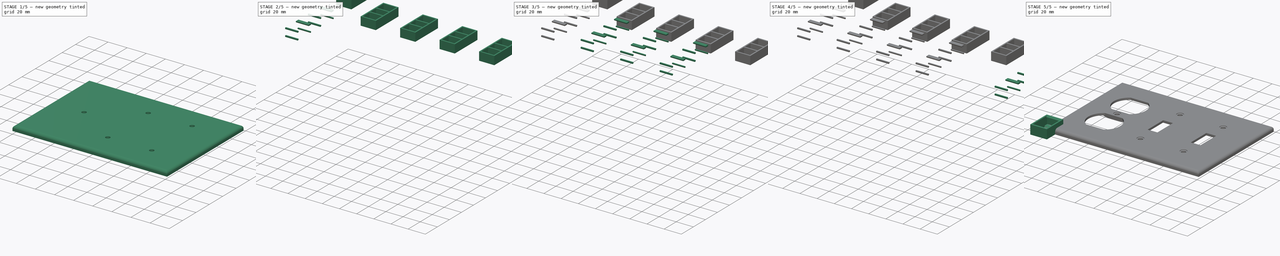
[diagram: build sequence overview — one tinted view per stage of 5, left to right]
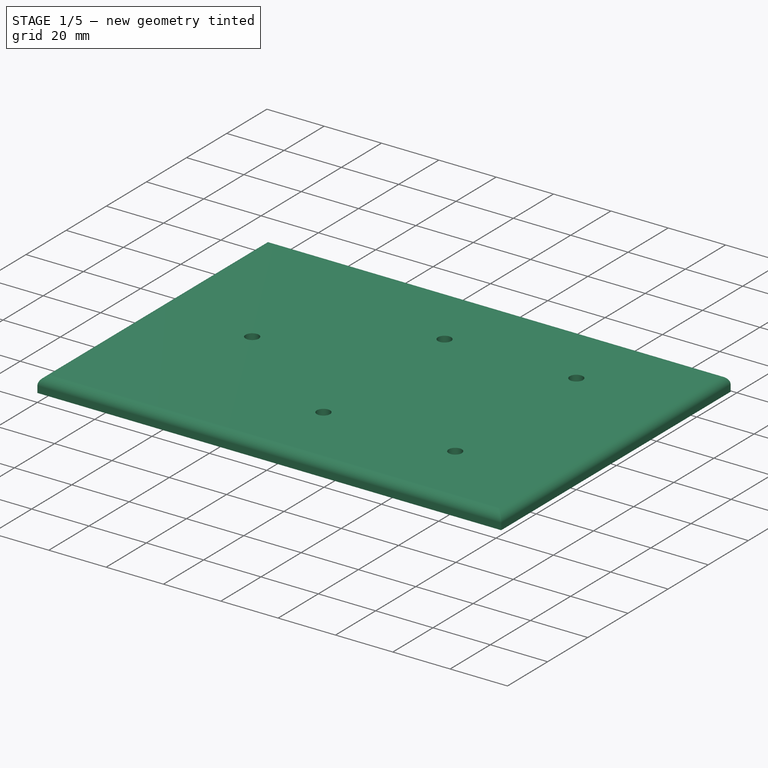
[diagram: stage 1 of 5 — iso view after this stage's code; geometry added in this stage tinted green]
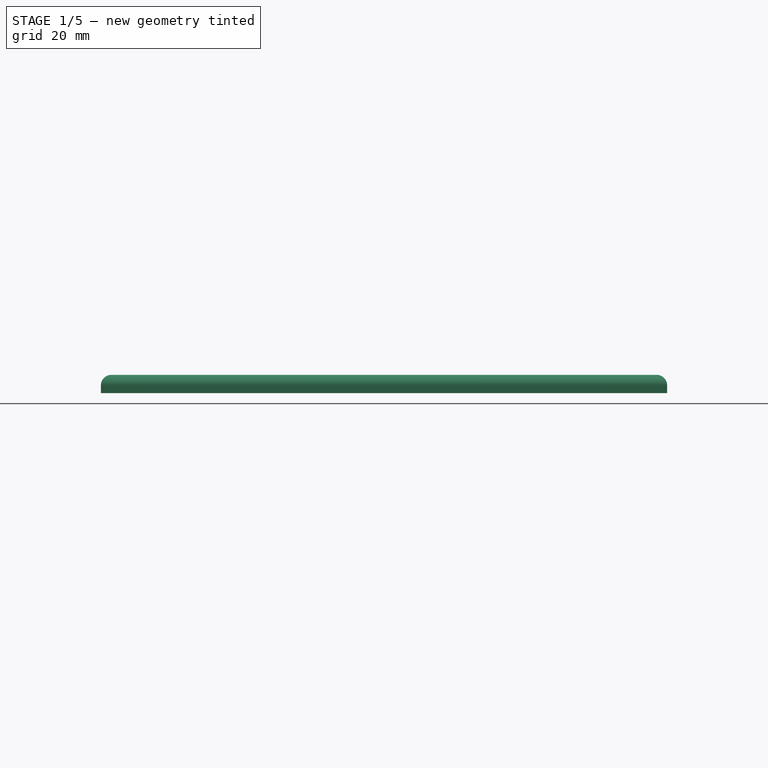
[diagram: stage 1 of 5 — front view after this stage's code; geometry added in this stage tinted green]
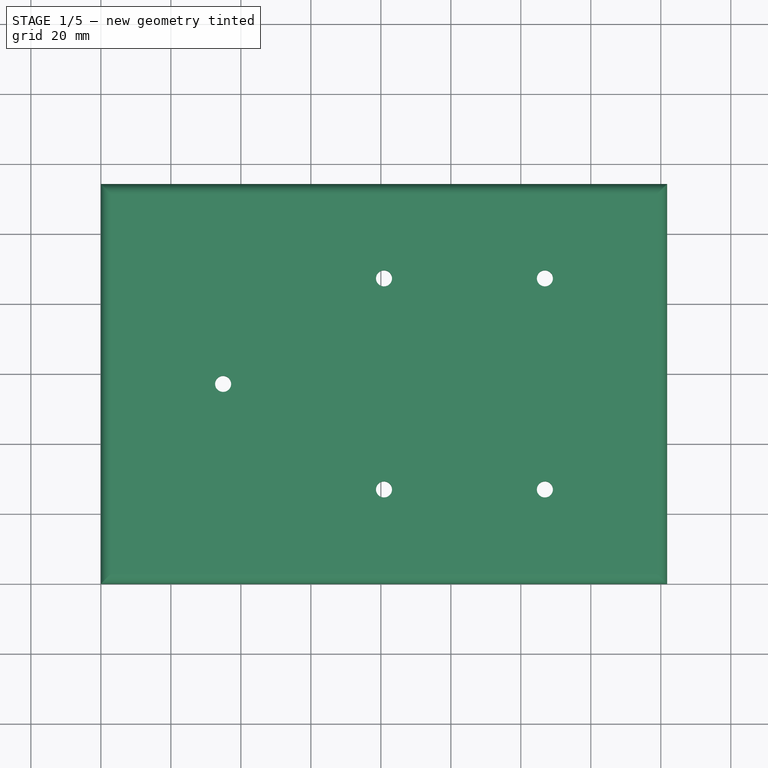
[diagram: stage 1 of 5 — top view after this stage's code; geometry added in this stage tinted green]
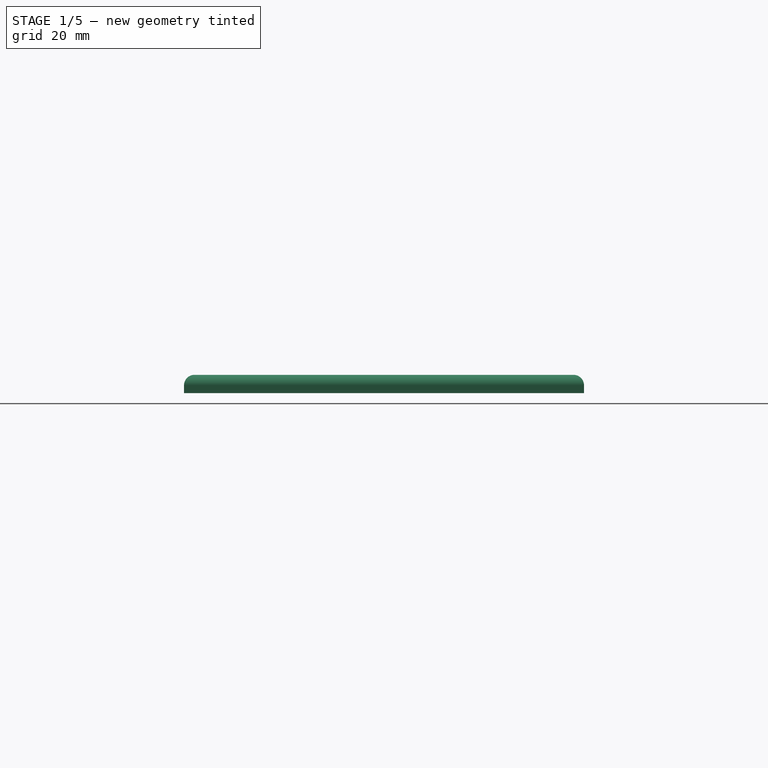
[diagram: stage 1 of 5 — right view after this stage's code; geometry added in this stage tinted green]
FCSTD DOCUMENT  (FreeCAD 2023.131R26244 +5365 (Git))
Label: Outlet Cover
License: All rights reserved
LicenseURL: http://en.wikipedia.org/wiki/All_rights_reserved
objects: Sketcher::SketchObject×19, PartDesign::Pad×14, PartDesign::Pocket×5, PartDesign::Body×2, Spreadsheet::Sheet×1, PartDesign::Fillet×1, PartDesign::Hole×1, PartDesign::Chamfer×1
note: 106 computed .brp shape members not serialized (recipe doc carries the construction recipe); baked Part::Feature solids carry a one-line shape summary decoded from their .brp

FEATURE [Spreadsheet::Sheet] Spreadsheet  label="Parameters"
  PythonMode = false
  ShowCells = 0
  TreeRank = 1
  cells = A1=Cover Style; B1(Cover_Style)=Standard; C1=How wide the border around the cover is: Standard, Preferred, or Oversized; AA1=Outlet Cover Style; AB1=Height; AC1=Border; A2=Gang Count; B2(Gang_Count)=3; C2=The number of gangs for the cover. 1 through 10; AA2=Standard; AB2(Standard_Height)=114.3; AC2(Standard_Border)=11.938; A3=Cover Thickness; B3(Cover_Thickness)=5.25; C3=How thick the cover is at its thickest point. 5.25mm or 0.2" is standard; AA3=Preferred; AB3(Preferred_Height)=123.952; AC3(Preferred_Border)=16.764; A4=Cover Fillet; B4(Cover_Fillet)=3; C4=Purely a cosmetic setting. 3mm or 1/8" is typical; AA4=Oversized; AB4(Oversized_Height)=133.35; AC4(Oversized_Border)=21.463; AA5=Gang Width; AB5(Gang_Width)=45.974; B7=Type; C7=Toggle, Blank, Rocker, Duplex, Keystone, Nema; AB7=X Offset; AC7=Hole Placement; AD7=Hole 1 (x,y); AF7=Hole 2 (x,y); A8=Gang 1; B8(Gang_1_Type)=Duplex; AA8=Gang 1; AB8(Gang_1_Offset)==Border_Width + 0 * Gang_Width; AC8(Gang_1_Hole_Placement)==Gang_1_Type == <<Toggle>> ? <<Device>> : (Gang_1_Type == <<Blank>> ? <<Box>> : (Gang_1_Type == <<Keystone>> ? <<Box>> : (Gang_1_Type == <<Rocker>> ? <<Strap>> : <<Center>>))); AD8(Gang_1_Hole_1_X)==Gang_1_Offset + Gang_Width / 2; AE8(Gang_1_Hole_1_Y)==Gang_Count >= 1 ? (Gang_1_Hole_Placement == <<Device>> ? (Cover_Height - Device_Hole_Distance) / 2 : (Gang_1_Hole_Placement == <<Strap>> ? (Cover_Height - Strap_Hole_Distance) / 2 : (Gang_1_Hole_Placement == <<Box>> ? (Cover_Height - Box_Hole_Distance) / 2 : Cover_Height / 2))) : Cover_Height * 2; AF8(Gang_1_Hole_2_X)==Gang_1_Hole_1_X; AG8(Gang_1_Hole_2_Y)==Gang_Count >= 1 ? (Gang_1_Hole_Placement == <<Device>> ? (Cover_Height + Device_Hole_Distance) / 2 : (Gang_1_Hole_Placement == <<Strap>> ? (Cover_Height + Strap_Hole_Distance) / 2 : (Gang_1_Hole_Placement == <<Box>> ? (Cover_Height + Box_Hole_Distance) / 2 : Cover_Height * 3))) : Cover_Height * 3; A9=Gang 2; B9(Gang_2_Type)=Toggle; AA9=Gang 2; AB9(Gang_2_Offset)==Border_Width + 1 * Gang_Width; AC9(Gang_2_Hole_Placement)==Gang_2_Type == <<Toggle>> ? <<Device>> : (Gang_2_Type == <<Blank>> ? <<Box>> : (Gang_2_Type == <<Keystone>> ? <<Box>> : (Gang_2_Type == <<Rocker>> ? <<Strap>> : <<Center>>))); AD9(Gang_2_Hole_1_X)==Gang_2_Offset + Gang_Width / 2; AE9(Gang_2_Hole_1_Y)==Gang_Count >= 2 ? (Gang_2_Hole_Placement == <<Device>> ? (Cover_Height - Device_Hole_Distance) / 2 : (Gang_2_Hole_Placement == <<Strap>> ? (Cover_Height - Strap_Hole_Distance) / 2 : (Gang_2_Hole_Placement == <<Box>> ? (Cover_Height - Box_Hole_Distance) / 2 : Cover_Height / 2))) : Cover_Height * 2; AF9(Gang_2_Hole_2_X)==Gang_2_Hole_1_X; AG9(Gang_2_Hole_2_Y)==Gang_Count >= 2 ? (Gang_2_Hole_Placement == <<Device>> ? (Cover_Height + Device_Hole_Distance) / 2 : (Gang_2_Hole_Placement == <<Strap>> ? (Cover_Height + Strap_Hole_Distance) / 2 : (Gang_2_Hole_Placement == <<Box>> ? (Cover_Height + Box_Hole_Distance) / 2 : Cover_Height * 3))) : Cover_Height * 3; A10=Gang 3; B10(Gang_3_Type)=Toggle; AA10=Gang 3; AB10(Gang_3_Offset)==Border_Width + 2 * Gang_Width; AC10(Gang_3_Hole_Placement)==Gang_3_Type == <<Toggle>> ? <<Device>> : (Gang_3_Type == <<Blank>> ? <<Box>> : (Gang_3_Type == <<Keystone>> ? <<Box>> : (Gang_3_Type == <<Rocker>> ? <<Strap>> : <<Center>>))); AD10(Gang_3_Hole_1_X)==Gang_3_Offset + Gang_Width / 2; AE10(Gang_3_Hole_1_Y)==Gang_Count >= 3 ? (Gang_3_Hole_Placement == <<Device>> ? (Cover_Height - Device_Hole_Distance) / 2 : (Gang_3_Hole_Placement == <<Strap>> ? (Cover_Height - Strap_Hole_Distance) / 2 : (Gang_3_Hole_Placement == <<Box>> ? (Cover_Height - Box_Hole_Distance) / 2 : Cover_Height / 2))) : Cover_Height * 2; AF10(Gang_3_Hole_2_X)==Gang_3_Hole_1_X; AG10(Gang_3_Hole_2_Y)==Gang_Count >= 3 ? (Gang_3_Hole_Placement == <<Device>> ? (Cover_Height + Device_Hole_Distance) / 2 : (Gang_3_Hole_Placement == <<Strap>> ? (Cover_Height + Strap_Hole_Distance) / 2 : (Gang_3_Hole_Placement == <<Box>> ? (Cover_Height + Box_Hole_Distance) / 2 : Cover_Height * 3))) : Cover_Height * 3; A11=Gang 4; B11(Gang_4_Type)=Blank; AA11=Gang 4; AB11(Gang_4_Offset)==Border_Width + 3 * Gang_Width; AC11(Gang_4_Hole_Placement)==Gang_4_Type == <<Toggle>> ? <<Device>> : (Gang_4_Type == <<Blank>> ? <<Box>> : (Gang_4_Type == <<Keystone>> ? <<Box>> : (Gang_4_Type == <<Rocker>> ? <<Strap>> : <<Center>>))); AD11(Gang_4_Hole_1_X)==Gang_4_Offset + Gang_Width / 2; AE11(Gang_4_Hole_1_Y)==Gang_Count >= 4 ? (Gang_4_Hole_Placement == <<Device>> ? (Cover_Height - Device_Hole_Distance) / 2 : (Gang_4_Hole_Placement == <<Strap>> ? (Cover_Height - Strap_Hole_Distance) / 2 : (Gang_4_Hole_Placement == <<Box>> ? (Cover_Height - Box_Hole_Distance) / 2 : Cover_Height / 2))) : Cover_Height * 2; AF11(Gang_4_Hole_2_X)==Gang_4_Hole_1_X; AG11(Gang_4_Hole_2_Y)==Gang_Count >= 4 ? (Gang_4_Hole_Placement == <<Device>> ? (Cover_Height + Device_Hole_Distance) / 2 : (Gang_4_Hole_Placement == <<Strap>> ? (Cover_Height + Strap_Hole_Distance) / 2 : (Gang_4_Hole_Placement == <<Box>> ? (Cover_Height + Box_Hole_Distance) / 2 : Cover_Height * 3))) : Cover_Height * 3; A12=Gang 5; B12(Gang_5_Type)=Blank; AA12=Gang 5; AB12(Gang_5_Offset)==Border_Width + 4 * Gang_Width; AC12(Gang_5_Hole_Placement)==Gang_5_Type == <<Toggle>> ? <<Device>> : (Gang_5_Type == <<Blank>> ? <<Box>> : (Gang_5_Type == <<Keystone>> ? <<Box>> : (Gang_5_Type == <<Rocker>> ? <<Strap>> : <<Center>>))); AD12(Gang_5_Hole_1_X)==Gang_5_Offset + Gang_Width / 2; AE12(Gang_5_Hole_1_Y)==Gang_Count >= 5 ? (Gang_5_Hole_Placement == <<Device>> ? (Cover_Height - Device_Hole_Distance) / 2 : (Gang_5_Hole_Placement == <<Strap>> ? (Cover_Height - Strap_Hole_Distance) / 2 : (Gang_5_Hole_Placement == <<Box>> ? (Cover_Height - Box_Hole_Distance) / 2 : Cover_Height / 2))) : Cover_Height * 2; AF12(Gang_5_Hole_2_X)==Gang_5_Hole_1_X; AG12(Gang_5_Hole_2_Y)==Gang_Count >= 5 ? (Gang_5_Hole_Placement == <<Device>> ? (Cover_Height + Device_Hole_Distance) / 2 : (Gang_5_Hole_Placement == <<Strap>> ? (Cover_Height + Strap_Hole_Distance) / 2 : (Gang_5_Hole_Placement == <<Box>> ? (Cover_Height + Box_Hole_Distance) / 2 : Cover_Height * 3))) : Cover_Height * 3; A13=Gang 6; B13(Gang_6_Type)=Blank; AA13=Gang 6; AB13(Gang_6_Offset)==Border_Width + 5 * Gang_Width; AC13(Gang_6_Hole_Placement)==Gang_6_Type == <<Toggle>> ? <<Device>> : (Gang_6_Type == <<Blank>> ? <<Box>> : (Gang_6_Type == <<Keystone>> ? <<Box>> : (Gang_6_Type == <<Rocker>> ? <<Strap>> : <<Center>>))); AD13(Gang_6_Hole_1_X)==Gang_6_Offset + Gang_Width / 2; AE13(Gang_6_Hole_1_Y)==Gang_Count >= 6 ? (Gang_6_Hole_Placement == <<Device>> ? (Cover_Height - Device_Hole_Distance) / 2 : (Gang_6_Hole_Placement == <<Strap>> ? (Cover_Height - Strap_Hole_Distance) / 2 : (Gang_6_Hole_Placement == <<Box>> ? (Cover_Height - Box_Hole_Distance) / 2 : Cover_Height / 2))) : Cover_Height * 2; AF13(Gang_6_Hole_2_X)==Gang_6_Hole_1_X; AG13(Gang_6_Hole_2_Y)==Gang_Count >= 6 ? (Gang_6_Hole_Placement == <<Device>> ? (Cover_Height + Device_Hole_Distance) / 2 : (Gang_6_Hole_Placement == <<Strap>> ? (Cover_Height + Strap_Hole_Distance) / 2 : (Gang_6_Hole_Placement == <<Box>> ? (Cover_Height + Box_Hole_Distance) / 2 : Cover_Height * 3))) : Cover_Height * 3; A14=Gang 7; B14(Gang_7_Type)=Blank; AA14=Gang 7; AB14(Gang_7_Offset)==Border_Width + 6 * Gang_Width; AC14(Gang_7_Hole_Placement)==Gang_7_Type == <<Toggle>> ? <<Device>> : (Gang_7_Type == <<Blank>> ? <<Box>> : (Gang_7_Type == <<Keystone>> ? <<Box>> : (Gang_7_Type == <<Rocker>> ? <<Strap>> : <<Center>>))); AD14(Gang_7_Hole_1_X)==Gang_7_Offset + Gang_Width / 2; AE14(Gang_7_Hole_1_Y)==Gang_Count >= 7 ? (Gang_7_Hole_Placement == <<Device>> ? (Cover_Height - Device_Hole_Distance) / 2 : (Gang_7_Hole_Placement == <<Strap>> ? (Cover_Height - Strap_Hole_Distance) / 2 : (Gang_7_Hole_Placement == <<Box>> ? (Cover_Height - Box_Hole_Distance) / 2 : Cover_Height / 2))) : Cover_Height * 2; AF14(Gang_7_Hole_2_X)==Gang_7_Hole_1_X; AG14(Gang_7_Hole_2_Y)==Gang_Count >= 7 ? (Gang_7_Hole_Placement == <<Device>> ? (Cover_Height + Device_Hole_Distance) / 2 : (Gang_7_Hole_Placement == <<Strap>> ? (Cover_Height + Strap_Hole_Distance) / 2 : (Gang_7_Hole_Placement == <<Box>> ? (Cover_Height + Box_Hole_Distance) / 2 : Cover_Height * 3))) : Cover_Height * 3; A15=Gang 8; B15(Gang_8_Type)=Blank; AA15=Gang 8; AB15(Gang_8_Offset)==Border_Width + 7 * Gang_Width; AC15(Gang_8_Hole_Placement)==Gang_8_Type == <<Toggle>> ? <<Device>> : (Gang_8_Type == <<Blank>> ? <<Box>> : (Gang_8_Type == <<Keystone>> ? <<Box>> : (Gang_8_Type == <<Rocker>> ? <<Strap>> : <<Center>>))); AD15(Gang_8_Hole_1_X)==Gang_8_Offset + Gang_Width / 2; AE15(Gang_8_Hole_1_Y)==Gang_Count >= 8 ? (Gang_8_Hole_Placement == <<Device>> ? (Cover_Height - Device_Hole_Distance) / 2 : (Gang_8_Hole_Placement == <<Strap>> ? (Cover_Height - Strap_Hole_Distance) / 2 : (Gang_8_Hole_Placement == <<Box>> ? (Cover_Height - Box_Hole_Distance) / 2 : Cover_Height / 2))) : Cover_Height * 2; AF15(Gang_8_Hole_2_X)==Gang_8_Hole_1_X; AG15(Gang_8_Hole_2_Y)==Gang_Count >= 8 ? (Gang_8_Hole_Placement == <<Device>> ? (Cover_Height + Device_Hole_Distance) / 2 : (Gang_8_Hole_Placement == <<Strap>> ? (Cover_Height + Strap_Hole_Distance) / 2 : (Gang_8_Hole_Placement == <<Box>> ? (Cover_Height + Box_Hole_Distance) / 2 : Cover_Height * 3))) : Cover_Height * 3; A16=Gang 9; B16(Gang_9_Type)=Blank; AA16=Gang 9; AB16(Gang_9_Offset)==Border_Width + 8 * Gang_Width; AC16(Gang_9_Hole_Placement)==Gang_9_Type == <<Toggle>> ? <<Device>> : (Gang_9_Type == <<Blank>> ? <<Box>> : (Gang_9_Type == <<Keystone>> ? <<Box>> : (Gang_9_Type == <<Rocker>> ? <<Strap>> : <<Center>>))); AD16(Gang_9_Hole_1_X)==Gang_9_Offset + Gang_Width / 2; AE16(Gang_9_Hole_1_Y)==Gang_Count >= 9 ? (Gang_9_Hole_Placement == <<Device>> ? (Cover_Height - Device_Hole_Distance) / 2 : (Gang_9_Hole_Placement == <<Strap>> ? (Cover_Height - Strap_Hole_Distance) / 2 : (Gang_9_Hole_Placement == <<Box>> ? (Cover_Height - Box_Hole_Distance) / 2 : Cover_Height / 2))) : Cover_Height * 2; AF16(Gang_9_Hole_2_X)==Gang_9_Hole_1_X; AG16(Gang_9_Hole_2_Y)==Gang_Count >= 9 ? (Gang_9_Hole_Placement == <<Device>> ? (Cover_Height + Device_Hole_Distance) / 2 : (Gang_9_Hole_Placement == <<Strap>> ? (Cover_Height + Strap_Hole_Distance) / 2 : (Gang_9_Hole_Placement == <<Box>> ? (Cover_Height + Box_Hole_Distance) / 2 : Cover_Height * 3))) : Cover_Height * 3; A17=Gang 10; B17(Gang_10_Type)=Blank; AA17=Gang 10; AB17(Gang_10_Offset)==Border_Width + 9 * Gang_Width; AC17(Gang_10_Hole_Placement)==Gang_10_Type == <<Toggle>> ? <<Device>> : (Gang_10_Type == <<Blank>> ? <<Box>> : (Gang_10_Type == <<Keystone>> ? <<Box>> : (Gang_10_Type == <<Rocker>> ? <<Strap>> : <<Center>>))); AD17(Gang_10_Hole_1_X)==Gang_10_Offset + Gang_Width / 2; AE17(Gang_10_Hole_1_Y)==Gang_Count >= 10 ? (Gang_10_Hole_Placement == <<Device>> ? (Cover_Height - Device_Hole_Distance) / 2 : (Gang_10_Hole_Placement == <<Strap>> ? (Cover_Height - Strap_Hole_Distance) / 2 : (Gang_10_Hole_Placement == <<Box>> ? (Cover_Height - Box_Hole_Distance) / 2 : Cover_Height / 2))) : Cover_Height * 2; AF17(Gang_10_Hole_2_X)==Gang_10_Hole_1_X; AG17(Gang_10_Hole_2_Y)==Gang_Count >= 10 ? (Gang_10_Hole_Placement == <<Device>> ? (Cover_Height + Device_Hole_Distance) / 2 : (Gang_10_Hole_Placement == <<Strap>> ? (Cover_Height + Strap_Hole_Distance) / 2 : (Gang_10_Hole_Placement == <<Box>> ? (Cover_Height + Box_Hole_Distance) / 2 : Cover_Height * 3))) : Cover_Height * 3; AA19=Border Width; AB19(Border_Width)==Cover_Style == <<Standard>> ? Standard_Border : (Cover_Style == <<Preferred>> ? Preferred_Border : (Cover_Style == <<Oversized>> ? Oversized_Border : 0)); AA20=Cover Width; AB20(Cover_Width)==Gang_Width * Gang_Count + 2 * Border_Width; AA21=Cover Height; AB21(Cover_Height)==Cover_Style == <<Standard>> ? Standard_Height : (Cover_Style == <<Preferred>> ? Preferred_Height : (Cover_Style == <<Oversized>> ? Oversized_Height : 0)); AA23=Plastic Thickness; AB23(Thickness)=2.2; AA24=Screw Support Diameter; AB24(Screw_Support_Diamter)=9.6; AA25=Screw Hole Diameter; AB25(Scew_Hole_Diameter)=4.6; AA26=Screw Hole Chamfer; AB26(Screw_Hole_Chamfer)=1.5; AA27=Duplex Hole Diameter; AB27(Duplex_Hole_Diameter)=34.1313; AA28=Duplex Hole Height; AB28(Duplex_Hole_Height)=28.575; AA29=Duplex Hole Distance; AB29(Duplex_Hole_Distance)=38.8937; AA30=Duplex Y Offset; AB30(Duplex_Y_Offset)==(Cover_Height - Duplex_Hole_Height - Duplex_Hole_Distance) / 2; AA31=Toggle Hole Width; AB31(Toggle_Hole_Width)=10.3187; AA32=Toggle Hole Height; AB32(Toggle_Hole_Height)=23.8125; AA33=Rocker Hole Width; AB33(Rocker_Hole_Width)=33.3375; AA34=Rocker Hole Height; AB34(Rocker_Hole_Height)=66.675; AA35=Coaxial Hole Diameter; AB35(Coax_Hole_Diameter)=9.525; AA37=Center Hole Distance; AB37(Center_Hole_Distance)=0; AA38=Device Mount Hole Distance; AB38(Device_Hole_Distance)=60.325; AA39=Strap Mount Hole Distance; AB39(Strap_Hole_Distance)=96.8248; AA40=Box Mount Hole Distance; AB40(Box_Hole_Distance)=83.3374; AA42=Keystone Coupler Width; AB42(Keystone_Coupler_Width)=17.7; AA43=Keystone Coupler Height; AB43(Keystone_Coupler_Height)=25; AA44=Keystone Coupler Depth; AB44(Keystone_Coupler_Depth)=9.75; AA45=Keystone Coupler Side Thickness; AB45(Keystone_Coupler_Thickness)=1.5; AA46=Keystone Coupler Small Overhang; AB46(Keystone_Small_Overhang)=1.35; AA47=Keystone Coupler Large Overhang; AB47(Keystone_Large_Overhang)=4.25; AA48=Keystone Coupler Distance; AB48(Keystone_Coupler_Distance)=12.7; AA49=Keystone X Position; AB49(Keystone_X_Position)==(Gang_Width - Keystone_Coupler_Width) / 2; AA50=Keystone Y Position; AB50(Keystone_Y_Position)==(Cover_Height - (Keystone_Coupler_Height * 2 + Keystone_Coupler_Distance)) / 2; AA52=Nema L14-30 Hole Diameter; AB52(Nema_Hole_Diameter)=39.116; AA53=Nema L14-30 Screw Hole Distance; AB53(Nema_Hole_Distance)=83.312
FEATURE [Sketcher::SketchObject] Sketch  label="Cover Sketch"
  ArcFitTolerance = 1e-06
  AttachmentSupport = -> [XY_Plane]
  ExternalBSplineMaxDegree = 5
  ExternalBSplineTolerance = 0.0001
  FullyConstrained = true
  InternalTolerance = 1e-06
  InvalidShape = false
  MakeInternals = false
  MapMode = 5
  Support = -> [XY_Plane]
  TreeRank = 12
  ValidateShape = true
  expr: Constraints[10] = <<Parameters>>.Cover_Height
  expr: Constraints[9] = <<Parameters>>.Cover_Width
  sketch-geometry (4):
    g0: LineSegment StartX=0 StartY=0 StartZ=0 EndX=161.798 EndY=0 EndZ=0
    g1: LineSegment StartX=161.798 StartY=0 StartZ=0 EndX=161.798 EndY=114.3 EndZ=0
    g2: LineSegment StartX=161.798 StartY=114.3 StartZ=0 EndX=0 EndY=114.3 EndZ=0
    g3: LineSegment StartX=0 StartY=114.3 StartZ=0 EndX=0 EndY=0 EndZ=0
  constraints (11):
    c: Coincident(g0,g1)
    c: Coincident(g1,g2)
    c: Coincident(g2,g3)
    c: Coincident(g3,g0)
    c: Horizontal(g0)
    c: Horizontal(g2)
    c: Vertical(g1)
    c: Vertical(g3)
    c: Coincident(g0,g-1)
    c: Distance(g2,g1) = 161.798
    c: Distance(g1,g0) = 114.3
FEATURE [PartDesign::Pad] Pad  label="Cover"
  AddSubType = 0
  AlongSketchNormal = false
  AutoTaperInnerAngle = true
  CheckUpToFaceLimits = true
  ClaimChildren = false
  Direction = (0,0,1)
  Fit = 0
  FitJoin = 0
  InnerFit = 0
  InnerFitJoin = 0
  InvalidShape = false
  Length = 5.25
  Length2 = 100
  Linearize = true
  NewSolid = false
  Profile = -> Sketch
  Suppress = false
  TaperInnerAngle = 0
  TaperInnerAngleRev = 0
  TreeRank = 13
  Type = 0
  ValidateShape = true
  _ProfileBasedVersion = 1
  expr: Length = <<Parameters>>.Cover_Thickness
FEATURE [Sketcher::SketchObject] Sketch001  label="Screw Holes Sketch"
  ArcFitTolerance = 1e-06
  ExternalBSplineMaxDegree = 5
  ExternalBSplineTolerance = 0.0001
  FullyConstrained = true
  InternalTolerance = 1e-06
  InvalidShape = false
  MakeInternals = false
  MapMode = 5
  Placement = pos=(0,0,5.5) rot=(0,0,1;0rad)
  TreeRank = 15
  ValidateShape = true
  expr: Constraints[10] = <<Parameters>>.Gang_2_Hole_2_Y
  expr: Constraints[11] = <<Parameters>>.Scew_Hole_Diameter
  expr: Constraints[13] = <<Parameters>>.Scew_Hole_Diameter
  expr: Constraints[14] = <<Parameters>>.Gang_3_Hole_1_X
  expr: Constraints[15] = <<Parameters>>.Gang_3_Hole_2_X
  expr: Constraints[16] = <<Parameters>>.Gang_3_Hole_1_Y
  expr: Constraints[17] = <<Parameters>>.Gang_3_Hole_2_Y
  expr: Constraints[19] = <<Parameters>>.Scew_Hole_Diameter
  expr: Constraints[1] = <<Parameters>>.Scew_Hole_Diameter
  expr: Constraints[20] = <<Parameters>>.Gang_4_Hole_1_X
  expr: Constraints[21] = <<Parameters>>.Gang_4_Hole_2_X
  expr: Constraints[22] = <<Parameters>>.Gang_4_Hole_1_Y
  expr: Constraints[23] = <<Parameters>>.Gang_4_Hole_2_Y
  expr: Constraints[25] = <<Parameters>>.Scew_Hole_Diameter
  expr: Constraints[26] = <<Parameters>>.Gang_5_Hole_1_X
  expr: Constraints[27] = <<Parameters>>.Gang_5_Hole_2_X
  expr: Constraints[28] = <<Parameters>>.Gang_5_Hole_1_Y
  expr: Constraints[29] = <<Parameters>>.Gang_5_Hole_2_Y
  expr: Constraints[2] = <<Parameters>>.Gang_1_Hole_1_X
  expr: Constraints[31] = <<Parameters>>.Scew_Hole_Diameter
  expr: Constraints[32] = <<Parameters>>.Gang_6_Hole_1_X
  expr: Constraints[33] = <<Parameters>>.Gang_6_Hole_2_X
  expr: Constraints[34] = <<Parameters>>.Gang_6_Hole_1_Y
  expr: Constraints[35] = <<Parameters>>.Gang_6_Hole_2_Y
  expr: Constraints[37] = <<Parameters>>.Scew_Hole_Diameter
  expr: Constraints[38] = <<Parameters>>.Gang_7_Hole_1_X
  expr: Constraints[39] = <<Parameters>>.Gang_7_Hole_2_X
  expr: Constraints[3] = <<Parameters>>.Gang_1_Hole_2_X
  expr: Constraints[40] = <<Parameters>>.Gang_7_Hole_1_Y
  expr: Constraints[41] = <<Parameters>>.Gang_7_Hole_2_Y
  expr: Constraints[43] = <<Parameters>>.Scew_Hole_Diameter
  expr: Constraints[44] = <<Parameters>>.Gang_8_Hole_1_X
  expr: Constraints[45] = <<Parameters>>.Gang_8_Hole_2_X
  expr: Constraints[46] = <<Parameters>>.Gang_8_Hole_1_Y
  expr: Constraints[47] = <<Parameters>>.Gang_8_Hole_2_Y
  expr: Constraints[49] = <<Parameters>>.Scew_Hole_Diameter
  expr: Constraints[4] = <<Parameters>>.Gang_1_Hole_1_Y
  expr: Constraints[50] = <<Parameters>>.Gang_9_Hole_1_X
  expr: Constraints[51] = <<Parameters>>.Gang_9_Hole_2_X
  expr: Constraints[52] = <<Parameters>>.Gang_9_Hole_1_Y
  expr: Constraints[53] = <<Parameters>>.Gang_9_Hole_2_Y
  expr: Constraints[55] = <<Parameters>>.Scew_Hole_Diameter
  expr: Constraints[56] = <<Parameters>>.Gang_10_Hole_1_X
  expr: Constraints[57] = <<Parameters>>.Gang_10_Hole_2_X
  expr: Constraints[58] = <<Parameters>>.Gang_10_Hole_1_Y
  expr: Constraints[59] = <<Parameters>>.Gang_10_Hole_2_Y
  expr: Constraints[5] = Spreadsheet.Gang_1_Hole_2_Y
  expr: Constraints[7] = <<Parameters>>.Gang_2_Hole_1_X
  expr: Constraints[8] = <<Parameters>>.Gang_2_Hole_2_X
  expr: Constraints[9] = <<Parameters>>.Gang_2_Hole_1_Y
  sketch-geometry (20):
    g0: Circle CenterX=34.925 CenterY=342.9 CenterZ=0 NormalX=0 NormalY=0 NormalZ=1 AngleXU=0 Radius=2.3
    g1: Circle CenterX=34.925 CenterY=57.15 CenterZ=0 NormalX=0 NormalY=0 NormalZ=1 AngleXU=0 Radius=2.3
    g2: Circle CenterX=80.899 CenterY=26.9875 CenterZ=0 NormalX=0 NormalY=0 NormalZ=1 AngleXU=0 Radius=2.3
    g3: Circle CenterX=80.899 CenterY=87.3125 CenterZ=0 NormalX=0 NormalY=0 NormalZ=1 AngleXU=0 Radius=2.3
    g4: Circle CenterX=126.873 CenterY=26.9875 CenterZ=0 NormalX=0 NormalY=0 NormalZ=1 AngleXU=0 Radius=2.3
    g5: Circle CenterX=126.873 CenterY=87.3125 CenterZ=0 NormalX=0 NormalY=0 NormalZ=1 AngleXU=0 Radius=2.3
    g6: Circle CenterX=172.847 CenterY=342.9 CenterZ=0 NormalX=0 NormalY=0 NormalZ=1 AngleXU=0 Radius=2.3
    g7: Circle CenterX=172.847 CenterY=228.6 CenterZ=0 NormalX=0 NormalY=0 NormalZ=1 AngleXU=0 Radius=2.3
    g8: Circle CenterX=218.821 CenterY=228.6 CenterZ=0 NormalX=0 NormalY=0 NormalZ=1 AngleXU=0 Radius=2.3
    g9: Circle CenterX=218.821 CenterY=342.9 CenterZ=0 NormalX=0 NormalY=0 NormalZ=1 AngleXU=0 Radius=2.3
    g10: Circle CenterX=264.795 CenterY=228.6 CenterZ=0 NormalX=0 NormalY=0 NormalZ=1 AngleXU=0 Radius=2.3
    g11: Circle CenterX=264.795 CenterY=342.9 CenterZ=0 NormalX=0 NormalY=0 NormalZ=1 AngleXU=0 Radius=2.3
    g12: Circle CenterX=310.769 CenterY=228.6 CenterZ=0 NormalX=0 NormalY=0 NormalZ=1 AngleXU=0 Radius=2.3
    g13: Circle CenterX=310.769 CenterY=342.9 CenterZ=0 NormalX=0 NormalY=0 NormalZ=1 AngleXU=0 Radius=2.3
    g14: Circle CenterX=356.743 CenterY=228.6 CenterZ=0 NormalX=0 NormalY=0 NormalZ=1 AngleXU=0 Radius=2.3
    g15: Circle CenterX=356.743 CenterY=342.9 CenterZ=0 NormalX=0 NormalY=0 NormalZ=1 AngleXU=0 Radius=2.3
    g16: Circle CenterX=402.717 CenterY=228.6 CenterZ=0 NormalX=0 NormalY=0 NormalZ=1 AngleXU=0 Radius=2.3
    g17: Circle CenterX=402.717 CenterY=342.9 CenterZ=0 NormalX=0 NormalY=0 NormalZ=1 AngleXU=0 Radius=2.3
    g18: Circle CenterX=448.691 CenterY=228.6 CenterZ=0 NormalX=0 NormalY=0 NormalZ=1 AngleXU=0 Radius=2.3
    g19: Circle CenterX=448.691 CenterY=342.9 CenterZ=0 NormalX=0 NormalY=0 NormalZ=1 AngleXU=0 Radius=2.3
  constraints (60):
    c: Equal(g0,g1)
    c: Diameter(g0) = 4.6
    c: DistanceX(g-1,g1) = 34.925
    c: DistanceX(g-1,g0) = 34.925
    c: DistanceY(g-1,g1) = 57.15
    c: DistanceY(g-1,g0) = 342.9
    c: Equal(g2,g3)
    c: DistanceX(g-1,g2) = 80.899
    c: DistanceX(g-1,g3) = 80.899
    c: DistanceY(g-1,g2) = 26.9875
    c: DistanceY(g-1,g3) = 87.3125
    c: Diameter(g2) = 4.6
    c: Equal(g4,g5)
    c: Diameter(g4) = 4.6
    c: DistanceX(g-1,g4) = 126.873
    c: DistanceX(g-1,g5) = 126.873
    c: DistanceY(g-1,g4) = 26.9875
    c: DistanceY(g-1,g5) = 87.3125
    c: Equal(g6,g7)
    c: Diameter(g6) = 4.6
    c: DistanceX(g-1,g7) = 172.847
    c: DistanceX(g-1,g6) = 172.847
    c: DistanceY(g-1,g7) = 228.6
    c: DistanceY(g-1,g6) = 342.9
    c: Equal(g9,g8)
    c: Diameter(g9) = 4.6
    c: DistanceX(g-1,g8) = 218.821
    c: DistanceX(g-1,g9) = 218.821
    c: DistanceY(g-1,g8) = 228.6
    c: DistanceY(g-1,g9) = 342.9
    c: Equal(g11,g10)
    c: Diameter(g11) = 4.6
    c: DistanceX(g-1,g10) = 264.795
    c: DistanceX(g-1,g11) = 264.795
    c: DistanceY(g-1,g10) = 228.6
    c: DistanceY(g-1,g11) = 342.9
    c: Equal(g13,g12)
    c: Diameter(g13) = 4.6
    c: DistanceX(g-1,g12) = 310.769
    c: DistanceX(g-1,g13) = 310.769
    c: DistanceY(g-1,g12) = 228.6
    c: DistanceY(g-1,g13) = 342.9
    c: Equal(g15,g14)
    c: Diameter(g15) = 4.6
    c: DistanceX(g-1,g14) = 356.743
    c: DistanceX(g-1,g15) = 356.743
    c: DistanceY(g-1,g14) = 228.6
    c: DistanceY(g-1,g15) = 342.9
    c: Equal(g17,g16)
    c: Diameter(g17) = 4.6
    c: DistanceX(g-1,g16) = 402.717
    c: DistanceX(g-1,g17) = 402.717
    c: DistanceY(g-1,g16) = 228.6
    c: DistanceY(g-1,g17) = 342.9
    c: Equal(g19,g18)
    c: Diameter(g19) = 4.6
    c: DistanceX(g-1,g18) = 448.691
    c: DistanceX(g-1,g19) = 448.691
    c: DistanceY(g-1,g18) = 228.6
    c: DistanceY(g-1,g19) = 342.9
FEATURE [Sketcher::SketchObject] Sketch003  label="Bottom Hollow Sketch"
  ArcFitTolerance = 1e-06
  AttachmentSupport = -> [XY_Plane]
  ExternalBSplineMaxDegree = 5
  ExternalBSplineTolerance = 0.0001
  FullyConstrained = true
  InternalTolerance = 1e-06
  InvalidShape = false
  MakeInternals = false
  MapMode = 5
  Support = -> [XY_Plane]
  TreeRank = 19
  ValidateShape = true
  expr: Constraints[10] = <<Parameters>>.Cover_Height - 2 * <<Parameters>>.Thickness
  expr: Constraints[11] = <<Parameters>>.Cover_Width - 2 * <<Parameters>>.Thickness
  expr: Constraints[139] = <<Parameters>>.Gang_3_Hole_1_X
  expr: Constraints[140] = <<Parameters>>.Gang_3_Hole_2_X
  expr: Constraints[141] = <<Parameters>>.Gang_4_Hole_1_X
  expr: Constraints[142] = <<Parameters>>.Gang_4_Hole_2_X
  expr: Constraints[143] = <<Parameters>>.Gang_5_Hole_1_X
  expr: Constraints[144] = <<Parameters>>.Gang_5_Hole_2_X
  expr: Constraints[145] = <<Parameters>>.Gang_6_Hole_1_X
  expr: Constraints[146] = <<Parameters>>.Gang_6_Hole_2_X
  expr: Constraints[147] = <<Parameters>>.Gang_7_Hole_1_X
  expr: Constraints[148] = <<Parameters>>.Gang_7_Hole_2_X
  expr: Constraints[149] = <<Parameters>>.Gang_8_Hole_1_X
  expr: Constraints[150] = <<Parameters>>.Gang_8_Hole_2_X
  expr: Constraints[151] = <<Parameters>>.Gang_9_Hole_1_X
  expr: Constraints[152] = <<Parameters>>.Gang_9_Hole_2_X
  expr: Constraints[153] = <<Parameters>>.Gang_10_Hole_1_X
  expr: Constraints[154] = <<Parameters>>.Gang_10_Hole_2_X
  expr: Constraints[155] = <<Parameters>>.Gang_2_Hole_1_Y
  expr: Constraints[156] = <<Parameters>>.Gang_3_Hole_1_Y
  expr: Constraints[157] = <<Parameters>>.Gang_4_Hole_1_Y
  expr: Constraints[158] = <<Parameters>>.Gang_5_Hole_1_Y
  expr: Constraints[159] = <<Parameters>>.Gang_6_Hole_1_Y
  expr: Constraints[160] = <<Parameters>>.Gang_7_Hole_1_Y
  expr: Constraints[161] = <<Parameters>>.Gang_8_Hole_1_Y
  expr: Constraints[162] = <<Parameters>>.Gang_9_Hole_1_Y
  expr: Constraints[163] = <<Parameters>>.Gang_10_Hole_1_Y
  expr: Constraints[164] = <<Parameters>>.Gang_2_Hole_2_Y
  expr: Constraints[165] = <<Parameters>>.Gang_3_Hole_2_Y
  expr: Constraints[166] = <<Parameters>>.Gang_4_Hole_2_Y
  expr: Constraints[167] = <<Parameters>>.Gang_5_Hole_2_Y
  expr: Constraints[168] = <<Parameters>>.Gang_6_Hole_2_Y
  expr: Constraints[169] = <<Parameters>>.Gang_7_Hole_2_Y
  expr: Constraints[16] = 2 * <<Parameters>>.Gang_Width / 3
  expr: Constraints[170] = <<Parameters>>.Gang_8_Hole_2_Y
  expr: Constraints[171] = <<Parameters>>.Gang_9_Hole_2_Y
  expr: Constraints[172] = <<Parameters>>.Gang_10_Hole_2_Y
  expr: Constraints[17] = <<Parameters>>.Screw_Support_Diamter
  expr: Constraints[19] = <<Parameters>>.Gang_1_Hole_1_X
  expr: Constraints[20] = <<Parameters>>.Gang_1_Hole_1_Y
  expr: Constraints[27] = <<Parameters>>.Gang_1_Hole_2_X
  expr: Constraints[28] = <<Parameters>>.Gang_1_Hole_2_Y
  expr: Constraints[41] = <<Parameters>>.Gang_2_Hole_1_X
  expr: Constraints[42] = <<Parameters>>.Gang_2_Hole_2_X
  expr: Constraints[8] = <<Parameters>>.Thickness
  expr: Constraints[9] = <<Parameters>>.Thickness
  sketch-geometry (104):
    g0: LineSegment StartX=2.2 StartY=2.2 StartZ=0 EndX=159.598 EndY=2.2 EndZ=0
    g1: LineSegment StartX=159.598 StartY=2.2 StartZ=0 EndX=159.598 EndY=112.1 EndZ=0
    g2: LineSegment StartX=159.598 StartY=112.1 StartZ=0 EndX=2.2 EndY=112.1 EndZ=0
    g3: LineSegment StartX=2.2 StartY=112.1 StartZ=0 EndX=2.2 EndY=2.2 EndZ=0
    g4: Ellipse CenterX=34.925 CenterY=57.15 CenterZ=0 NormalX=0 NormalY=0 NormalZ=1 MajorRadius=15.3247 MinorRadius=4.8 AngleXU=0
    g5: LineSegment [constr] StartX=50.2497 StartY=57.15 StartZ=0 EndX=19.6003 EndY=57.15 EndZ=0
    g6: LineSegment [constr] StartX=34.925 StartY=61.95 StartZ=0 EndX=34.925 EndY=52.35 EndZ=0
    g7: GeomPoint [constr] X=49.4785 Y=57.15 Z=0
    g8: GeomPoint [constr] X=20.3715 Y=57.15 Z=0
    g9: Ellipse CenterX=34.925 CenterY=342.9 CenterZ=0 NormalX=0 NormalY=0 NormalZ=1 MajorRadius=15.3247 MinorRadius=4.8 AngleXU=0
    g10: LineSegment [constr] StartX=50.2497 StartY=342.9 StartZ=0 EndX=19.6003 EndY=342.9 EndZ=0
    g11: LineSegment [constr] StartX=34.925 StartY=347.7 StartZ=0 EndX=34.925 EndY=338.1 EndZ=0
    g12: GeomPoint [constr] X=49.4785 Y=342.9 Z=0
    g13: GeomPoint [constr] X=20.3715 Y=342.9 Z=0
    g14: Ellipse CenterX=80.899 CenterY=26.9875 CenterZ=0 NormalX=0 NormalY=0 NormalZ=1 MajorRadius=15.3247 MinorRadius=4.8 AngleXU=0
    g15: LineSegment [constr] StartX=96.2237 StartY=26.9875 StartZ=0 EndX=65.5743 EndY=26.9875 EndZ=0
    g16: LineSegment [constr] StartX=80.899 StartY=31.7875 StartZ=0 EndX=80.899 EndY=22.1875 EndZ=0
    g17: GeomPoint [constr] X=95.4525 Y=26.9875 Z=0
    g18: GeomPoint [constr] X=66.3455 Y=26.9875 Z=0
    g19: Ellipse CenterX=80.899 CenterY=87.3125 CenterZ=0 NormalX=0 NormalY=0 NormalZ=1 MajorRadius=15.3247 MinorRadius=4.8 AngleXU=0
    g20: LineSegment [constr] StartX=96.2237 StartY=87.3125 StartZ=0 EndX=65.5743 EndY=87.3125 EndZ=0
    g21: LineSegment [constr] StartX=80.899 StartY=92.1125 StartZ=0 EndX=80.899 EndY=82.5125 EndZ=0
    g22: GeomPoint [constr] X=95.4525 Y=87.3125 Z=0
    g23: GeomPoint [constr] X=66.3455 Y=87.3125 Z=0
    g24: Ellipse CenterX=126.873 CenterY=26.9875 CenterZ=0 NormalX=0 NormalY=0 NormalZ=1 MajorRadius=15.3247 MinorRadius=4.8 AngleXU=0
    g25: LineSegment [constr] StartX=142.198 StartY=26.9875 StartZ=0 EndX=111.548 EndY=26.9875 EndZ=0
    g26: LineSegment [constr] StartX=126.873 StartY=31.7875 StartZ=0 EndX=126.873 EndY=22.1875 EndZ=0
    g27: GeomPoint [constr] X=141.427 Y=26.9875 Z=0
    g28: GeomPoint [constr] X=112.319 Y=26.9875 Z=0
    g29: Ellipse CenterX=126.873 CenterY=87.3125 CenterZ=0 NormalX=0 NormalY=0 NormalZ=1 MajorRadius=15.3247 MinorRadius=4.8 AngleXU=0
    g30: LineSegment [constr] StartX=142.198 StartY=87.3125 StartZ=0 EndX=111.548 EndY=87.3125 EndZ=0
    g31: LineSegment [constr] StartX=126.873 StartY=92.1125 StartZ=0 EndX=126.873 EndY=82.5125 EndZ=0
    g32: GeomPoint [constr] X=141.427 Y=87.3125 Z=0
    g33: GeomPoint [constr] X=112.319 Y=87.3125 Z=0
    g34: Ellipse CenterX=172.847 CenterY=228.6 CenterZ=0 NormalX=0 NormalY=0 NormalZ=1 MajorRadius=15.3247 MinorRadius=4.8 AngleXU=0
    g35: LineSegment [constr] StartX=188.172 StartY=228.6 StartZ=0 EndX=157.522 EndY=228.6 EndZ=0
    g36: LineSegment [constr] StartX=172.847 StartY=233.4 StartZ=0 EndX=172.847 EndY=223.8 EndZ=0
    g37: GeomPoint [constr] X=187.401 Y=228.6 Z=0
    g38: GeomPoint [constr] X=158.293 Y=228.6 Z=0
    g39: Ellipse CenterX=172.847 CenterY=342.9 CenterZ=0 NormalX=0 NormalY=0 NormalZ=1 MajorRadius=15.3247 MinorRadius=4.8 AngleXU=0
    g40: LineSegment [constr] StartX=188.172 StartY=342.9 StartZ=0 EndX=157.522 EndY=342.9 EndZ=0
    g41: LineSegment [constr] StartX=172.847 StartY=347.7 StartZ=0 EndX=172.847 EndY=338.1 EndZ=0
    g42: GeomPoint [constr] X=187.401 Y=342.9 Z=0
    g43: GeomPoint [constr] X=158.293 Y=342.9 Z=0
    g44: Ellipse CenterX=218.821 CenterY=228.6 CenterZ=0 NormalX=0 NormalY=0 NormalZ=1 MajorRadius=15.3247 MinorRadius=4.8 AngleXU=0
    g45: LineSegment [constr] StartX=234.146 StartY=228.6 StartZ=0 EndX=203.496 EndY=228.6 EndZ=0
    g46: LineSegment [constr] StartX=218.821 StartY=233.4 StartZ=0 EndX=218.821 EndY=223.8 EndZ=0
    g47: GeomPoint [constr] X=233.375 Y=228.6 Z=0
    g48: GeomPoint [constr] X=204.267 Y=228.6 Z=0
    g49: Ellipse CenterX=218.821 CenterY=342.9 CenterZ=0 NormalX=0 NormalY=0 NormalZ=1 MajorRadius=15.3247 MinorRadius=4.8 AngleXU=0
    g50: LineSegment [constr] StartX=234.146 StartY=342.9 StartZ=0 EndX=203.496 EndY=342.9 EndZ=0
    g51: LineSegment [constr] StartX=218.821 StartY=347.7 StartZ=0 EndX=218.821 EndY=338.1 EndZ=0
    g52: GeomPoint [constr] X=233.375 Y=342.9 Z=0
    g53: GeomPoint [constr] X=204.267 Y=342.9 Z=0
    g54: Ellipse CenterX=264.795 CenterY=228.6 CenterZ=0 NormalX=0 NormalY=0 NormalZ=1 MajorRadius=15.3247 MinorRadius=4.8 AngleXU=0
    g55: LineSegment [constr] StartX=280.12 StartY=228.6 StartZ=0 EndX=249.47 EndY=228.6 EndZ=0
    g56: LineSegment [constr] StartX=264.795 StartY=233.4 StartZ=0 EndX=264.795 EndY=223.8 EndZ=0
    g57: GeomPoint [constr] X=279.349 Y=228.6 Z=0
    g58: GeomPoint [constr] X=250.241 Y=228.6 Z=0
    g59: Ellipse CenterX=264.795 CenterY=342.9 CenterZ=0 NormalX=0 NormalY=0 NormalZ=1 MajorRadius=15.3247 MinorRadius=4.8 AngleXU=0
    g60: LineSegment [constr] StartX=280.12 StartY=342.9 StartZ=0 EndX=249.47 EndY=342.9 EndZ=0
    g61: LineSegment [constr] StartX=264.795 StartY=347.7 StartZ=0 EndX=264.795 EndY=338.1 EndZ=0
    g62: GeomPoint [constr] X=279.349 Y=342.9 Z=0
    g63: GeomPoint [constr] X=250.241 Y=342.9 Z=0
    g64: Ellipse CenterX=310.769 CenterY=228.6 CenterZ=0 NormalX=0 NormalY=0 NormalZ=1 MajorRadius=15.3247 MinorRadius=4.8 AngleXU=0
    g65: LineSegment [constr] StartX=326.094 StartY=228.6 StartZ=0 EndX=295.444 EndY=228.6 EndZ=0
    g66: LineSegment [constr] StartX=310.769 StartY=233.4 StartZ=0 EndX=310.769 EndY=223.8 EndZ=0
    g67: GeomPoint [constr] X=325.323 Y=228.6 Z=0
    g68: GeomPoint [constr] X=296.215 Y=228.6 Z=0
    g69: Ellipse CenterX=310.769 CenterY=342.9 CenterZ=0 NormalX=0 NormalY=0 NormalZ=1 MajorRadius=15.3247 MinorRadius=4.8 AngleXU=0
    g70: LineSegment [constr] StartX=326.094 StartY=342.9 StartZ=0 EndX=295.444 EndY=342.9 EndZ=0
    g71: LineSegment [constr] StartX=310.769 StartY=347.7 StartZ=0 EndX=310.769 EndY=338.1 EndZ=0
    g72: GeomPoint [constr] X=325.323 Y=342.9 Z=0
    g73: GeomPoint [constr] X=296.215 Y=342.9 Z=0
    g74: Ellipse CenterX=356.743 CenterY=228.6 CenterZ=0 NormalX=0 NormalY=0 NormalZ=1 MajorRadius=15.3247 MinorRadius=4.8 AngleXU=0
    g75: LineSegment [constr] StartX=372.068 StartY=228.6 StartZ=0 EndX=341.418 EndY=228.6 EndZ=0
    g76: LineSegment [constr] StartX=356.743 StartY=233.4 StartZ=0 EndX=356.743 EndY=223.8 EndZ=0
    g77: GeomPoint [constr] X=371.297 Y=228.6 Z=0
    g78: GeomPoint [constr] X=342.189 Y=228.6 Z=0
    g79: Ellipse CenterX=356.743 CenterY=342.9 CenterZ=0 NormalX=0 NormalY=0 NormalZ=1 MajorRadius=15.3247 MinorRadius=4.8 AngleXU=0
    g80: LineSegment [constr] StartX=372.068 StartY=342.9 StartZ=0 EndX=341.418 EndY=342.9 EndZ=0
    g81: LineSegment [constr] StartX=356.743 StartY=347.7 StartZ=0 EndX=356.743 EndY=338.1 EndZ=0
    g82: GeomPoint [constr] X=371.297 Y=342.9 Z=0
    g83: GeomPoint [constr] X=342.189 Y=342.9 Z=0
    g84: Ellipse CenterX=402.717 CenterY=228.6 CenterZ=0 NormalX=0 NormalY=0 NormalZ=1 MajorRadius=15.3247 MinorRadius=4.8 AngleXU=0
    g85: LineSegment [constr] StartX=418.042 StartY=228.6 StartZ=0 EndX=387.392 EndY=228.6 EndZ=0
    g86: LineSegment [constr] StartX=402.717 StartY=233.4 StartZ=0 EndX=402.717 EndY=223.8 EndZ=0
    g87: GeomPoint [constr] X=417.271 Y=228.6 Z=0
    g88: GeomPoint [constr] X=388.163 Y=228.6 Z=0
    g89: Ellipse CenterX=402.717 CenterY=342.9 CenterZ=0 NormalX=0 NormalY=0 NormalZ=1 MajorRadius=15.3247 MinorRadius=4.8 AngleXU=0
    g90: LineSegment [constr] StartX=418.042 StartY=342.9 StartZ=0 EndX=387.392 EndY=342.9 EndZ=0
    g91: LineSegment [constr] StartX=402.717 StartY=347.7 StartZ=0 EndX=402.717 EndY=338.1 EndZ=0
    g92: GeomPoint [constr] X=417.271 Y=342.9 Z=0
    g93: GeomPoint [constr] X=388.163 Y=342.9 Z=0
    g94: Ellipse CenterX=448.691 CenterY=228.6 CenterZ=0 NormalX=0 NormalY=0 NormalZ=1 MajorRadius=15.3247 MinorRadius=4.8 AngleXU=0
    g95: LineSegment [constr] StartX=464.016 StartY=228.6 StartZ=0 EndX=433.366 EndY=228.6 EndZ=0
    g96: LineSegment [constr] StartX=448.691 StartY=233.4 StartZ=0 EndX=448.691 EndY=223.8 EndZ=0
    g97: GeomPoint [constr] X=463.245 Y=228.6 Z=0
    g98: GeomPoint [constr] X=434.137 Y=228.6 Z=0
    g99: Ellipse CenterX=448.691 CenterY=342.9 CenterZ=0 NormalX=0 NormalY=0 NormalZ=1 MajorRadius=15.3247 MinorRadius=4.8 AngleXU=0
    g100: LineSegment [constr] StartX=464.016 StartY=342.9 StartZ=0 EndX=433.366 EndY=342.9 EndZ=0
    g101: LineSegment [constr] StartX=448.691 StartY=347.7 StartZ=0 EndX=448.691 EndY=338.1 EndZ=0
    g102: GeomPoint [constr] X=463.245 Y=342.9 Z=0
    g103: GeomPoint [constr] X=434.137 Y=342.9 Z=0
  constraints (113):
    c: Coincident(g0,g1)
    c: Coincident(g1,g2)
    c: Coincident(g2,g3)
    c: Coincident(g3,g0)
    c: Horizontal(g0)
    c: Horizontal(g2)
    c: Vertical(g1)
    c: Vertical(g3)
    c: DistanceY(g-1,g0) = 2.2
    c: DistanceX(g-1,g0) = 2.2
    c: Distance(g0,g2) = 109.9
    c: Distance(g0,g0) = 157.398
    c: InternalAlignment(g5-g8 -> g4) x4
    c: Distance(g5) = 30.6493
    c: Distance(g6) = 9.6
    c: Horizontal(g5)
    c: DistanceX(g-1,g4) = 34.925
    c: DistanceY(g-1,g4) = 57.15
    c: InternalAlignment(g10-g13 -> g9) x4
    c: Equal(g4,g9)
    c: Horizontal(g10)
    c: DistanceX(g-1,g9) = 34.925
    c: DistanceY(g-1,g9) = 342.9
    c: InternalAlignment(g15-g18 -> g14) x4
    c: InternalAlignment(g20-g23 -> g19) x4
    c: Equal(g4,g19)
    c: Equal(g4,g14)
    c: Horizontal(g20)
    c: Horizontal(g15)
    c: DistanceX(g-1,g14) = 80.899
    c: DistanceX(g-1,g19) = 80.899
    c: InternalAlignment(g25-g28 -> g24) x4
    c: InternalAlignment(g30-g33 -> g29) x4
    c: InternalAlignment(g35-g38 -> g34) x4
    c: InternalAlignment(g40-g43 -> g39) x4
    c: InternalAlignment(g45-g48 -> g44) x4
    c: InternalAlignment(g50-g53 -> g49) x4
    c: InternalAlignment(g55-g58 -> g54) x4
    c: InternalAlignment(g60-g63 -> g59) x4
    c: InternalAlignment(g65-g68 -> g64) x4
    c: InternalAlignment(g70-g73 -> g69) x4
    c: InternalAlignment(g75-g78 -> g74) x4
    c: InternalAlignment(g80-g83 -> g79) x4
    c: InternalAlignment(g85-g88 -> g84) x4
    c: InternalAlignment(g90-g93 -> g89) x4
    c: InternalAlignment(g95-g98 -> g94) x4
    c: InternalAlignment(g100-g103 -> g99) x4
    c: Equal(g4,g29)
    c: Equal(g4,g24)
    c: Equal(g4,g39)
    c: Equal(g4,g34)
    c: Equal(g4,g49)
    c: Equal(g4,g44)
    c: Equal(g4,g59)
    c: Equal(g4,g54)
    c: Equal(g4,g69)
    c: Equal(g4,g64)
    c: Equal(g4,g79)
    c: Equal(g4,g74)
    c: Equal(g4,g89)
    c: Equal(g4,g84)
    c: Equal(g4,g99)
    c: Equal(g4,g94)
    c: Horizontal(g30)
    c: Horizontal(g25)
    c: Horizontal(g40)
    c: Horizontal(g35)
    c: Horizontal(g50)
    c: Horizontal(g45)
    c: Horizontal(g60)
    c: Horizontal(g55)
    c: Horizontal(g70)
    c: Horizontal(g65)
    c: Horizontal(g80)
    c: Horizontal(g75)
    c: Horizontal(g90)
    c: Horizontal(g85)
    c: Horizontal(g100)
    c: Horizontal(g95)
    c: DistanceX(g-1,g24) = 126.873
    c: DistanceX(g-1,g29) = 126.873
    c: DistanceX(g-1,g34) = 172.847
    c: DistanceX(g-1,g39) = 172.847
    c: DistanceX(g-1,g44) = 218.821
    c: DistanceX(g-1,g49) = 218.821
    c: DistanceX(g-1,g54) = 264.795
    c: DistanceX(g-1,g59) = 264.795
    c: DistanceX(g-1,g64) = 310.769
    c: DistanceX(g-1,g69) = 310.769
    c: DistanceX(g-1,g74) = 356.743
    c: DistanceX(g-1,g79) = 356.743
    c: DistanceX(g-1,g84) = 402.717
    c: DistanceX(g-1,g89) = 402.717
    c: DistanceX(g-1,g94) = 448.691
    c: DistanceX(g-1,g99) = 448.691
    c: DistanceY(g-1,g14) = 26.9875
    c: DistanceY(g-1,g24) = 26.9875
    c: DistanceY(g-1,g34) = 228.6
    c: DistanceY(g-1,g44) = 228.6
    c: DistanceY(g-1,g54) = 228.6
    c: DistanceY(g-1,g64) = 228.6
    c: DistanceY(g-1,g74) = 228.6
    c: DistanceY(g-1,g84) = 228.6
    c: DistanceY(g-1,g94) = 228.6
    c: DistanceY(g-1,g19) = 87.3125
    c: DistanceY(g-1,g29) = 87.3125
    c: DistanceY(g-1,g39) = 342.9
    c: DistanceY(g-1,g49) = 342.9
    c: DistanceY(g-1,g59) = 342.9
    c: DistanceY(g-1,g69) = 342.9
    c: DistanceY(g-1,g79) = 342.9
    c: DistanceY(g-1,g89) = 342.9
    c: DistanceY(g-1,g99) = 342.9
FEATURE [PartDesign::Fillet] Fillet  label="Cover Fillet"
  AddSubType = 0
  Base = -> Pad [Edge12,Edge10,Edge7,Edge4]
  BaseFeature = -> Pad
  InvalidShape = false
  NewSolid = false
  Radius = 3
  SupportTransform = false
  Suppress = false
  TreeRank = 24
  ValidateShape = true
  expr: Radius = <<Parameters>>.Cover_Fillet
FEATURE [PartDesign::Pocket] Pocket002  label="Bottom Hollow"
  AddSubType = 1
  AutoTaperInnerAngle = true
  BaseFeature = -> Fillet
  CheckUpToFaceLimits = true
  ClaimChildren = false
  Fit = 0
  FitJoin = 0
  FixShape = 2
  InnerFit = 0
  InnerFitJoin = 0
  InvalidShape = false
  Length = 3.05
  Length2 = 100
  Linearize = true
  NewSolid = false
  Profile = -> Sketch003
  Reversed = true
  Suppress = false
  TaperInnerAngle = 0
  TaperInnerAngleRev = 0
  TreeRank = 20
  Type = 0
  ValidateShape = true
  _ProfileBasedVersion = 1
  _Version = 1
  expr: Length = <<Parameters>>.Cover_Thickness - <<Parameters>>.Thickness
FEATURE [PartDesign::Pocket] Pocket  label="Screw Holes"
  AddSubType = 1
  AutoTaperInnerAngle = true
  BaseFeature = -> Pocket002
  CheckUpToFaceLimits = true
  ClaimChildren = false
  Fit = 0
  FitJoin = 0
  FixShape = 1
  InnerFit = 0
  InnerFitJoin = 0
  InvalidShape = false
  Length = 5.25
  Length2 = 100
  Linearize = true
  NewSolid = false
  Profile = -> Sketch001
  Suppress = false
  TaperInnerAngle = 0
  TaperInnerAngleRev = 0
  TreeRank = 16
  Type = 1
  ValidateShape = true
  _ProfileBasedVersion = 1
  _Version = 1
  expr: Length = <<Parameters>>.Cover_Thickness
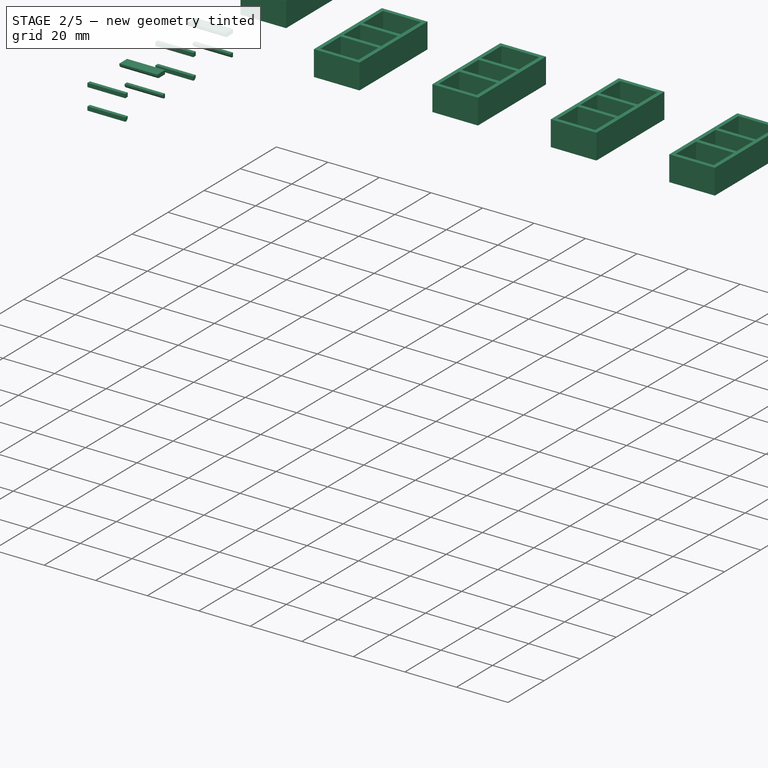
[diagram: stage 2 of 5 — iso view after this stage's code; geometry added in this stage tinted green]
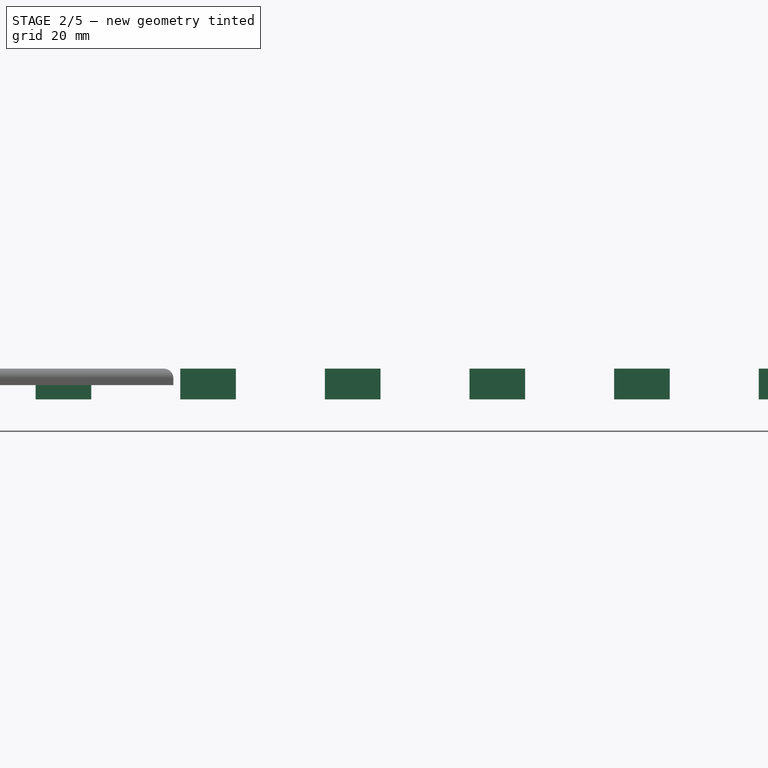
[diagram: stage 2 of 5 — front view after this stage's code; geometry added in this stage tinted green]
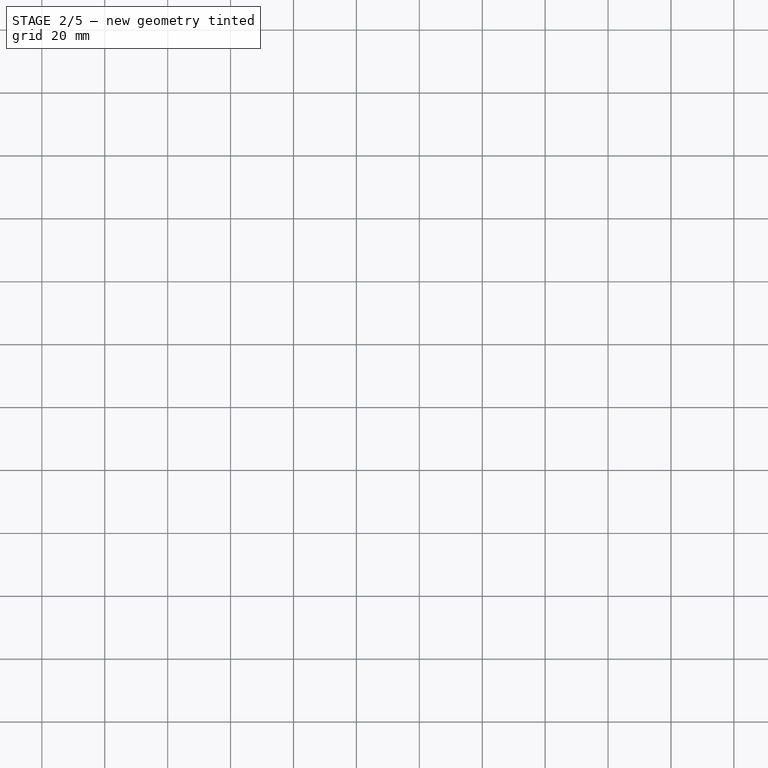
[diagram: stage 2 of 5 — top view after this stage's code; geometry added in this stage tinted green]
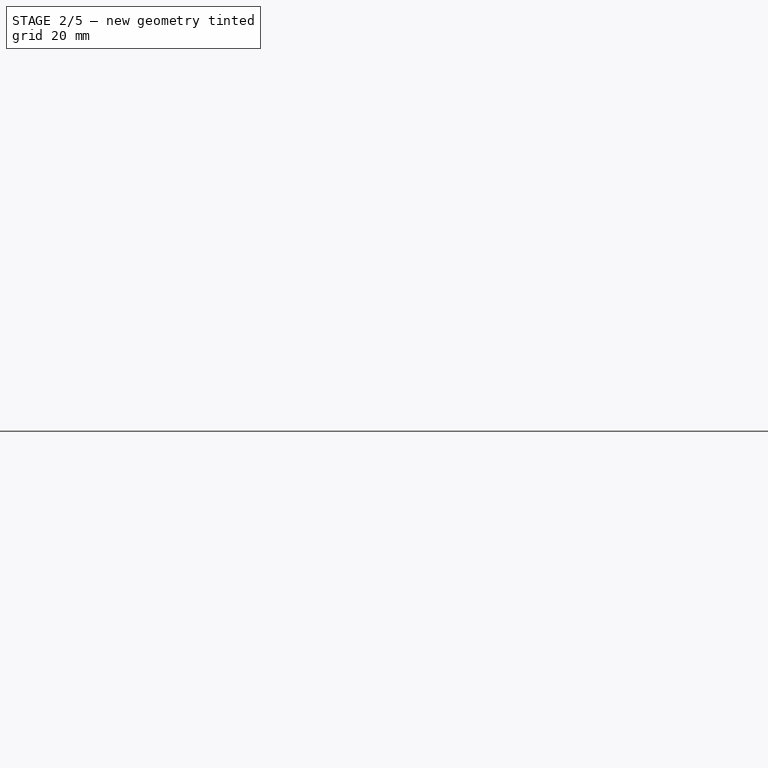
[diagram: stage 2 of 5 — right view after this stage's code; geometry added in this stage tinted green]
FEATURE [Sketcher::SketchObject] Sketch002  label="Feature Holes Sketch"
  ArcFitTolerance = 1e-06
  AttachmentSupport = -> [Pocket]
  ExternalBSplineMaxDegree = 5
  ExternalBSplineTolerance = 0.0001
  FullyConstrained = true
  InternalTolerance = 1e-06
  InvalidShape = false
  MakeInternals = false
  MapMode = 5
  Placement = pos=(0,0,5.25) rot=(0,0,1;0rad)
  Support = -> [Pocket]
  TreeRank = 17
  ValidateShape = true
  expr: Constraints[104] = <<Parameters>>.Gang_3_Offset + (<<Parameters>>.Gang_Width - <<Parameters>>.Toggle_Hole_Width) / 2
  expr: Constraints[105] = <<Parameters>>.Gang_4_Offset + (<<Parameters>>.Gang_Width - <<Parameters>>.Toggle_Hole_Width) / 2
  expr: Constraints[106] = <<Parameters>>.Gang_5_Offset + (<<Parameters>>.Gang_Width - <<Parameters>>.Toggle_Hole_Width) / 2
  expr: Constraints[107] = <<Parameters>>.Gang_6_Offset + (<<Parameters>>.Gang_Width - <<Parameters>>.Toggle_Hole_Width) / 2
  expr: Constraints[108] = <<Parameters>>.Gang_7_Offset + (<<Parameters>>.Gang_Width - <<Parameters>>.Toggle_Hole_Width) / 2
  expr: Constraints[109] = <<Parameters>>.Gang_8_Offset + (<<Parameters>>.Gang_Width - <<Parameters>>.Toggle_Hole_Width) / 2
  expr: Constraints[10] = <<Parameters>>.Gang_1_Offset + (<<Parameters>>.Gang_Width - <<Parameters>>.Toggle_Hole_Width) / 2
  expr: Constraints[110] = <<Parameters>>.Gang_9_Offset + (<<Parameters>>.Gang_Width - <<Parameters>>.Toggle_Hole_Width) / 2
  expr: Constraints[111] = <<Parameters>>.Gang_10_Offset + (<<Parameters>>.Gang_Width - <<Parameters>>.Toggle_Hole_Width) / 2
  expr: Constraints[112] = <<Parameters>>.Gang_3_Type == <<Toggle>> ? (<<Parameters>>.Cover_Height - <<Parameters>>.Toggle_Hole_Height) / 2 : <<Parameters>>.Cover_Height * 2
  expr: Constraints[113] = <<Parameters>>.Gang_4_Type == <<Toggle>> ? (<<Parameters>>.Cover_Height - <<Parameters>>.Toggle_Hole_Height) / 2 : <<Parameters>>.Cover_Height * 2
  expr: Constraints[114] = <<Parameters>>.Gang_5_Type == <<Toggle>> ? (<<Parameters>>.Cover_Height - <<Parameters>>.Toggle_Hole_Height) / 2 : <<Parameters>>.Cover_Height * 2
  expr: Constraints[115] = <<Parameters>>.Gang_6_Type == <<Toggle>> ? (<<Parameters>>.Cover_Height - <<Parameters>>.Toggle_Hole_Height) / 2 : <<Parameters>>.Cover_Height * 2
  expr: Constraints[116] = <<Parameters>>.Gang_7_Type == <<Toggle>> ? (<<Parameters>>.Cover_Height - <<Parameters>>.Toggle_Hole_Height) / 2 : <<Parameters>>.Cover_Height * 2
  expr: Constraints[117] = <<Parameters>>.Gang_8_Type == <<Toggle>> ? (<<Parameters>>.Cover_Height - <<Parameters>>.Toggle_Hole_Height) / 2 : <<Parameters>>.Cover_Height * 2
  expr: Constraints[118] = <<Parameters>>.Gang_9_Type == <<Toggle>> ? (<<Parameters>>.Cover_Height - <<Parameters>>.Toggle_Hole_Height) / 2 : <<Parameters>>.Cover_Height * 2
  expr: Constraints[119] = <<Parameters>>.Gang_10_Type == <<Toggle>> ? (<<Parameters>>.Cover_Height - <<Parameters>>.Toggle_Hole_Height) / 2 : <<Parameters>>.Cover_Height * 2
  expr: Constraints[11] = <<Parameters>>.Gang_1_Type == <<Toggle>> ? (<<Parameters>>.Cover_Height - <<Parameters>>.Toggle_Hole_Height) / 2 : <<Parameters>>.Cover_Height * 2
  expr: Constraints[122] = <<Parameters>>.Duplex_Hole_Diameter
  expr: Constraints[123] = <<Parameters>>.Duplex_Hole_Distance
  expr: Constraints[127] = <<Parameters>>.Duplex_Hole_Distance
  expr: Constraints[128] = <<Parameters>>.Gang_1_Offset + <<Parameters>>.Gang_Width / 2
  expr: Constraints[129] = <<Parameters>>.Gang_2_Offset + <<Parameters>>.Gang_Width / 2
  expr: Constraints[133] = <<Parameters>>.Duplex_Hole_Distance
  expr: Constraints[137] = <<Parameters>>.Duplex_Hole_Distance
  expr: Constraints[156] = <<Parameters>>.Duplex_Hole_Distance
  expr: Constraints[157] = <<Parameters>>.Duplex_Hole_Distance
  expr: Constraints[158] = <<Parameters>>.Duplex_Hole_Distance
  expr: Constraints[159] = <<Parameters>>.Duplex_Hole_Distance
  expr: Constraints[160] = <<Parameters>>.Duplex_Hole_Distance
  expr: Constraints[161] = <<Parameters>>.Duplex_Hole_Distance
  expr: Constraints[162] = <<Parameters>>.Gang_3_Offset + <<Parameters>>.Gang_Width / 2
  expr: Constraints[163] = <<Parameters>>.Gang_4_Offset + <<Parameters>>.Gang_Width / 2
  expr: Constraints[164] = <<Parameters>>.Gang_5_Offset + <<Parameters>>.Gang_Width / 2
  expr: Constraints[165] = <<Parameters>>.Gang_6_Offset + <<Parameters>>.Gang_Width / 2
  expr: Constraints[166] = <<Parameters>>.Gang_7_Offset + <<Parameters>>.Gang_Width / 2
  expr: Constraints[167] = <<Parameters>>.Gang_8_Offset + <<Parameters>>.Gang_Width / 2
  expr: Constraints[168] = <<Parameters>>.Gang_9_Offset + <<Parameters>>.Gang_Width / 2
  expr: Constraints[169] = <<Parameters>>.Gang_10_Offset + <<Parameters>>.Gang_Width / 2
  expr: Constraints[173] = <<Parameters>>.Duplex_Hole_Height
  expr: Constraints[22] = <<Parameters>>.Gang_2_Offset + (<<Parameters>>.Gang_Width - <<Parameters>>.Toggle_Hole_Width) / 2
  expr: Constraints[23] = <<Parameters>>.Gang_2_Type == <<Toggle>> ? (<<Parameters>>.Cover_Height - <<Parameters>>.Toggle_Hole_Height) / 2 : <<Parameters>>.Cover_Height * 2
  expr: Constraints[370] = <<Parameters>>.Gang_1_Type == <<Duplex>> ? <<Parameters>>.Duplex_Y_Offset : <<Parameters>>.Cover_Height * 2
  expr: Constraints[371] = <<Parameters>>.Gang_2_Type == <<Duplex>> ? <<Parameters>>.Duplex_Y_Offset : <<Parameters>>.Cover_Height * 2
  expr: Constraints[372] = <<Parameters>>.Gang_3_Type == <<Duplex>> ? <<Parameters>>.Duplex_Y_Offset : <<Parameters>>.Cover_Height * 2
  expr: Constraints[373] = <<Parameters>>.Gang_4_Type == <<Duplex>> ? <<Parameters>>.Duplex_Y_Offset : <<Parameters>>.Cover_Height * 2
  expr: Constraints[374] = <<Parameters>>.Gang_5_Type == <<Duplex>> ? <<Parameters>>.Duplex_Y_Offset : <<Parameters>>.Cover_Height * 2
  expr: Constraints[375] = <<Parameters>>.Gang_6_Type == <<Duplex>> ? <<Parameters>>.Duplex_Y_Offset : <<Parameters>>.Cover_Height * 2
  expr: Constraints[376] = <<Parameters>>.Gang_7_Type == <<Duplex>> ? <<Parameters>>.Duplex_Y_Offset : <<Parameters>>.Cover_Height * 2
  expr: Constraints[377] = <<Parameters>>.Gang_8_Type == <<Duplex>> ? <<Parameters>>.Duplex_Y_Offset : <<Parameters>>.Cover_Height * 2
  expr: Constraints[378] = <<Parameters>>.Gang_9_Type == <<Duplex>> ? <<Parameters>>.Duplex_Y_Offset : <<Parameters>>.Cover_Height * 2
  expr: Constraints[379] = <<Parameters>>.Gang_10_Type == <<Duplex>> ? <<Parameters>>.Duplex_Y_Offset : <<Parameters>>.Cover_Height * 2
  expr: Constraints[388] = <<Parameters>>.Rocker_Hole_Width
  expr: Constraints[389] = <<Parameters>>.Rocker_Hole_Height
  expr: Constraints[390] = <<Parameters>>.Gang_1_Offset + (<<Parameters>>.Gang_Width - <<Parameters>>.Rocker_Hole_Width) / 2
  expr: Constraints[481] = <<Parameters>>.Gang_2_Offset + (<<Parameters>>.Gang_Width - <<Parameters>>.Rocker_Hole_Width) / 2
  expr: Constraints[482] = <<Parameters>>.Gang_3_Offset + (<<Parameters>>.Gang_Width - <<Parameters>>.Rocker_Hole_Width) / 2
  expr: Constraints[483] = <<Parameters>>.Gang_4_Offset + (<<Parameters>>.Gang_Width - <<Parameters>>.Rocker_Hole_Width) / 2
  expr: Constraints[484] = <<Parameters>>.Gang_5_Offset + (<<Parameters>>.Gang_Width - <<Parameters>>.Rocker_Hole_Width) / 2
  expr: Constraints[485] = <<Parameters>>.Gang_6_Offset + (<<Parameters>>.Gang_Width - <<Parameters>>.Rocker_Hole_Width) / 2
  expr: Constraints[486] = <<Parameters>>.Gang_7_Offset + (<<Parameters>>.Gang_Width - <<Parameters>>.Rocker_Hole_Width) / 2
  expr: Constraints[487] = <<Parameters>>.Gang_8_Offset + (<<Parameters>>.Gang_Width - <<Parameters>>.Rocker_Hole_Width) / 2
  expr: Constraints[488] = <<Parameters>>.Gang_9_Offset + (<<Parameters>>.Gang_Width - <<Parameters>>.Rocker_Hole_Width) / 2
  expr: Constraints[489] = <<Parameters>>.Gang_10_Offset + (<<Parameters>>.Gang_Width - <<Parameters>>.Rocker_Hole_Width) / 2
  expr: Constraints[490] = <<Parameters>>.Gang_1_Type == <<Rocker>> ? (<<Parameters>>.Cover_Height - <<Parameters>>.Rocker_Hole_Height) / 2 : <<Parameters>>.Cover_Height * 3
  expr: Constraints[491] = <<Parameters>>.Gang_2_Type == <<Rocker>> ? (<<Parameters>>.Cover_Height - <<Parameters>>.Rocker_Hole_Height) / 2 : <<Parameters>>.Cover_Height * 3
  expr: Constraints[492] = <<Parameters>>.Gang_3_Type == <<Rocker>> ? (<<Parameters>>.Cover_Height - <<Parameters>>.Rocker_Hole_Height) / 2 : <<Parameters>>.Cover_Height * 3
  expr: Constraints[493] = <<Parameters>>.Gang_4_Type == <<Rocker>> ? (<<Parameters>>.Cover_Height - <<Parameters>>.Rocker_Hole_Height) / 2 : <<Parameters>>.Cover_Height * 3
  expr: Constraints[494] = <<Parameters>>.Gang_5_Type == <<Rocker>> ? (<<Parameters>>.Cover_Height - <<Parameters>>.Rocker_Hole_Height) / 2 : <<Parameters>>.Cover_Height * 3
  expr: Constraints[495] = <<Parameters>>.Gang_6_Type == <<Rocker>> ? (<<Parameters>>.Cover_Height - <<Parameters>>.Rocker_Hole_Height) / 2 : <<Parameters>>.Cover_Height * 3
  expr: Constraints[496] = <<Parameters>>.Gang_7_Type == <<Rocker>> ? (<<Parameters>>.Cover_Height - <<Parameters>>.Rocker_Hole_Height) / 2 : <<Parameters>>.Cover_Height * 3
  expr: Constraints[497] = <<Parameters>>.Gang_8_Type == <<Rocker>> ? (<<Parameters>>.Cover_Height - <<Parameters>>.Rocker_Hole_Height) / 2 : <<Parameters>>.Cover_Height * 3
  expr: Constraints[498] = <<Parameters>>.Gang_9_Type == <<Rocker>> ? (<<Parameters>>.Cover_Height - <<Parameters>>.Rocker_Hole_Height) / 2 : <<Parameters>>.Cover_Height * 3
  expr: Constraints[499] = <<Parameters>>.Gang_10_Type == <<Rocker>> ? (<<Parameters>>.Cover_Height - <<Parameters>>.Rocker_Hole_Height) / 2 : <<Parameters>>.Cover_Height * 3
  expr: Constraints[516] = <<Parameters>>.Keystone_Coupler_Height
  expr: Constraints[517] = <<Parameters>>.Keystone_Coupler_Width
  expr: Constraints[520] = <<Parameters>>.Keystone_Coupler_Distance
  expr: Constraints[521] = <<Parameters>>.Gang_1_Offset + (<<Parameters>>.Gang_Width - <<Parameters>>.Keystone_Coupler_Width) / 2
  expr: Constraints[522] = <<Parameters>>.Gang_1_Offset + (<<Parameters>>.Gang_Width - <<Parameters>>.Keystone_Coupler_Width) / 2
  expr: Constraints[523] = <<Parameters>>.Gang_1_Type == <<Keystone>> ? <<Parameters>>.Keystone_Y_Position : <<Parameters>>.Cover_Height * 4
  expr: Constraints[704] = <<Parameters>>.Gang_2_Offset + (<<Parameters>>.Gang_Width - <<Parameters>>.Keystone_Coupler_Width) / 2
  expr: Constraints[705] = <<Parameters>>.Gang_2_Offset + (<<Parameters>>.Gang_Width - <<Parameters>>.Keystone_Coupler_Width) / 2
  expr: Constraints[706] = <<Parameters>>.Gang_3_Offset + (<<Parameters>>.Gang_Width - <<Parameters>>.Keystone_Coupler_Width) / 2
  expr: Constraints[707] = <<Parameters>>.Gang_3_Offset + (<<Parameters>>.Gang_Width - <<Parameters>>.Keystone_Coupler_Width) / 2
  expr: Constraints[708] = <<Parameters>>.Gang_4_Offset + (<<Parameters>>.Gang_Width - <<Parameters>>.Keystone_Coupler_Width) / 2
  expr: Constraints[709] = <<Parameters>>.Gang_4_Offset + (<<Parameters>>.Gang_Width - <<Parameters>>.Keystone_Coupler_Width) / 2
  expr: Constraints[710] = <<Parameters>>.Gang_5_Offset + (<<Parameters>>.Gang_Width - <<Parameters>>.Keystone_Coupler_Width) / 2
  expr: Constraints[711] = <<Parameters>>.Gang_5_Offset + (<<Parameters>>.Gang_Width - <<Parameters>>.Keystone_Coupler_Width) / 2
  expr: Constraints[712] = <<Parameters>>.Gang_6_Offset + (<<Parameters>>.Gang_Width - <<Parameters>>.Keystone_Coupler_Width) / 2
  expr: Constraints[713] = <<Parameters>>.Gang_6_Offset + (<<Parameters>>.Gang_Width - <<Parameters>>.Keystone_Coupler_Width) / 2
  expr: Constraints[714] = <<Parameters>>.Gang_7_Offset + (<<Parameters>>.Gang_Width - <<Parameters>>.Keystone_Coupler_Width) / 2
  expr: Constraints[715] = <<Parameters>>.Gang_7_Offset + (<<Parameters>>.Gang_Width - <<Parameters>>.Keystone_Coupler_Width) / 2
  expr: Constraints[716] = <<Parameters>>.Gang_8_Offset + (<<Parameters>>.Gang_Width - <<Parameters>>.Keystone_Coupler_Width) / 2
  expr: Constraints[717] = <<Parameters>>.Gang_8_Offset + (<<Parameters>>.Gang_Width - <<Parameters>>.Keystone_Coupler_Width) / 2
  expr: Constraints[718] = <<Parameters>>.Gang_9_Offset + (<<Parameters>>.Gang_Width - <<Parameters>>.Keystone_Coupler_Width) / 2
  expr: Constraints[719] = <<Parameters>>.Gang_9_Offset + (<<Parameters>>.Gang_Width - <<Parameters>>.Keystone_Coupler_Width) / 2
  expr: Constraints[720] = <<Parameters>>.Gang_10_Offset + (<<Parameters>>.Gang_Width - <<Parameters>>.Keystone_Coupler_Width) / 2
  expr: Constraints[721] = <<Parameters>>.Gang_10_Offset + (<<Parameters>>.Gang_Width - <<Parameters>>.Keystone_Coupler_Width) / 2
  expr: Constraints[722] = <<Parameters>>.Keystone_Coupler_Distance
  expr: Constraints[723] = <<Parameters>>.Keystone_Coupler_Distance
  expr: Constraints[724] = <<Parameters>>.Keystone_Coupler_Distance
  expr: Constraints[725] = <<Parameters>>.Keystone_Coupler_Distance
  expr: Constraints[726] = <<Parameters>>.Keystone_Coupler_Distance
  expr: Constraints[727] = <<Parameters>>.Keystone_Coupler_Distance
  expr: Constraints[728] = <<Parameters>>.Keystone_Coupler_Distance
  expr: Constraints[729] = <<Parameters>>.Keystone_Coupler_Distance
  expr: Constraints[730] = <<Parameters>>.Keystone_Coupler_Distance
  expr: Constraints[731] = <<Parameters>>.Gang_2_Type == <<Keystone>> ? <<Parameters>>.Keystone_Y_Position : <<Parameters>>.Cover_Height * 4
  expr: Constraints[732] = <<Parameters>>.Gang_3_Type == <<Keystone>> ? <<Parameters>>.Keystone_Y_Position : <<Parameters>>.Cover_Height * 4
  expr: Constraints[733] = <<Parameters>>.Gang_4_Type == <<Keystone>> ? <<Parameters>>.Keystone_Y_Position : <<Parameters>>.Cover_Height * 4
  expr: Constraints[734] = <<Parameters>>.Gang_5_Type == <<Keystone>> ? <<Parameters>>.Keystone_Y_Position : <<Parameters>>.Cover_Height * 4
  expr: Constraints[735] = <<Parameters>>.Gang_6_Type == <<Keystone>> ? <<Parameters>>.Keystone_Y_Position : <<Parameters>>.Cover_Height * 4
  expr: Constraints[736] = <<Parameters>>.Gang_7_Type == <<Keystone>> ? <<Parameters>>.Keystone_Y_Position : <<Parameters>>.Cover_Height * 4
  expr: Constraints[737] = <<Parameters>>.Gang_8_Type == <<Keystone>> ? <<Parameters>>.Keystone_Y_Position : <<Parameters>>.Cover_Height * 4
  expr: Constraints[738] = <<Parameters>>.Gang_9_Type == <<Keystone>> ? <<Parameters>>.Keystone_Y_Position : <<Parameters>>.Cover_Height * 4
  expr: Constraints[739] = <<Parameters>>.Gang_10_Type == <<Keystone>> ? <<Parameters>>.Keystone_Y_Position : <<Parameters>>.Cover_Height * 4
  expr: Constraints[740] = <<Parameters>>.Nema_Hole_Diameter
  expr: Constraints[741] = <<Parameters>>.Gang_1_Type == <<Nema>> ? <<Parameters>>.Cover_Height / 2 : <<Parameters>>.Cover_Height * 5
  expr: Constraints[745] = <<Parameters>>.Gang_2_Type == <<Nema>> ? <<Parameters>>.Cover_Height / 2 : <<Parameters>>.Cover_Height * 5
  expr: Constraints[746] = <<Parameters>>.Gang_1_Offset + <<Parameters>>.Gang_Width / 2
  expr: Constraints[747] = <<Parameters>>.Gang_2_Offset + <<Parameters>>.Gang_Width / 2
  expr: Constraints[748] = <<Parameters>>.Gang_3_Offset + <<Parameters>>.Gang_Width / 2
  expr: Constraints[749] = <<Parameters>>.Gang_4_Offset + <<Parameters>>.Gang_Width / 2
  expr: Constraints[756] = <<Parameters>>.Gang_5_Offset + <<Parameters>>.Gang_Width / 2
  expr: Constraints[757] = <<Parameters>>.Gang_6_Offset + <<Parameters>>.Gang_Width / 2
  expr: Constraints[758] = <<Parameters>>.Gang_7_Offset + <<Parameters>>.Gang_Width / 2
  expr: Constraints[759] = <<Parameters>>.Gang_8_Offset + <<Parameters>>.Gang_Width / 2
  expr: Constraints[760] = <<Parameters>>.Gang_9_Offset + <<Parameters>>.Gang_Width / 2
  expr: Constraints[761] = <<Parameters>>.Gang_10_Offset + <<Parameters>>.Gang_Width / 2
  expr: Constraints[762] = <<Parameters>>.Gang_3_Type == <<Nema>> ? <<Parameters>>.Cover_Height / 2 : <<Parameters>>.Cover_Height * 5
  expr: Constraints[763] = <<Parameters>>.Gang_4_Type == <<Nema>> ? <<Parameters>>.Cover_Height / 2 : <<Parameters>>.Cover_Height * 5
  expr: Constraints[764] = <<Parameters>>.Gang_5_Type == <<Nema>> ? <<Parameters>>.Cover_Height / 2 : <<Parameters>>.Cover_Height * 5
  expr: Constraints[765] = <<Parameters>>.Gang_6_Type == <<Nema>> ? <<Parameters>>.Cover_Height / 2 : <<Parameters>>.Cover_Height * 5
  expr: Constraints[766] = <<Parameters>>.Gang_7_Type == <<Nema>> ? <<Parameters>>.Cover_Height / 2 : <<Parameters>>.Cover_Height * 5
  expr: Constraints[767] = <<Parameters>>.Gang_8_Type == <<Nema>> ? <<Parameters>>.Cover_Height / 2 : <<Parameters>>.Cover_Height * 5
  expr: Constraints[768] = <<Parameters>>.Gang_9_Type == <<Nema>> ? <<Parameters>>.Cover_Height / 2 : <<Parameters>>.Cover_Height * 5
  expr: Constraints[769] = <<Parameters>>.Gang_10_Type == <<Nema>> ? <<Parameters>>.Cover_Height / 2 : <<Parameters>>.Cover_Height * 5
  expr: Constraints[770] = <<Parameters>>.Scew_Hole_Diameter
  expr: Constraints[774] = <<Parameters>>.Nema_Hole_Distance / 2
  expr: Constraints[775] = <<Parameters>>.Nema_Hole_Distance / 2
  expr: Constraints[812] = <<Parameters>>.Nema_Hole_Distance / 2
  expr: Constraints[813] = <<Parameters>>.Nema_Hole_Distance / 2
  expr: Constraints[814] = <<Parameters>>.Nema_Hole_Distance / 2
  expr: Constraints[815] = <<Parameters>>.Nema_Hole_Distance / 2
  expr: Constraints[816] = <<Parameters>>.Nema_Hole_Distance / 2
  expr: Constraints[817] = <<Parameters>>.Nema_Hole_Distance / 2
  expr: Constraints[818] = <<Parameters>>.Nema_Hole_Distance / 2
  expr: Constraints[819] = <<Parameters>>.Nema_Hole_Distance / 2
  expr: Constraints[820] = <<Parameters>>.Nema_Hole_Distance / 2
  expr: Constraints[821] = <<Parameters>>.Nema_Hole_Distance / 2
  expr: Constraints[822] = <<Parameters>>.Nema_Hole_Distance / 2
  expr: Constraints[823] = <<Parameters>>.Nema_Hole_Distance / 2
  expr: Constraints[824] = <<Parameters>>.Nema_Hole_Distance / 2
  expr: Constraints[825] = <<Parameters>>.Nema_Hole_Distance / 2
  expr: Constraints[826] = <<Parameters>>.Nema_Hole_Distance / 2
  expr: Constraints[827] = <<Parameters>>.Nema_Hole_Distance / 2
  expr: Constraints[828] = <<Parameters>>.Nema_Hole_Distance / 2
  expr: Constraints[829] = <<Parameters>>.Nema_Hole_Distance / 2
  expr: Constraints[8] = <<Parameters>>.Toggle_Hole_Width
  expr: Constraints[9] = <<Parameters>>.Toggle_Hole_Height
  sketch-geometry (270):
    g0: LineSegment StartX=29.7657 StartY=252.412 StartZ=0 EndX=40.0844 EndY=252.412 EndZ=0
    g1: LineSegment StartX=40.0844 StartY=252.412 StartZ=0 EndX=40.0844 EndY=228.6 EndZ=0
    g2: LineSegment StartX=40.0844 StartY=228.6 StartZ=0 EndX=29.7657 EndY=228.6 EndZ=0
    g3: LineSegment StartX=29.7657 StartY=228.6 StartZ=0 EndX=29.7657 EndY=252.412 EndZ=0
    g4: LineSegment StartX=75.7396 StartY=69.0563 StartZ=0 EndX=86.0584 EndY=69.0563 EndZ=0
    g5: LineSegment StartX=86.0584 StartY=69.0563 StartZ=0 EndX=86.0584 EndY=45.2437 EndZ=0
    g6: LineSegment StartX=86.0584 StartY=45.2437 StartZ=0 EndX=75.7396 EndY=45.2437 EndZ=0
    g7: LineSegment StartX=75.7396 StartY=45.2437 StartZ=0 EndX=75.7396 EndY=69.0563 EndZ=0
    g8: LineSegment StartX=121.714 StartY=69.0563 StartZ=0 EndX=132.032 EndY=69.0563 EndZ=0
    g9: LineSegment StartX=132.032 StartY=69.0563 StartZ=0 EndX=132.032 EndY=45.2437 EndZ=0
    g10: LineSegment StartX=132.032 StartY=45.2437 StartZ=0 EndX=121.714 EndY=45.2437 EndZ=0
    g11: LineSegment StartX=121.714 StartY=45.2437 StartZ=0 EndX=121.714 EndY=69.0563 EndZ=0
    g12: LineSegment StartX=167.688 StartY=204.787 StartZ=0 EndX=178.006 EndY=204.787 EndZ=0
    g13: LineSegment StartX=178.006 StartY=204.787 StartZ=0 EndX=178.006 EndY=228.6 EndZ=0
    g14: LineSegment StartX=178.006 StartY=228.6 StartZ=0 EndX=167.688 EndY=228.6 EndZ=0
    g15: LineSegment StartX=167.688 StartY=228.6 StartZ=0 EndX=167.688 EndY=204.787 EndZ=0
    g16: LineSegment StartX=213.662 StartY=204.787 StartZ=0 EndX=223.98 EndY=204.787 EndZ=0
    g17: LineSegment StartX=223.98 StartY=204.787 StartZ=0 EndX=223.98 EndY=228.6 EndZ=0
    g18: LineSegment StartX=223.98 StartY=228.6 StartZ=0 EndX=213.662 EndY=228.6 EndZ=0
    g19: LineSegment StartX=213.662 StartY=228.6 StartZ=0 EndX=213.662 EndY=204.787 EndZ=0
    g20: LineSegment StartX=259.636 StartY=204.787 StartZ=0 EndX=269.954 EndY=204.787 EndZ=0
    g21: LineSegment StartX=269.954 StartY=204.787 StartZ=0 EndX=269.954 EndY=228.6 EndZ=0
    g22: LineSegment StartX=269.954 StartY=228.6 StartZ=0 EndX=259.636 EndY=228.6 EndZ=0
    g23: LineSegment StartX=259.636 StartY=228.6 StartZ=0 EndX=259.636 EndY=204.787 EndZ=0
    g24: LineSegment StartX=305.61 StartY=204.787 StartZ=0 EndX=315.928 EndY=204.787 EndZ=0
    g25: LineSegment StartX=315.928 StartY=204.787 StartZ=0 EndX=315.928 EndY=228.6 EndZ=0
    g26: LineSegment StartX=315.928 StartY=228.6 StartZ=0 EndX=305.61 EndY=228.6 EndZ=0
    g27: LineSegment StartX=305.61 StartY=228.6 StartZ=0 EndX=305.61 EndY=204.787 EndZ=0
    g28: LineSegment StartX=351.584 StartY=204.787 StartZ=0 EndX=361.902 EndY=204.787 EndZ=0
    g29: LineSegment StartX=361.902 StartY=204.787 StartZ=0 EndX=361.902 EndY=228.6 EndZ=0
    g30: LineSegment StartX=361.902 StartY=228.6 StartZ=0 EndX=351.584 EndY=228.6 EndZ=0
    g31: LineSegment StartX=351.584 StartY=228.6 StartZ=0 EndX=351.584 EndY=204.787 EndZ=0
    g32: LineSegment StartX=397.558 StartY=204.787 StartZ=0 EndX=407.876 EndY=204.787 EndZ=0
    g33: LineSegment StartX=407.876 StartY=204.787 StartZ=0 EndX=407.876 EndY=228.6 EndZ=0
    g34: LineSegment StartX=407.876 StartY=228.6 StartZ=0 EndX=397.558 EndY=228.6 EndZ=0
    g35: LineSegment StartX=397.558 StartY=228.6 StartZ=0 EndX=397.558 EndY=204.787 EndZ=0
    g36: LineSegment StartX=443.532 StartY=204.787 StartZ=0 EndX=453.85 EndY=204.787 EndZ=0
    g37: LineSegment StartX=453.85 StartY=204.787 StartZ=0 EndX=453.85 EndY=228.6 EndZ=0
    g38: LineSegment StartX=453.85 StartY=228.6 StartZ=0 EndX=443.532 EndY=228.6 EndZ=0
    g39: LineSegment StartX=443.532 StartY=228.6 StartZ=0 EndX=443.532 EndY=204.787 EndZ=0
    g40: ArcOfCircle CenterX=34.925 CenterY=76.5969 CenterZ=0 NormalX=0 NormalY=0 NormalZ=1 AngleXU=0 Radius=17.0657 StartAngle=2.14943 EndAngle=4.13375
    g41: ArcOfCircle CenterX=34.925 CenterY=37.7031 CenterZ=0 NormalX=0 NormalY=0 NormalZ=1 AngleXU=0 Radius=17.0657 StartAngle=2.14943 EndAngle=4.13375
    g42: ArcOfCircle CenterX=80.899 CenterY=242.887 CenterZ=0 NormalX=0 NormalY=0 NormalZ=1 AngleXU=0 Radius=17.0657 StartAngle=2.14943 EndAngle=4.13375
    g43: ArcOfCircle CenterX=80.899 CenterY=281.781 CenterZ=0 NormalX=0 NormalY=0 NormalZ=1 AngleXU=0 Radius=17.0657 StartAngle=2.14943 EndAngle=4.13375
    g44: ArcOfCircle CenterX=126.873 CenterY=242.887 CenterZ=0 NormalX=0 NormalY=0 NormalZ=1 AngleXU=0 Radius=17.0657 StartAngle=2.14943 EndAngle=4.13375
    g45: ArcOfCircle CenterX=126.873 CenterY=281.781 CenterZ=0 NormalX=0 NormalY=0 NormalZ=1 AngleXU=0 Radius=17.0657 StartAngle=5.29103 EndAngle=7.27534
    g46: ArcOfCircle CenterX=172.847 CenterY=242.887 CenterZ=0 NormalX=0 NormalY=0 NormalZ=1 AngleXU=0 Radius=17.0657 StartAngle=5.29103 EndAngle=7.27534
    g47: ArcOfCircle CenterX=172.847 CenterY=281.781 CenterZ=0 NormalX=0 NormalY=0 NormalZ=1 AngleXU=0 Radius=17.0657 StartAngle=5.29103 EndAngle=7.27534
    g48: ArcOfCircle CenterX=218.821 CenterY=242.887 CenterZ=0 NormalX=0 NormalY=0 NormalZ=1 AngleXU=0 Radius=17.0657 StartAngle=2.14943 EndAngle=4.13375
    g49: ArcOfCircle CenterX=218.821 CenterY=281.781 CenterZ=0 NormalX=0 NormalY=0 NormalZ=1 AngleXU=0 Radius=17.0657 StartAngle=2.14943 EndAngle=4.13375
    g50: ArcOfCircle CenterX=264.795 CenterY=242.887 CenterZ=0 NormalX=0 NormalY=0 NormalZ=1 AngleXU=0 Radius=17.0657 StartAngle=5.29103 EndAngle=7.27534
    g51: ArcOfCircle CenterX=264.795 CenterY=281.781 CenterZ=0 NormalX=0 NormalY=0 NormalZ=1 AngleXU=0 Radius=17.0657 StartAngle=5.29103 EndAngle=7.27534
    g52: ArcOfCircle CenterX=310.769 CenterY=242.887 CenterZ=0 NormalX=0 NormalY=0 NormalZ=1 AngleXU=0 Radius=17.0657 StartAngle=2.14943 EndAngle=4.13375
    g53: ArcOfCircle CenterX=310.769 CenterY=281.781 CenterZ=0 NormalX=0 NormalY=0 NormalZ=1 AngleXU=0 Radius=17.0657 StartAngle=2.14943 EndAngle=4.13375
    g54: ArcOfCircle CenterX=356.743 CenterY=242.887 CenterZ=0 NormalX=0 NormalY=0 NormalZ=1 AngleXU=0 Radius=17.0657 StartAngle=2.14943 EndAngle=4.13375
    g55: ArcOfCircle CenterX=356.743 CenterY=281.781 CenterZ=0 NormalX=0 NormalY=0 NormalZ=1 AngleXU=0 Radius=17.0657 StartAngle=5.29103 EndAngle=7.27534
    g56: ArcOfCircle CenterX=402.717 CenterY=242.887 CenterZ=0 NormalX=0 NormalY=0 NormalZ=1 AngleXU=0 Radius=17.0657 StartAngle=2.14943 EndAngle=4.13375
    g57: ArcOfCircle CenterX=402.717 CenterY=281.781 CenterZ=0 NormalX=0 NormalY=0 NormalZ=1 AngleXU=0 Radius=17.0657 StartAngle=5.29103 EndAngle=7.27534
    g58: ArcOfCircle CenterX=448.691 CenterY=242.887 CenterZ=0 NormalX=0 NormalY=0 NormalZ=1 AngleXU=0 Radius=17.0657 StartAngle=2.14943 EndAngle=4.13375
    g59: ArcOfCircle CenterX=448.691 CenterY=281.781 CenterZ=0 NormalX=0 NormalY=0 NormalZ=1 AngleXU=0 Radius=17.0657 StartAngle=2.14943 EndAngle=4.13375
    g60: LineSegment StartX=25.5921 StartY=90.8843 StartZ=0 EndX=44.2579 EndY=90.8843 EndZ=0
    g61: LineSegment StartX=25.5921 StartY=62.3094 StartZ=0 EndX=44.2579 EndY=62.3094 EndZ=0
    g62: ArcOfCircle CenterX=34.925 CenterY=76.5969 CenterZ=0 NormalX=0 NormalY=0 NormalZ=1 AngleXU=0 Radius=17.0657 StartAngle=5.29103 EndAngle=7.27534
    g63: LineSegment StartX=25.5921 StartY=51.9907 StartZ=0 EndX=44.2579 EndY=51.9907 EndZ=0
    g64: LineSegment StartX=25.5921 StartY=23.4156 StartZ=0 EndX=44.2579 EndY=23.4156 EndZ=0
    g65: LineSegment StartX=71.5661 StartY=296.069 StartZ=0 EndX=90.2319 EndY=296.069 EndZ=0
    g66: LineSegment StartX=71.5661 StartY=257.175 StartZ=0 EndX=90.2319 EndY=257.175 EndZ=0
    g67: LineSegment StartX=71.5661 StartY=228.6 StartZ=0 EndX=90.2319 EndY=228.6 EndZ=0
    g68: LineSegment StartX=117.54 StartY=296.069 StartZ=0 EndX=136.206 EndY=296.069 EndZ=0
    g69: LineSegment StartX=117.54 StartY=267.494 StartZ=0 EndX=136.206 EndY=267.494 EndZ=0
    g70: LineSegment StartX=117.54 StartY=257.175 StartZ=0 EndX=136.206 EndY=257.175 EndZ=0
    g71: LineSegment StartX=117.54 StartY=228.6 StartZ=0 EndX=136.206 EndY=228.6 EndZ=0
    g72: LineSegment StartX=71.5661 StartY=267.494 StartZ=0 EndX=90.2319 EndY=267.494 EndZ=0
    g73: LineSegment StartX=163.514 StartY=296.069 StartZ=0 EndX=182.18 EndY=296.069 EndZ=0
    g74: LineSegment StartX=163.514 StartY=267.494 StartZ=0 EndX=182.18 EndY=267.494 EndZ=0
    g75: LineSegment StartX=163.514 StartY=257.175 StartZ=0 EndX=182.18 EndY=257.175 EndZ=0
    g76: LineSegment StartX=163.514 StartY=228.6 StartZ=0 EndX=182.18 EndY=228.6 EndZ=0
    g77: LineSegment StartX=209.488 StartY=296.069 StartZ=0 EndX=228.154 EndY=296.069 EndZ=0
    g78: LineSegment StartX=209.488 StartY=267.494 StartZ=0 EndX=228.154 EndY=267.494 EndZ=0
    g79: LineSegment StartX=209.488 StartY=257.175 StartZ=0 EndX=228.154 EndY=257.175 EndZ=0
    g80: LineSegment StartX=209.488 StartY=228.6 StartZ=0 EndX=228.154 EndY=228.6 EndZ=0
    g81: LineSegment StartX=255.462 StartY=296.069 StartZ=0 EndX=274.128 EndY=296.069 EndZ=0
    g82: LineSegment StartX=255.462 StartY=267.494 StartZ=0 EndX=274.128 EndY=267.494 EndZ=0
    g83: LineSegment StartX=255.462 StartY=257.175 StartZ=0 EndX=274.128 EndY=257.175 EndZ=0
    g84: LineSegment StartX=255.462 StartY=228.6 StartZ=0 EndX=274.128 EndY=228.6 EndZ=0
    g85: LineSegment StartX=301.436 StartY=296.069 StartZ=0 EndX=320.102 EndY=296.069 EndZ=0
    g86: LineSegment StartX=301.436 StartY=267.494 StartZ=0 EndX=320.102 EndY=267.494 EndZ=0
    g87: LineSegment StartX=301.436 StartY=257.175 StartZ=0 EndX=320.102 EndY=257.175 EndZ=0
    g88: LineSegment StartX=301.436 StartY=228.6 StartZ=0 EndX=320.102 EndY=228.6 EndZ=0
    g89: LineSegment StartX=347.41 StartY=296.069 StartZ=0 EndX=366.076 EndY=296.069 EndZ=0
    g90: LineSegment StartX=347.41 StartY=267.494 StartZ=0 EndX=366.076 EndY=267.494 EndZ=0
    g91: LineSegment StartX=347.41 StartY=257.175 StartZ=0 EndX=366.076 EndY=257.175 EndZ=0
    g92: LineSegment StartX=347.41 StartY=228.6 StartZ=0 EndX=366.076 EndY=228.6 EndZ=0
    g93: LineSegment StartX=393.384 StartY=296.069 StartZ=0 EndX=412.05 EndY=296.069 EndZ=0
    g94: LineSegment StartX=393.384 StartY=267.494 StartZ=0 EndX=412.05 EndY=267.494 EndZ=0
    g95: LineSegment StartX=393.384 StartY=257.175 StartZ=0 EndX=412.05 EndY=257.175 EndZ=0
    g96: LineSegment StartX=393.384 StartY=228.6 StartZ=0 EndX=412.05 EndY=228.6 EndZ=0
    g97: LineSegment StartX=439.358 StartY=296.069 StartZ=0 EndX=458.024 EndY=296.069 EndZ=0
    g98: LineSegment StartX=439.358 StartY=267.494 StartZ=0 EndX=458.024 EndY=267.494 EndZ=0
    g99: LineSegment StartX=439.358 StartY=257.175 StartZ=0 EndX=458.024 EndY=257.175 EndZ=0
    g100: LineSegment StartX=439.358 StartY=228.6 StartZ=0 EndX=458.024 EndY=228.6 EndZ=0
    g101: ArcOfCircle CenterX=34.925 CenterY=37.7031 CenterZ=0 NormalX=0 NormalY=0 NormalZ=1 AngleXU=0 Radius=17.0657 StartAngle=5.29103 EndAngle=7.27534
    g102: ArcOfCircle CenterX=80.899 CenterY=281.781 CenterZ=0 NormalX=0 NormalY=0 NormalZ=1 AngleXU=0 Radius=17.0657 StartAngle=5.29103 EndAngle=7.27534
    g103: ArcOfCircle CenterX=80.899 CenterY=242.887 CenterZ=0 NormalX=0 NormalY=0 NormalZ=1 AngleXU=0 Radius=17.0657 StartAngle=5.29103 EndAngle=7.27534
    g104: ArcOfCircle CenterX=126.873 CenterY=281.781 CenterZ=0 NormalX=0 NormalY=0 NormalZ=1 AngleXU=0 Radius=17.0657 StartAngle=2.14943 EndAngle=4.13375
    g105: ArcOfCircle CenterX=126.873 CenterY=242.887 CenterZ=0 NormalX=0 NormalY=0 NormalZ=1 AngleXU=0 Radius=17.0657 StartAngle=5.29103 EndAngle=7.27534
    g106: ArcOfCircle CenterX=172.847 CenterY=242.887 CenterZ=0 NormalX=0 NormalY=0 NormalZ=1 AngleXU=0 Radius=17.0657 StartAngle=2.14943 EndAngle=4.13375
    g107: ArcOfCircle CenterX=172.847 CenterY=281.781 CenterZ=0 NormalX=0 NormalY=0 NormalZ=1 AngleXU=0 Radius=17.0657 StartAngle=2.14943 EndAngle=4.13375
    g108: ArcOfCircle CenterX=218.821 CenterY=281.781 CenterZ=0 NormalX=0 NormalY=0 NormalZ=1 AngleXU=0 Radius=17.0657 StartAngle=5.29103 EndAngle=7.27534
    g109: ArcOfCircle CenterX=218.821 CenterY=242.887 CenterZ=0 NormalX=0 NormalY=0 NormalZ=1 AngleXU=0 Radius=17.0657 StartAngle=5.29103 EndAngle=7.27534
    g110: ArcOfCircle CenterX=264.795 CenterY=242.887 CenterZ=0 NormalX=0 NormalY=0 NormalZ=1 AngleXU=0 Radius=17.0657 StartAngle=2.14943 EndAngle=4.13375
    g111: ArcOfCircle CenterX=264.795 CenterY=281.781 CenterZ=0 NormalX=0 NormalY=0 NormalZ=1 AngleXU=0 Radius=17.0657 StartAngle=2.14943 EndAngle=4.13375
    g112: ArcOfCircle CenterX=310.769 CenterY=281.781 CenterZ=0 NormalX=0 NormalY=0 NormalZ=1 AngleXU=0 Radius=17.0657 StartAngle=5.29103 EndAngle=7.27534
    g113: ArcOfCircle CenterX=310.769 CenterY=242.887 CenterZ=0 NormalX=0 NormalY=0 NormalZ=1 AngleXU=0 Radius=17.0657 StartAngle=5.29103 EndAngle=7.27534
    g114: ArcOfCircle CenterX=356.743 CenterY=281.781 CenterZ=0 NormalX=0 NormalY=0 NormalZ=1 AngleXU=0 Radius=17.0657 StartAngle=2.14943 EndAngle=4.13375
    g115: ArcOfCircle CenterX=356.743 CenterY=242.887 CenterZ=0 NormalX=0 NormalY=0 NormalZ=1 AngleXU=0 Radius=17.0657 StartAngle=5.29103 EndAngle=7.27534
    g116: ArcOfCircle CenterX=402.717 CenterY=281.781 CenterZ=0 NormalX=0 NormalY=0 NormalZ=1 AngleXU=0 Radius=17.0657 StartAngle=2.14943 EndAngle=4.13375
    g117: ArcOfCircle CenterX=402.717 CenterY=242.887 CenterZ=0 NormalX=0 NormalY=0 NormalZ=1 AngleXU=0 Radius=17.0657 StartAngle=5.29103 EndAngle=7.27534
    g118: ArcOfCircle CenterX=448.691 CenterY=281.781 CenterZ=0 NormalX=0 NormalY=0 NormalZ=1 AngleXU=0 Radius=17.0657 StartAngle=5.29103 EndAngle=7.27534
    g119: ArcOfCircle CenterX=448.691 CenterY=242.887 CenterZ=0 NormalX=0 NormalY=0 NormalZ=1 AngleXU=0 Radius=17.0657 StartAngle=5.29103 EndAngle=7.27534
    g120: LineSegment StartX=18.2563 StartY=409.575 StartZ=0 EndX=51.5938 EndY=409.575 EndZ=0
    g121: LineSegment StartX=51.5938 StartY=409.575 StartZ=0 EndX=51.5938 EndY=342.9 EndZ=0
    g122: LineSegment StartX=51.5938 StartY=342.9 StartZ=0 EndX=18.2563 EndY=342.9 EndZ=0
    g123: LineSegment StartX=18.2563 StartY=342.9 StartZ=0 EndX=18.2563 EndY=409.575 EndZ=0
    g124: LineSegment StartX=64.2302 StartY=276.225 StartZ=0 EndX=97.5677 EndY=276.225 EndZ=0
    g125: LineSegment StartX=97.5677 StartY=276.225 StartZ=0 EndX=97.5677 EndY=342.9 EndZ=0
    g126: LineSegment StartX=97.5677 StartY=342.9 StartZ=0 EndX=64.2302 EndY=342.9 EndZ=0
    g127: LineSegment StartX=64.2302 StartY=342.9 StartZ=0 EndX=64.2302 EndY=276.225 EndZ=0
    g128: LineSegment StartX=110.204 StartY=276.225 StartZ=0 EndX=143.542 EndY=276.225 EndZ=0
    g129: LineSegment StartX=143.542 StartY=276.225 StartZ=0 EndX=143.542 EndY=342.9 EndZ=0
    g130: LineSegment StartX=143.542 StartY=342.9 StartZ=0 EndX=110.204 EndY=342.9 EndZ=0
    g131: LineSegment StartX=110.204 StartY=342.9 StartZ=0 EndX=110.204 EndY=276.225 EndZ=0
    g132: LineSegment StartX=156.178 StartY=276.225 StartZ=0 EndX=189.516 EndY=276.225 EndZ=0
    g133: LineSegment StartX=189.516 StartY=276.225 StartZ=0 EndX=189.516 EndY=342.9 EndZ=0
    g134: LineSegment StartX=189.516 StartY=342.9 StartZ=0 EndX=156.178 EndY=342.9 EndZ=0
    g135: LineSegment StartX=156.178 StartY=342.9 StartZ=0 EndX=156.178 EndY=276.225 EndZ=0
    g136: LineSegment StartX=202.152 StartY=409.575 StartZ=0 EndX=235.49 EndY=409.575 EndZ=0
    g137: LineSegment StartX=235.49 StartY=409.575 StartZ=0 EndX=235.49 EndY=342.9 EndZ=0
    g138: LineSegment StartX=235.49 StartY=342.9 StartZ=0 EndX=202.152 EndY=342.9 EndZ=0
    g139: LineSegment StartX=202.152 StartY=342.9 StartZ=0 EndX=202.152 EndY=409.575 EndZ=0
    g140: LineSegment StartX=248.126 StartY=409.575 StartZ=0 EndX=281.464 EndY=409.575 EndZ=0
    g141: LineSegment StartX=281.464 StartY=409.575 StartZ=0 EndX=281.464 EndY=342.9 EndZ=0
    g142: LineSegment StartX=281.464 StartY=342.9 StartZ=0 EndX=248.126 EndY=342.9 EndZ=0
    g143: LineSegment StartX=248.126 StartY=342.9 StartZ=0 EndX=248.126 EndY=409.575 EndZ=0
    g144: LineSegment StartX=294.1 StartY=409.575 StartZ=0 EndX=327.438 EndY=409.575 EndZ=0
    g145: LineSegment StartX=327.438 StartY=409.575 StartZ=0 EndX=327.438 EndY=342.9 EndZ=0
    g146: LineSegment StartX=327.438 StartY=342.9 StartZ=0 EndX=294.1 EndY=342.9 EndZ=0
    g147: LineSegment StartX=294.1 StartY=342.9 StartZ=0 EndX=294.1 EndY=409.575 EndZ=0
    g148: LineSegment StartX=340.074 StartY=409.575 StartZ=0 EndX=373.412 EndY=409.575 EndZ=0
    g149: LineSegment StartX=373.412 StartY=409.575 StartZ=0 EndX=373.412 EndY=342.9 EndZ=0
    g150: LineSegment StartX=373.412 StartY=342.9 StartZ=0 EndX=340.074 EndY=342.9 EndZ=0
    g151: LineSegment StartX=340.074 StartY=342.9 StartZ=0 EndX=340.074 EndY=409.575 EndZ=0
    g152: LineSegment StartX=386.048 StartY=409.575 StartZ=0 EndX=419.386 EndY=409.575 EndZ=0
    g153: LineSegment StartX=419.386 StartY=409.575 StartZ=0 EndX=419.386 EndY=342.9 EndZ=0
    g154: LineSegment StartX=419.386 StartY=342.9 StartZ=0 EndX=386.048 EndY=342.9 EndZ=0
    g155: LineSegment StartX=386.048 StartY=342.9 StartZ=0 EndX=386.048 EndY=409.575 EndZ=0
    g156: LineSegment StartX=432.022 StartY=409.575 StartZ=0 EndX=465.36 EndY=409.575 EndZ=0
    g157: LineSegment StartX=465.36 StartY=409.575 StartZ=0 EndX=465.36 EndY=342.9 EndZ=0
    g158: LineSegment StartX=465.36 StartY=342.9 StartZ=0 EndX=432.022 EndY=342.9 EndZ=0
    g159: LineSegment StartX=432.022 StartY=342.9 StartZ=0 EndX=432.022 EndY=409.575 EndZ=0
    g160: LineSegment StartX=26.075 StartY=494.5 StartZ=0 EndX=43.775 EndY=494.5 EndZ=0
    g161: LineSegment StartX=43.775 StartY=494.5 StartZ=0 EndX=43.775 EndY=469.5 EndZ=0
    g162: LineSegment StartX=43.775 StartY=469.5 StartZ=0 EndX=26.075 EndY=469.5 EndZ=0
    g163: LineSegment StartX=26.075 StartY=469.5 StartZ=0 EndX=26.075 EndY=494.5 EndZ=0
    g164: LineSegment StartX=26.075 StartY=482.2 StartZ=0 EndX=43.775 EndY=482.2 EndZ=0
    g165: LineSegment StartX=43.775 StartY=482.2 StartZ=0 EndX=43.775 EndY=457.2 EndZ=0
    g166: LineSegment StartX=43.775 StartY=457.2 StartZ=0 EndX=26.075 EndY=457.2 EndZ=0
    g167: LineSegment StartX=26.075 StartY=457.2 StartZ=0 EndX=26.075 EndY=482.2 EndZ=0
    g168: LineSegment StartX=72.049 StartY=444.5 StartZ=0 EndX=89.749 EndY=444.5 EndZ=0
    g169: LineSegment StartX=89.749 StartY=444.5 StartZ=0 EndX=89.749 EndY=419.5 EndZ=0
    g170: LineSegment StartX=89.749 StartY=419.5 StartZ=0 EndX=72.049 EndY=419.5 EndZ=0
    g171: LineSegment StartX=72.049 StartY=419.5 StartZ=0 EndX=72.049 EndY=444.5 EndZ=0
    g172: LineSegment StartX=72.049 StartY=432.2 StartZ=0 EndX=89.749 EndY=432.2 EndZ=0
    g173: LineSegment StartX=89.749 StartY=432.2 StartZ=0 EndX=89.749 EndY=457.2 EndZ=0
    g174: LineSegment StartX=89.749 StartY=457.2 StartZ=0 EndX=72.049 EndY=457.2 EndZ=0
    g175: LineSegment StartX=72.049 StartY=457.2 StartZ=0 EndX=72.049 EndY=432.2 EndZ=0
    g176: LineSegment StartX=118.023 StartY=444.5 StartZ=0 EndX=135.723 EndY=444.5 EndZ=0
    g177: LineSegment StartX=135.723 StartY=444.5 StartZ=0 EndX=135.723 EndY=419.5 EndZ=0
    g178: LineSegment StartX=135.723 StartY=419.5 StartZ=0 EndX=118.023 EndY=419.5 EndZ=0
    g179: LineSegment StartX=118.023 StartY=419.5 StartZ=0 EndX=118.023 EndY=444.5 EndZ=0
    g180: LineSegment StartX=118.023 StartY=432.2 StartZ=0 EndX=135.723 EndY=432.2 EndZ=0
    g181: LineSegment StartX=135.723 StartY=432.2 StartZ=0 EndX=135.723 EndY=457.2 EndZ=0
    g182: LineSegment StartX=135.723 StartY=457.2 StartZ=0 EndX=118.023 EndY=457.2 EndZ=0
    g183: LineSegment StartX=118.023 StartY=457.2 StartZ=0 EndX=118.023 EndY=432.2 EndZ=0
    g184: LineSegment StartX=163.997 StartY=444.5 StartZ=0 EndX=181.697 EndY=444.5 EndZ=0
    g185: LineSegment StartX=181.697 StartY=444.5 StartZ=0 EndX=181.697 EndY=419.5 EndZ=0
    g186: LineSegment StartX=181.697 StartY=419.5 StartZ=0 EndX=163.997 EndY=419.5 EndZ=0
    g187: LineSegment StartX=163.997 StartY=419.5 StartZ=0 EndX=163.997 EndY=444.5 EndZ=0
    g188: LineSegment StartX=163.997 StartY=432.2 StartZ=0 EndX=181.697 EndY=432.2 EndZ=0
    g189: LineSegment StartX=181.697 StartY=432.2 StartZ=0 EndX=181.697 EndY=457.2 EndZ=0
    g190: LineSegment StartX=181.697 StartY=457.2 StartZ=0 EndX=163.997 EndY=457.2 EndZ=0
    g191: LineSegment StartX=163.997 StartY=457.2 StartZ=0 EndX=163.997 EndY=432.2 EndZ=0
    g192: LineSegment StartX=209.971 StartY=444.5 StartZ=0 EndX=227.671 EndY=444.5 EndZ=0
    g193: LineSegment StartX=227.671 StartY=444.5 StartZ=0 EndX=227.671 EndY=419.5 EndZ=0
    g194: LineSegment StartX=227.671 StartY=419.5 StartZ=0 EndX=209.971 EndY=419.5 EndZ=0
    g195: LineSegment StartX=209.971 StartY=419.5 StartZ=0 EndX=209.971 EndY=444.5 EndZ=0
    g196: LineSegment StartX=209.971 StartY=432.2 StartZ=0 EndX=227.671 EndY=432.2 EndZ=0
    g197: LineSegment StartX=227.671 StartY=432.2 StartZ=0 EndX=227.671 EndY=457.2 EndZ=0
    g198: LineSegment StartX=227.671 StartY=457.2 StartZ=0 EndX=209.971 EndY=457.2 EndZ=0
    g199: LineSegment StartX=209.971 StartY=457.2 StartZ=0 EndX=209.971 EndY=432.2 EndZ=0
    g200: LineSegment StartX=255.945 StartY=444.5 StartZ=0 EndX=273.645 EndY=444.5 EndZ=0
    g201: LineSegment StartX=273.645 StartY=444.5 StartZ=0 EndX=273.645 EndY=419.5 EndZ=0
    g202: LineSegment StartX=273.645 StartY=419.5 StartZ=0 EndX=255.945 EndY=419.5 EndZ=0
    g203: LineSegment StartX=255.945 StartY=419.5 StartZ=0 EndX=255.945 EndY=444.5 EndZ=0
    g204: LineSegment StartX=255.945 StartY=432.2 StartZ=0 EndX=273.645 EndY=432.2 EndZ=0
    g205: LineSegment StartX=273.645 StartY=432.2 StartZ=0 EndX=273.645 EndY=457.2 EndZ=0
    g206: LineSegment StartX=273.645 StartY=457.2 StartZ=0 EndX=255.945 EndY=457.2 EndZ=0
    g207: LineSegment StartX=255.945 StartY=457.2 StartZ=0 EndX=255.945 EndY=432.2 EndZ=0
    g208: LineSegment StartX=301.919 StartY=444.5 StartZ=0 EndX=319.619 EndY=444.5 EndZ=0
    g209: LineSegment StartX=319.619 StartY=444.5 StartZ=0 EndX=319.619 EndY=419.5 EndZ=0
    g210: LineSegment StartX=319.619 StartY=419.5 StartZ=0 EndX=301.919 EndY=419.5 EndZ=0
    g211: LineSegment StartX=301.919 StartY=419.5 StartZ=0 EndX=301.919 EndY=444.5 EndZ=0
    g212: LineSegment StartX=301.919 StartY=432.2 StartZ=0 EndX=319.619 EndY=432.2 EndZ=0
    g213: LineSegment StartX=319.619 StartY=432.2 StartZ=0 EndX=319.619 EndY=457.2 EndZ=0
    g214: LineSegment StartX=319.619 StartY=457.2 StartZ=0 EndX=301.919 EndY=457.2 EndZ=0
    g215: LineSegment StartX=301.919 StartY=457.2 StartZ=0 EndX=301.919 EndY=432.2 EndZ=0
    g216: LineSegment StartX=347.893 StartY=444.5 StartZ=0 EndX=365.593 EndY=444.5 EndZ=0
    g217: LineSegment StartX=365.593 StartY=444.5 StartZ=0 EndX=365.593 EndY=419.5 EndZ=0
    g218: LineSegment StartX=365.593 StartY=419.5 StartZ=0 EndX=347.893 EndY=419.5 EndZ=0
    g219: LineSegment StartX=347.893 StartY=419.5 StartZ=0 EndX=347.893 EndY=444.5 EndZ=0
    g220: LineSegment StartX=347.893 StartY=432.2 StartZ=0 EndX=365.593 EndY=432.2 EndZ=0
    g221: LineSegment StartX=365.593 StartY=432.2 StartZ=0 EndX=365.593 EndY=457.2 EndZ=0
    g222: LineSegment StartX=365.593 StartY=457.2 StartZ=0 EndX=347.893 EndY=457.2 EndZ=0
    g223: LineSegment StartX=347.893 StartY=457.2 StartZ=0 EndX=347.893 EndY=432.2 EndZ=0
    g224: LineSegment StartX=393.867 StartY=444.5 StartZ=0 EndX=411.567 EndY=444.5 EndZ=0
    g225: LineSegment StartX=411.567 StartY=444.5 StartZ=0 EndX=411.567 EndY=419.5 EndZ=0
    g226: LineSegment StartX=411.567 StartY=419.5 StartZ=0 EndX=393.867 EndY=419.5 EndZ=0
    g227: LineSegment StartX=393.867 StartY=419.5 StartZ=0 EndX=393.867 EndY=444.5 EndZ=0
    g228: LineSegment StartX=393.867 StartY=432.2 StartZ=0 EndX=411.567 EndY=432.2 EndZ=0
    g229: LineSegment StartX=411.567 StartY=432.2 StartZ=0 EndX=411.567 EndY=457.2 EndZ=0
    g230: LineSegment StartX=411.567 StartY=457.2 StartZ=0 EndX=393.867 EndY=457.2 EndZ=0
    g231: LineSegment StartX=393.867 StartY=457.2 StartZ=0 EndX=393.867 EndY=432.2 EndZ=0
    g232: LineSegment StartX=439.841 StartY=444.5 StartZ=0 EndX=457.541 EndY=444.5 EndZ=0
    g233: LineSegment StartX=457.541 StartY=444.5 StartZ=0 EndX=457.541 EndY=419.5 EndZ=0
    g234: LineSegment StartX=457.541 StartY=419.5 StartZ=0 EndX=439.841 EndY=419.5 EndZ=0
    g235: LineSegment StartX=439.841 StartY=419.5 StartZ=0 EndX=439.841 EndY=444.5 EndZ=0
    g236: LineSegment StartX=439.841 StartY=432.2 StartZ=0 EndX=457.541 EndY=432.2 EndZ=0
    g237: LineSegment StartX=457.541 StartY=432.2 StartZ=0 EndX=457.541 EndY=457.2 EndZ=0
    g238: LineSegment StartX=457.541 StartY=457.2 StartZ=0 EndX=439.841 EndY=457.2 EndZ=0
    g239: LineSegment StartX=439.841 StartY=457.2 StartZ=0 EndX=439.841 EndY=432.2 EndZ=0
    g240: Circle CenterX=34.925 CenterY=571.5 CenterZ=0 NormalX=0 NormalY=0 NormalZ=1 AngleXU=0 Radius=19.558
    g241: Circle CenterX=80.899 CenterY=571.5 CenterZ=0 NormalX=0 NormalY=0 NormalZ=1 AngleXU=0 Radius=19.558
    g242: Circle CenterX=126.873 CenterY=571.5 CenterZ=0 NormalX=0 NormalY=0 NormalZ=1 AngleXU=0 Radius=19.558
    g243: Circle CenterX=172.847 CenterY=571.5 CenterZ=0 NormalX=0 NormalY=0 NormalZ=1 AngleXU=0 Radius=19.558
    g244: Circle CenterX=218.821 CenterY=571.5 CenterZ=0 NormalX=0 NormalY=0 NormalZ=1 AngleXU=0 Radius=19.558
    g245: Circle CenterX=264.795 CenterY=571.5 CenterZ=0 NormalX=0 NormalY=0 NormalZ=1 AngleXU=0 Radius=19.558
    g246: Circle CenterX=310.769 CenterY=571.5 CenterZ=0 NormalX=0 NormalY=0 NormalZ=1 AngleXU=0 Radius=19.558
    g247: Circle CenterX=356.743 CenterY=571.5 CenterZ=0 NormalX=0 NormalY=0 NormalZ=1 AngleXU=0 Radius=19.558
    g248: Circle CenterX=402.717 CenterY=571.5 CenterZ=0 NormalX=0 NormalY=0 NormalZ=1 AngleXU=0 Radius=19.558
    g249: Circle CenterX=448.691 CenterY=571.5 CenterZ=0 NormalX=0 NormalY=0 NormalZ=1 AngleXU=0 Radius=19.558
    g250: Circle CenterX=34.925 CenterY=613.156 CenterZ=0 NormalX=0 NormalY=0 NormalZ=1 AngleXU=0 Radius=2.3
    g251: Circle CenterX=34.925 CenterY=529.844 CenterZ=0 NormalX=0 NormalY=0 NormalZ=1 AngleXU=0 Radius=2.3
    g252: Circle CenterX=80.899 CenterY=613.156 CenterZ=0 NormalX=0 NormalY=0 NormalZ=1 AngleXU=0 Radius=2.3
    g253: Circle CenterX=80.899 CenterY=529.844 CenterZ=0 NormalX=0 NormalY=0 NormalZ=1 AngleXU=0 Radius=2.3
    g254: Circle CenterX=126.873 CenterY=613.156 CenterZ=0 NormalX=0 NormalY=0 NormalZ=1 AngleXU=0 Radius=2.3
    g255: Circle CenterX=126.873 CenterY=529.844 CenterZ=0 NormalX=0 NormalY=0 NormalZ=1 AngleXU=0 Radius=2.3
    g256: Circle CenterX=172.847 CenterY=529.844 CenterZ=0 NormalX=0 NormalY=0 NormalZ=1 AngleXU=0 Radius=2.3
    g257: Circle CenterX=172.847 CenterY=613.156 CenterZ=0 NormalX=0 NormalY=0 NormalZ=1 AngleXU=0 Radius=2.3
    g258: Circle CenterX=218.821 CenterY=529.844 CenterZ=0 NormalX=0 NormalY=0 NormalZ=1 AngleXU=0 Radius=2.3
    g259: Circle CenterX=218.821 CenterY=613.156 CenterZ=0 NormalX=0 NormalY=0 NormalZ=1 AngleXU=0 Radius=2.3
    g260: Circle CenterX=264.795 CenterY=529.844 CenterZ=0 NormalX=0 NormalY=0 NormalZ=1 AngleXU=0 Radius=2.3
    g261: Circle CenterX=264.795 CenterY=613.156 CenterZ=0 NormalX=0 NormalY=0 NormalZ=1 AngleXU=0 Radius=2.3
    g262: Circle CenterX=310.769 CenterY=529.844 CenterZ=0 NormalX=0 NormalY=0 NormalZ=1 AngleXU=0 Radius=2.3
    g263: Circle CenterX=310.769 CenterY=613.156 CenterZ=0 NormalX=0 NormalY=0 NormalZ=1 AngleXU=0 Radius=2.3
    g264: Circle CenterX=356.743 CenterY=529.844 CenterZ=0 NormalX=0 NormalY=0 NormalZ=1 AngleXU=0 Radius=2.3
    g265: Circle CenterX=356.743 CenterY=613.156 CenterZ=0 NormalX=0 NormalY=0 NormalZ=1 AngleXU=0 Radius=2.3
    g266: Circle CenterX=402.717 CenterY=529.844 CenterZ=0 NormalX=0 NormalY=0 NormalZ=1 AngleXU=0 Radius=2.3
    g267: Circle CenterX=402.717 CenterY=613.156 CenterZ=0 NormalX=0 NormalY=0 NormalZ=1 AngleXU=0 Radius=2.3
    g268: Circle CenterX=448.691 CenterY=529.844 CenterZ=0 NormalX=0 NormalY=0 NormalZ=1 AngleXU=0 Radius=2.3
    g269: Circle CenterX=448.691 CenterY=613.156 CenterZ=0 NormalX=0 NormalY=0 NormalZ=1 AngleXU=0 Radius=2.3
  constraints (790):
    c: Coincident(g0,g1)
    c: Coincident(g1,g2)
    c: Coincident(g2,g3)
    c: Coincident(g3,g0)
    c: Horizontal(g0)
    c: Horizontal(g2)
    c: Vertical(g1)
    c: Vertical(g3)
    c: Distance(g2,g1) = 10.3187
    c: Distance(g0,g1) = 23.8125
    c: DistanceX(g-1,g2) = 29.7657
    c: DistanceY(g-1,g2) = 228.6
    c: Coincident(g4,g5)
    c: Coincident(g5,g6)
    c: Coincident(g6,g7)
    c: Coincident(g7,g4)
    c: Horizontal(g4)
    c: Horizontal(g6)
    c: Vertical(g5)
    c: Vertical(g7)
    c: Equal(g3,g7)
    c: Equal(g0,g4)
    c: DistanceX(g-1,g6) = 75.7396
    c: DistanceY(g-1,g6) = 45.2437
    c: Coincident(g8,g9)
    c: Coincident(g9,g10)
    c: Coincident(g10,g11)
    c: Coincident(g11,g8)
    c: Horizontal(g8)
    c: Horizontal(g10)
    c: Vertical(g9)
    c: Vertical(g11)
    c: Coincident(g12,g13)
    c: Coincident(g13,g14)
    c: Coincident(g14,g15)
    c: Coincident(g15,g12)
    c: Horizontal(g12)
    c: Horizontal(g14)
    c: Vertical(g13)
    c: Vertical(g15)
    c: Coincident(g16,g17)
    c: Coincident(g17,g18)
    c: Coincident(g18,g19)
    c: Coincident(g19,g16)
    c: Horizontal(g16)
    c: Horizontal(g18)
    c: Vertical(g17)
    c: Vertical(g19)
    c: Coincident(g20,g21)
    c: Coincident(g21,g22)
    c: Coincident(g22,g23)
    c: Coincident(g23,g20)
    c: Horizontal(g20)
    c: Horizontal(g22)
    c: Vertical(g21)
    c: Vertical(g23)
    c: Coincident(g24,g25)
    c: Coincident(g25,g26)
    c: Coincident(g26,g27)
    c: Coincident(g27,g24)
    c: Horizontal(g24)
    c: Horizontal(g26)
    c: Vertical(g25)
    c: Vertical(g27)
    c: Coincident(g28,g29)
    c: Coincident(g29,g30)
    c: Coincident(g30,g31)
    c: Coincident(g31,g28)
    c: Horizontal(g28)
    c: Horizontal(g30)
    c: Vertical(g29)
    c: Vertical(g31)
    c: Coincident(g32,g33)
    c: Coincident(g33,g34)
    c: Coincident(g34,g35)
    c: Coincident(g35,g32)
    c: Horizontal(g32)
    c: Horizontal(g34)
    c: Vertical(g33)
    c: Vertical(g35)
    c: Coincident(g36,g37)
    c: Coincident(g37,g38)
    c: Coincident(g38,g39)
    c: Coincident(g39,g36)
    c: Horizontal(g36)
    c: Horizontal(g38)
    c: Vertical(g37)
    c: Vertical(g39)
    c: Equal(g3,g11)
    c: Equal(g3,g15)
    c: Equal(g3,g19)
    c: Equal(g3,g23)
    c: Equal(g3,g27)
    c: Equal(g3,g31)
    c: Equal(g3,g35)
    c: Equal(g3,g39)
    c: Equal(g0,g8)
    c: Equal(g0,g12)
    c: Equal(g0,g16)
    c: Equal(g0,g20)
    c: Equal(g0,g24)
    c: Equal(g0,g28)
    c: Equal(g0,g32)
    c: Equal(g0,g36)
    c: DistanceX(g-1,g10) = 121.714
    c: DistanceX(g-1,g14) = 167.688
    c: DistanceX(g-1,g18) = 213.662
    c: DistanceX(g-1,g22) = 259.636
    c: DistanceX(g-1,g26) = 305.61
    c: DistanceX(g-1,g30) = 351.584
    c: DistanceX(g-1,g34) = 397.558
    c: DistanceX(g-1,g38) = 443.532
    c: DistanceY(g-1,g10) = 45.2437
    c: DistanceY(g-1,g14) = 228.6
    c: DistanceY(g-1,g18) = 228.6
    c: DistanceY(g-1,g22) = 228.6
    c: DistanceY(g-1,g26) = 228.6
    c: DistanceY(g-1,g30) = 228.6
    c: DistanceY(g-1,g34) = 228.6
    c: DistanceY(g-1,g38) = 228.6
    c: Equal(g40,g41)
    c: Vertical(g40,g41)
    c: Diameter(g40) = 34.1313
    c: Distance(g40,g41) = 38.8937
    c: Equal(g40,g43)
    c: Equal(g40,g42)
    c: Vertical(g43,g42)
    c: Distance(g42,g43) = 38.8937
    c: DistanceX(g-1,g41) = 34.925
    c: DistanceX(g-1,g42) = 80.899
    c: Equal(g40,g45)
    c: Equal(g40,g44)
    c: Vertical(g45,g44)
    c: Distance(g45,g44) = 38.8937
    c: Equal(g40,g47)
    c: Equal(g40,g46)
    c: Vertical(g47,g46)
    c: Distance(g47,g46) = 38.8937
    c: Equal(g40,g49)
    c: Equal(g40,g48)
    c: Equal(g40,g51)
    c: Equal(g40,g50)
    c: Equal(g40,g53)
    c: Equal(g40,g52)
    c: Equal(g40,g55)
    c: Equal(g40,g54)
    c: Equal(g40,g57)
    c: Equal(g40,g56)
    c: Equal(g40,g59)
    c: Equal(g40,g58)
    c: Vertical(g49,g48)
    c: Vertical(g51,g50)
    c: Vertical(g53,g52)
    c: Vertical(g55,g54)
    c: Vertical(g57,g56)
    c: Vertical(g59,g58)
    c: Distance(g49,g48) = 38.8937
    c: Distance(g51,g50) = 38.8937
    c: Distance(g53,g52) = 38.8937
    c: Distance(g55,g54) = 38.8937
    c: Distance(g57,g56) = 38.8937
    c: Distance(g59,g58) = 38.8937
    c: DistanceX(g-1,g44) = 126.873
    c: DistanceX(g-1,g46) = 172.847
    c: DistanceX(g-1,g48) = 218.821
    c: DistanceX(g-1,g50) = 264.795
    c: DistanceX(g-1,g52) = 310.769
    c: DistanceX(g-1,g54) = 356.743
    c: DistanceX(g-1,g56) = 402.717
    c: DistanceX(g-1,g58) = 448.691
    c: Horizontal(g60)
    c: Horizontal(g61)
    c: Equal(g60,g61)
    c: DistanceY(g61,g60) = 28.575
    c: Coincident(g62,g60)
    c: Coincident(g40,g60)
    c: Equal(g40,g62)
    c: Coincident(g40,g61)
    c: Coincident(g62,g61)
    c: Coincident(g40,g62)
    c: Horizontal(g63)
    c: Horizontal(g64)
    c: Horizontal(g65)
    c: Horizontal(g66)
    c: Horizontal(g67)
    c: Horizontal(g68)
    c: Horizontal(g69)
    c: Horizontal(g70)
    c: Horizontal(g71)
    c: Equal(g60,g63)
    c: Equal(g60,g64)
    c: Equal(g60,g65)
    c: Horizontal(g72)
    c: Equal(g60,g72)
    c: Equal(g60, g66-g71) x6
    c: Horizontal(g73)
    c: Horizontal(g74)
    c: Horizontal(g75)
    c: Horizontal(g76)
    c: Horizontal(g77)
    c: Horizontal(g78)
    c: Horizontal(g79)
    c: Horizontal(g80)
    c: Horizontal(g81)
    c: Horizontal(g82)
    c: Horizontal(g83)
    c: Horizontal(g84)
    c: Horizontal(g85)
    c: Horizontal(g86)
    c: Horizontal(g87)
    c: Horizontal(g88)
    c: Horizontal(g89)
    c: Horizontal(g90)
    c: Horizontal(g91)
    c: Horizontal(g92)
    c: Horizontal(g93)
    c: Horizontal(g94)
    c: Horizontal(g95)
    c: Horizontal(g96)
    c: Horizontal(g97)
    c: Horizontal(g98)
    c: Horizontal(g99)
    c: Horizontal(g100)
    c: Equal(g60, g73-g100) x28
    c: Coincident(g101,g63)
    c: Coincident(g41,g63)
    c: Equal(g41,g101)
    c: Coincident(g41,g64)
    c: Coincident(g101,g64)
    c: Coincident(g41,g101)
    c: Coincident(g102,g65)
    c: Coincident(g43,g65)
    c: Equal(g43,g102)
    c: Coincident(g43,g72)
    c: Coincident(g102,g72)
    c: Coincident(g43,g102)
    c: Coincident(g103,g66)
    c: Coincident(g42,g66)
    c: Equal(g42,g103)
    c: Coincident(g42,g67)
    c: Coincident(g103,g67)
    c: Coincident(g42,g103)
    c: Coincident(g104,g69)
    c: Coincident(g45,g69)
    c: Equal(g45,g104)
    c: Coincident(g45,g68)
    c: Coincident(g104,g68)
    c: Coincident(g45,g104)
    c: Coincident(g105,g70)
    c: Coincident(g44,g70)
    c: Equal(g44,g105)
    c: Coincident(g44,g71)
    c: Coincident(g105,g71)
    c: Coincident(g44,g105)
    c: Coincident(g106,g76)
    c: Coincident(g46,g76)
    c: Equal(g46,g106)
    c: Coincident(g46,g75)
    c: Coincident(g106,g75)
    c: Coincident(g46,g106)
    c: Coincident(g107,g74)
    c: Coincident(g47,g74)
    c: Equal(g47,g107)
    c: Coincident(g47,g73)
    c: Coincident(g107,g73)
    c: Coincident(g47,g107)
    c: Coincident(g108,g77)
    c: Coincident(g49,g77)
    c: Equal(g49,g108)
    c: Coincident(g49,g78)
    c: Coincident(g108,g78)
    c: Coincident(g49,g108)
    c: Coincident(g109,g79)
    c: Coincident(g48,g79)
    c: Equal(g48,g109)
    c: Coincident(g48,g80)
    c: Coincident(g109,g80)
    c: Coincident(g48,g109)
    c: Coincident(g110,g84)
    c: Coincident(g50,g84)
    c: Equal(g50,g110)
    c: Coincident(g50,g83)
    c: Coincident(g110,g83)
    c: Coincident(g50,g110)
    c: Coincident(g111,g82)
    c: Coincident(g51,g82)
    c: Equal(g51,g111)
    c: Coincident(g51,g81)
    c: Coincident(g111,g81)
    c: Coincident(g51,g111)
    c: Coincident(g112,g85)
    c: Coincident(g53,g85)
    c: Equal(g53,g112)
    c: Coincident(g53,g86)
    c: Coincident(g112,g86)
    c: Coincident(g53,g112)
    c: Coincident(g113,g87)
    c: Coincident(g52,g87)
    c: Equal(g52,g113)
    c: Coincident(g52,g88)
    c: Coincident(g113,g88)
    c: Coincident(g52,g113)
    c: Coincident(g114,g90)
    c: Coincident(g55,g90)
    c: Equal(g55,g114)
    c: Coincident(g55,g89)
    c: Coincident(g114,g89)
    c: Coincident(g55,g114)
    c: Coincident(g115,g91)
    c: Coincident(g54,g91)
    c: Equal(g54,g115)
    c: Coincident(g54,g92)
    c: Coincident(g115,g92)
    c: Coincident(g54,g115)
    c: Coincident(g116,g94)
    c: Coincident(g57,g94)
    c: Equal(g57,g116)
    c: Coincident(g57,g93)
    c: Coincident(g116,g93)
    c: Coincident(g57,g116)
    c: Coincident(g117,g95)
    c: Coincident(g56,g95)
    c: Equal(g56,g117)
    c: Coincident(g56,g96)
    c: Coincident(g117,g96)
    c: Coincident(g56,g117)
    c: Coincident(g118,g97)
    c: Coincident(g59,g97)
    c: Equal(g59,g118)
    c: Coincident(g59,g98)
    c: Coincident(g118,g98)
    c: Coincident(g59,g118)
    c: Coincident(g119,g99)
    c: Coincident(g58,g99)
    c: Equal(g58,g119)
    c: Coincident(g58,g100)
    c: Coincident(g119,g100)
    c: Coincident(g58,g119)
    c: DistanceY(g-1,g41) = 23.4156
    c: DistanceY(g-1,g42) = 228.6
    c: DistanceY(g-1,g44) = 228.6
    c: DistanceY(g-1,g76) = 228.6
    c: DistanceY(g-1,g48) = 228.6
    c: DistanceY(g-1,g84) = 228.6
    c: DistanceY(g-1,g52) = 228.6
    c: DistanceY(g-1,g54) = 228.6
    c: DistanceY(g-1,g56) = 228.6
    c: DistanceY(g-1,g58) = 228.6
    c: Coincident(g120,g121)
    c: Coincident(g121,g122)
    c: Coincident(g122,g123)
    c: Coincident(g123,g120)
    c: Horizontal(g120)
    c: Horizontal(g122)
    c: Vertical(g121)
    c: Vertical(g123)
    c: Distance(g122,g121) = 33.3375
    c: Distance(g120,g121) = 66.675
    c: DistanceX(g-1,g122) = 18.2563
    c: Coincident(g124,g125)
    c: Coincident(g125,g126)
    c: Coincident(g126,g127)
    c: Coincident(g127,g124)
    c: Horizontal(g124)
    c: Horizontal(g126)
    c: Vertical(g125)
    c: Vertical(g127)
    c: Coincident(g128,g129)
    c: Coincident(g129,g130)
    c: Coincident(g130,g131)
    c: Coincident(g131,g128)
    c: Horizontal(g128)
    c: Horizontal(g130)
    c: Vertical(g129)
    c: Vertical(g131)
    c: Coincident(g132,g133)
    c: Coincident(g133,g134)
    c: Coincident(g134,g135)
    c: Coincident(g135,g132)
    c: Horizontal(g132)
    c: Horizontal(g134)
    c: Vertical(g133)
    c: Vertical(g135)
    c: Coincident(g136,g137)
    c: Coincident(g137,g138)
    c: Coincident(g138,g139)
    c: Coincident(g139,g136)
    c: Horizontal(g136)
    c: Horizontal(g138)
    c: Vertical(g137)
    c: Vertical(g139)
    c: Coincident(g140,g141)
    c: Coincident(g141,g142)
    c: Coincident(g142,g143)
    c: Coincident(g143,g140)
    c: Horizontal(g140)
    c: Horizontal(g142)
    c: Vertical(g141)
    c: Vertical(g143)
    c: Coincident(g144,g145)
    c: Coincident(g145,g146)
    c: Coincident(g146,g147)
    c: Coincident(g147,g144)
    c: Horizontal(g144)
    c: Horizontal(g146)
    c: Vertical(g145)
    c: Vertical(g147)
    c: Coincident(g148,g149)
    c: Coincident(g149,g150)
    c: Coincident(g150,g151)
    c: Coincident(g151,g148)
    c: Horizontal(g148)
    c: Horizontal(g150)
    c: Vertical(g149)
    c: Vertical(g151)
    c: Coincident(g152,g153)
    c: Coincident(g153,g154)
    c: Coincident(g154,g155)
    c: Coincident(g155,g152)
    c: Horizontal(g152)
    c: Horizontal(g154)
    c: Vertical(g153)
    c: Vertical(g155)
    c: Coincident(g156,g157)
    c: Coincident(g157,g158)
    c: Coincident(g158,g159)
    c: Coincident(g159,g156)
    c: Horizontal(g156)
    c: Horizontal(g158)
    c: Vertical(g157)
    c: Vertical(g159)
    c: Equal(g122,g126)
    c: Equal(g122,g130)
    c: Equal(g122,g134)
    c: Equal(g122,g138)
    c: Equal(g122,g142)
    c: Equal(g122,g146)
    c: Equal(g122,g150)
    c: Equal(g122,g154)
    c: Equal(g122,g158)
    c: Equal(g121,g127)
    c: Equal(g121,g135)
    c: Equal(g121,g131)
    c: Equal(g121,g139)
    c: Equal(g121,g143)
    c: Equal(g121,g147)
    c: Equal(g121,g151)
    c: Equal(g121,g155)
    c: Equal(g121,g159)
    c: DistanceX(g-1,g126) = 64.2302
    c: DistanceX(g-1,g130) = 110.204
    c: DistanceX(g-1,g134) = 156.178
    c: DistanceX(g-1,g138) = 202.152
    c: DistanceX(g-1,g142) = 248.126
    c: DistanceX(g-1,g146) = 294.1
    c: DistanceX(g-1,g150) = 340.074
    c: DistanceX(g-1,g154) = 386.048
    c: DistanceX(g-1,g158) = 432.022
    c: DistanceY(g-1,g122) = 342.9
    c: DistanceY(g-1,g126) = 342.9
    c: DistanceY(g-1,g130) = 342.9
    c: DistanceY(g-1,g134) = 342.9
    c: DistanceY(g-1,g138) = 342.9
    c: DistanceY(g-1,g142) = 342.9
    c: DistanceY(g-1,g146) = 342.9
    c: DistanceY(g-1,g150) = 342.9
    c: DistanceY(g-1,g154) = 342.9
    c: DistanceY(g-1,g158) = 342.9
    c: Coincident(g160,g161)
    c: Coincident(g161,g162)
    c: Coincident(g162,g163)
    c: Coincident(g163,g160)
    c: Horizontal(g160)
    c: Horizontal(g162)
    c: Vertical(g161)
    c: Vertical(g163)
    c: Coincident(g164,g165)
    c: Coincident(g165,g166)
    c: Coincident(g166,g167)
    c: Coincident(g167,g164)
    c: Horizontal(g164)
    c: Horizontal(g166)
    c: Vertical(g165)
    c: Vertical(g167)
    c: Distance(g165) = 25
    c: Distance(g166) = 17.7
    c: Equal(g165,g161)
    c: Equal(g166,g162)
    c: Distance(g162,g164) = 12.7
    c: DistanceX(g-1,g166) = 26.075
    c: DistanceX(g-1,g162) = 26.075
    c: DistanceY(g-1,g166) = 457.2
    c: Coincident(g168,g169)
    c: Coincident(g169,g170)
    c: Coincident(g170,g171)
    c: Coincident(g171,g168)
    c: Horizontal(g168)
    c: Horizontal(g170)
    c: Vertical(g169)
    c: Vertical(g171)
    c: Coincident(g172,g173)
    c: Coincident(g173,g174)
    c: Coincident(g174,g175)
    c: Coincident(g175,g172)
    c: Horizontal(g172)
    c: Horizontal(g174)
    c: Vertical(g173)
    c: Vertical(g175)
    c: Coincident(g176,g177)
    c: Coincident(g177,g178)
    c: Coincident(g178,g179)
    c: Coincident(g179,g176)
    c: Horizontal(g176)
    c: Horizontal(g178)
    c: Vertical(g177)
    c: Vertical(g179)
    c: Coincident(g180,g181)
    c: Coincident(g181,g182)
    c: Coincident(g182,g183)
    c: Coincident(g183,g180)
    c: Horizontal(g180)
    c: Horizontal(g182)
    c: Vertical(g181)
    c: Vertical(g183)
    c: Coincident(g184,g185)
    c: Coincident(g185,g186)
    c: Coincident(g186,g187)
    c: Coincident(g187,g184)
    c: Horizontal(g184)
    c: Horizontal(g186)
    c: Vertical(g185)
    c: Vertical(g187)
    c: Coincident(g188,g189)
    c: Coincident(g189,g190)
    c: Coincident(g190,g191)
    c: Coincident(g191,g188)
    c: Horizontal(g188)
    c: Horizontal(g190)
    c: Vertical(g189)
    c: Vertical(g191)
    c: Coincident(g192,g193)
    c: Coincident(g193,g194)
    c: Coincident(g194,g195)
    c: Coincident(g195,g192)
    c: Horizontal(g192)
    c: Horizontal(g194)
    c: Vertical(g193)
    c: Vertical(g195)
    c: Coincident(g196,g197)
    c: Coincident(g197,g198)
    c: Coincident(g198,g199)
    c: Coincident(g199,g196)
    c: Horizontal(g196)
    c: Horizontal(g198)
    c: Vertical(g197)
    c: Vertical(g199)
    c: Coincident(g200,g201)
    c: Coincident(g201,g202)
    c: Coincident(g202,g203)
    c: Coincident(g203,g200)
    c: Horizontal(g200)
    c: Horizontal(g202)
    c: Vertical(g201)
    c: Vertical(g203)
    c: Coincident(g204,g205)
    c: Coincident(g205,g206)
    c: Coincident(g206,g207)
    c: Coincident(g207,g204)
    c: Horizontal(g204)
    c: Horizontal(g206)
    c: Vertical(g205)
    c: Vertical(g207)
    c: Coincident(g208,g209)
    c: Coincident(g209,g210)
    c: Coincident(g210,g211)
    c: Coincident(g211,g208)
    c: Horizontal(g208)
    c: Horizontal(g210)
    c: Vertical(g209)
    c: Vertical(g211)
    c: Coincident(g212,g213)
    c: Coincident(g213,g214)
    c: Coincident(g214,g215)
    c: Coincident(g215,g212)
    c: Horizontal(g212)
    c: Horizontal(g214)
    c: Vertical(g213)
    c: Vertical(g215)
    c: Coincident(g216,g217)
    c: Coincident(g217,g218)
    c: Coincident(g218,g219)
    c: Coincident(g219,g216)
    c: Horizontal(g216)
    c: Horizontal(g218)
    c: Vertical(g217)
    c: Vertical(g219)
    c: Coincident(g220,g221)
    c: Coincident(g221,g222)
    c: Coincident(g222,g223)
    c: Coincident(g223,g220)
    c: Horizontal(g220)
    c: Horizontal(g222)
    c: Vertical(g221)
    c: Vertical(g223)
    c: Coincident(g224,g225)
    c: Coincident(g225,g226)
    c: Coincident(g226,g227)
    c: Coincident(g227,g224)
    c: Horizontal(g224)
    c: Horizontal(g226)
    c: Vertical(g225)
    c: Vertical(g227)
    c: Coincident(g228,g229)
    c: Coincident(g229,g230)
    c: Coincident(g230,g231)
    c: Coincident(g231,g228)
    c: Horizontal(g228)
    c: Horizontal(g230)
    c: Vertical(g229)
    c: Vertical(g231)
    c: Coincident(g232,g233)
    c: Coincident(g233,g234)
    c: Coincident(g234,g235)
    c: Coincident(g235,g232)
    c: Horizontal(g232)
    c: Horizontal(g234)
    c: Vertical(g233)
    c: Vertical(g235)
    c: Coincident(g236,g237)
    c: Coincident(g237,g238)
    c: Coincident(g238,g239)
    c: Coincident(g239,g236)
    c: Horizontal(g236)
    c: Horizontal(g238)
    c: Vertical(g237)
    c: Vertical(g239)
    c: Equal(g165,g173)
    c: Equal(g165,g169)
    c: Equal(g165,g177)
    c: Equal(g165,g181)
    c: Equal(g165,g189)
    c: Equal(g165,g185)
    c: Equal(g165,g193)
    c: Equal(g165,g197)
    c: Equal(g165,g205)
    c: Equal(g165,g201)
    c: Equal(g165,g209)
    c: Equal(g165,g213)
    c: Equal(g165,g217)
    c: Equal(g165,g221)
    c: Equal(g165,g225)
    c: Equal(g165,g229)
    c: Equal(g165,g233)
    c: Equal(g165,g237)
    c: Equal(g166,g170)
    c: Equal(g166,g174)
    c: Equal(g166,g178)
    c: Equal(g166,g182)
    c: Equal(g166,g186)
    c: Equal(g166,g190)
    c: Equal(g166,g194)
    c: Equal(g166,g198)
    c: Equal(g166,g202)
    c: Equal(g166,g206)
    c: Equal(g166,g210)
    c: Equal(g166,g214)
    c: Equal(g166,g218)
    c: Equal(g166,g222)
    c: Equal(g166,g226)
    c: Equal(g166,g230)
    c: Equal(g166,g238)
    c: Equal(g166,g234)
    c: DistanceX(g-1,g174) = 72.049
    c: DistanceX(g-1,g170) = 72.049
    c: DistanceX(g-1,g182) = 118.023
    c: DistanceX(g-1,g178) = 118.023
    c: DistanceX(g-1,g190) = 163.997
    c: DistanceX(g-1,g186) = 163.997
    c: DistanceX(g-1,g198) = 209.971
    c: DistanceX(g-1,g194) = 209.971
    c: DistanceX(g-1,g206) = 255.945
    c: DistanceX(g-1,g202) = 255.945
    c: DistanceX(g-1,g214) = 301.919
    c: DistanceX(g-1,g210) = 301.919
    c: DistanceX(g-1,g222) = 347.893
    c: DistanceX(g-1,g218) = 347.893
    c: DistanceX(g-1,g230) = 393.867
    c: DistanceX(g-1,g226) = 393.867
    c: DistanceX(g-1,g238) = 439.841
    c: DistanceX(g-1,g234) = 439.841
    c: Distance(g170,g172) = 12.7
    c: Distance(g178,g180) = 12.7
    c: Distance(g186,g188) = 12.7
    c: Distance(g194,g196) = 12.7
    c: Distance(g202,g204) = 12.7
    c: Distance(g210,g212) = 12.7
    c: Distance(g218,g220) = 12.7
    c: Distance(g226,g228) = 12.7
    c: Distance(g234,g236) = 12.7
    c: DistanceY(g-1,g174) = 457.2
    c: DistanceY(g-1,g182) = 457.2
    c: DistanceY(g-1,g190) = 457.2
    c: DistanceY(g-1,g198) = 457.2
    c: DistanceY(g-1,g206) = 457.2
    c: DistanceY(g-1,g214) = 457.2
    c: DistanceY(g-1,g222) = 457.2
    c: DistanceY(g-1,g230) = 457.2
    c: DistanceY(g-1,g238) = 457.2
    c: Diameter(g240) = 39.116
    c: DistanceY(g-1,g240) = 571.5
    c: Equal(g240,g241)
    c: Equal(g240,g242)
    c: Equal(g240,g243)
    c: DistanceY(g-1,g241) = 571.5
    c: DistanceX(g-1,g240) = 34.925
    c: DistanceX(g-1,g241) = 80.899
    c: DistanceX(g-1,g242) = 126.873
    c: DistanceX(g-1,g243) = 172.847
    c: Equal(g240, g244-g249) x6
    c: DistanceX(g-1,g244) = 218.821
    c: DistanceX(g-1,g245) = 264.795
    c: DistanceX(g-1,g246) = 310.769
    c: DistanceX(g-1,g247) = 356.743
    c: DistanceX(g-1,g248) = 402.717
    c: DistanceX(g-1,g249) = 448.691
    c: DistanceY(g-1,g242) = 571.5
    c: DistanceY(g-1,g243) = 571.5
    c: DistanceY(g-1,g244) = 571.5
    c: DistanceY(g-1,g245) = 571.5
    c: DistanceY(g-1,g246) = 571.5
    c: DistanceY(g-1,g247) = 571.5
    c: DistanceY(g-1,g248) = 571.5
    c: DistanceY(g-1,g249) = 571.5
    c: Diameter(g250) = 4.6
    c: Equal(g250,g251)
    c: DistanceX(g251,g240) = 0
    c: DistanceX(g250,g240) = 0
    c: DistanceY(g240,g250) = 41.656
    c: DistanceY(g251,g240) = 41.656
    c: Equal(g250, g252-g255) x4
    c: Equal(g250,g257)
    c: Equal(g250,g256)
    c: Equal(g250,g259)
    c: Equal(g250,g258)
    c: Equal(g250,g261)
    c: Equal(g250,g260)
    c: Equal(g250,g263)
    c: Equal(g250,g262)
    c: Equal(g250,g265)
    c: Equal(g250,g264)
    c: Equal(g250,g267)
    c: Equal(g250,g266)
    c: Equal(g250,g269)
    c: Equal(g250,g268)
    c: DistanceX(g252,g241) = 0
    c: DistanceX(g253,g241) = 0
    c: DistanceX(g254,g242) = 0
    c: DistanceX(g242,g255) = 0
    c: DistanceX(g257,g243) = 0
    c: DistanceX(g243,g256) = 0
    c: DistanceX(g259,g244) = 0
    c: DistanceX(g244,g258) = 0
    c: DistanceX(g261,g245) = 0
    c: DistanceX(g245,g260) = 0
    c: DistanceX(g263,g246) = 0
    c: DistanceX(g262,g246) = 0
    c: DistanceX(g265,g247) = 0
    c: DistanceX(g247,g264) = 0
    c: DistanceX(g267,g248) = 0
    c: DistanceX(g248,g266) = 0
    c: DistanceX(g249,g269) = 0
    c: DistanceX(g268,g249) = 0
    c: DistanceY(g241,g252) = 41.656
    c: DistanceY(g253,g241) = 41.656
    c: DistanceY(g242,g254) = 41.656
    c: DistanceY(g255,g242) = 41.656
    c: DistanceY(g243,g257) = 41.656
    c: DistanceY(g256,g243) = 41.656
    c: DistanceY(g258,g244) = 41.656
    c: DistanceY(g244,g259) = 41.656
    c: DistanceY(g245,g261) = 41.656
    c: DistanceY(g260,g245) = 41.656
    c: DistanceY(g262,g246) = 41.656
    c: DistanceY(g246,g263) = 41.656
    c: DistanceY(g247,g265) = 41.656
    c: DistanceY(g264,g247) = 41.656
    c: DistanceY(g248,g267) = 41.656
    c: DistanceY(g266,g248) = 41.656
    c: DistanceY(g249,g269) = 41.656
    c: DistanceY(g268,g249) = 41.656
FEATURE [PartDesign::Hole] Hole  label="Screw Chamfer"
  AddSubType = 1
  BaseFeature = -> Pocket
  ClaimChildren = false
  CustomThreadClearance = 0
  Depth = 0.8
  DepthType = 0
  Diameter = 6.75
  DrillForDepth = false
  DrillPoint = 1
  DrillPointAngle = 145
  Fit = 0
  FitJoin = 0
  HoleCutCountersinkAngle = 90
  HoleCutCustomValues = false
  HoleCutDepth = 0
  HoleCutDiameter = 12.16
  HoleCutType = 0
  InnerFit = 0
  InnerFitJoin = 0
  InvalidShape = false
  Linearize = true
  ModelThread = false
  NewSolid = false
  Profile = -> Sketch001
  Suppress = false
  Tapered = false
  TaperedAngle = 130
  ThreadClass = 0
  ThreadDepth = 0.8
  ThreadDepthType = 0
  ThreadDirection = 0
  ThreadFit = 0
  ThreadSize = 0
  ThreadType = 0
  Threaded = false
  TreeRank = 23
  UseCustomThreadClearance = false
  ValidateShape = true
  _ProfileBasedVersion = 1
FEATURE [PartDesign::Pocket] Pocket001  label="Feature Holes"
  AddSubType = 1
  AutoTaperInnerAngle = true
  BaseFeature = -> Hole
  CheckUpToFaceLimits = true
  ClaimChildren = false
  Fit = 0
  FitJoin = 0
  FixShape = 1
  InnerFit = 0
  InnerFitJoin = 0
  InvalidShape = false
  Length = 5
  Length2 = 100
  Linearize = true
  NewSolid = false
  Profile = -> Sketch002
  Suppress = false
  TaperInnerAngle = 0
  TaperInnerAngleRev = 0
  TreeRank = 18
  Type = 1
  ValidateShape = true
  _ProfileBasedVersion = 1
  _Version = 1
FEATURE [Sketcher::SketchObject] Sketch012  label="Relief Hollow Sketch"
  ArcFitTolerance = 1e-06
  AttachmentSupport = -> [XY_Plane]
  ExternalBSplineMaxDegree = 5
  ExternalBSplineTolerance = 0.0001
  FullyConstrained = true
  InternalTolerance = 1e-06
  InvalidShape = false
  MakeInternals = false
  MapMode = 5
  Support = -> [XY_Plane]
  TreeRank = 56
  ValidateShape = true
  expr: Constraints[10] = <<Parameters>>.Cover_Width - 2 * <<Parameters>>.Thickness
  expr: Constraints[11] = <<Parameters>>.Cover_Height - 2 * <<Parameters>>.Thickness
  expr: Constraints[8] = <<Parameters>>.Thickness
  expr: Constraints[9] = <<Parameters>>.Thickness
  sketch-geometry (4):
    g0: LineSegment StartX=2.2 StartY=2.2 StartZ=0 EndX=159.598 EndY=2.2 EndZ=0
    g1: LineSegment StartX=159.598 StartY=2.2 StartZ=0 EndX=159.598 EndY=112.1 EndZ=0
    g2: LineSegment StartX=159.598 StartY=112.1 StartZ=0 EndX=2.2 EndY=112.1 EndZ=0
    g3: LineSegment StartX=2.2 StartY=112.1 StartZ=0 EndX=2.2 EndY=2.2 EndZ=0
  constraints (12):
    c: Coincident(g0,g1)
    c: Coincident(g1,g2)
    c: Coincident(g2,g3)
    c: Coincident(g3,g0)
    c: Horizontal(g0)
    c: Horizontal(g2)
    c: Vertical(g1)
    c: Vertical(g3)
    c: DistanceY(g-1,g0) = 2.2
    c: DistanceX(g-1,g0) = 2.2
    c: Distance(g0,g0) = 157.398
    c: Distance(g0,g1) = 109.9
FEATURE [PartDesign::Pocket] Pocket009  label="Relief Hollow"
  AddSubType = 1
  AutoTaperInnerAngle = true
  BaseFeature = -> Pocket001
  CheckUpToFaceLimits = true
  ClaimChildren = false
  Fit = 0
  FitJoin = 0
  FixShape = 2
  InnerFit = 0
  InnerFitJoin = 0
  InvalidShape = false
  Length = 1
  Length2 = 100
  Linearize = true
  NewSolid = false
  Profile = -> Sketch012
  Reversed = true
  Suppress = false
  TaperInnerAngle = 0
  TaperInnerAngleRev = 0
  TreeRank = 57
  Type = 0
  ValidateShape = true
  _ProfileBasedVersion = 1
  _Version = 1
FEATURE [PartDesign::Body] Body001  label="Keystone Coupler"
  AutoGroupSolids = false
  ClaimAllChildren = false
  ExportMode = 0
  Group = -> [Sketch013,Pad001,Sketch014,Pad002,Chamfer]
  InvalidShape = false
  Origin = -> Origin001
  Tip = -> Chamfer
  TreeRank = 80
  ValidateShape = true
  _ExportChildren = -> [Pad001,Pad002,Chamfer]
  _GroupVersion = 1
FEATURE [Sketcher::SketchObject] Sketch015  label="Keystone Box Sketch"
  ArcFitTolerance = 1e-06
  AttachmentSupport = -> [Pocket009]
  ExternalBSplineMaxDegree = 5
  ExternalBSplineTolerance = 0.0001
  FullyConstrained = true
  InternalTolerance = 1e-06
  InvalidShape = false
  MakeInternals = false
  MapMode = 5
  Placement = pos=(0,0,5.25) rot=(0,0,1;0rad)
  Support = -> [Pocket009]
  TreeRank = 81
  ValidateShape = true
  expr: Constraints[19] = <<Parameters>>.Keystone_Coupler_Height
  expr: Constraints[20] = <<Parameters>>.Keystone_Coupler_Width
  expr: Constraints[21] = <<Parameters>>.Keystone_Coupler_Height - 2 * <<Parameters>>.Keystone_Coupler_Thickness
  expr: Constraints[22] = <<Parameters>>.Keystone_Coupler_Width - 2 * <<Parameters>>.Keystone_Coupler_Thickness
  expr: Constraints[461] = <<Parameters>>.Keystone_Coupler_Distance
  expr: Constraints[462] = <<Parameters>>.Keystone_Coupler_Distance
  expr: Constraints[464] = <<Parameters>>.Keystone_Coupler_Distance
  expr: Constraints[465] = <<Parameters>>.Keystone_Coupler_Distance
  expr: Constraints[466] = <<Parameters>>.Keystone_Coupler_Distance
  expr: Constraints[467] = <<Parameters>>.Keystone_Coupler_Distance
  expr: Constraints[468] = <<Parameters>>.Keystone_Coupler_Distance
  expr: Constraints[469] = <<Parameters>>.Keystone_Coupler_Distance
  expr: Constraints[46] = <<Parameters>>.Gang_1_Offset + (<<Parameters>>.Gang_Width - <<Parameters>>.Keystone_Coupler_Width) / 2
  expr: Constraints[470] = <<Parameters>>.Gang_2_Offset + (<<Parameters>>.Gang_Width - <<Parameters>>.Keystone_Coupler_Width) / 2
  expr: Constraints[471] = <<Parameters>>.Gang_2_Offset + (<<Parameters>>.Gang_Width - <<Parameters>>.Keystone_Coupler_Width) / 2
  expr: Constraints[472] = <<Parameters>>.Gang_3_Offset + (<<Parameters>>.Gang_Width - <<Parameters>>.Keystone_Coupler_Width) / 2
  expr: Constraints[473] = <<Parameters>>.Gang_3_Offset + (<<Parameters>>.Gang_Width - <<Parameters>>.Keystone_Coupler_Width) / 2
  expr: Constraints[474] = <<Parameters>>.Gang_4_Offset + (<<Parameters>>.Gang_Width - <<Parameters>>.Keystone_Coupler_Width) / 2
  expr: Constraints[475] = <<Parameters>>.Gang_4_Offset + (<<Parameters>>.Gang_Width - <<Parameters>>.Keystone_Coupler_Width) / 2
  expr: Constraints[476] = <<Parameters>>.Gang_5_Offset + (<<Parameters>>.Gang_Width - <<Parameters>>.Keystone_Coupler_Width) / 2
  expr: Constraints[477] = <<Parameters>>.Gang_5_Offset + (<<Parameters>>.Gang_Width - <<Parameters>>.Keystone_Coupler_Width) / 2
  expr: Constraints[478] = <<Parameters>>.Gang_6_Offset + (<<Parameters>>.Gang_Width - <<Parameters>>.Keystone_Coupler_Width) / 2
  expr: Constraints[479] = <<Parameters>>.Gang_6_Offset + (<<Parameters>>.Gang_Width - <<Parameters>>.Keystone_Coupler_Width) / 2
  expr: Constraints[47] = <<Parameters>>.Gang_1_Offset + (<<Parameters>>.Gang_Width - <<Parameters>>.Keystone_Coupler_Width) / 2
  expr: Constraints[480] = <<Parameters>>.Gang_7_Offset + (<<Parameters>>.Gang_Width - <<Parameters>>.Keystone_Coupler_Width) / 2
  expr: Constraints[481] = <<Parameters>>.Gang_7_Offset + (<<Parameters>>.Gang_Width - <<Parameters>>.Keystone_Coupler_Width) / 2
  expr: Constraints[482] = <<Parameters>>.Gang_8_Offset + (<<Parameters>>.Gang_Width - <<Parameters>>.Keystone_Coupler_Width) / 2
  expr: Constraints[483] = <<Parameters>>.Gang_8_Offset + (<<Parameters>>.Gang_Width - <<Parameters>>.Keystone_Coupler_Width) / 2
  expr: Constraints[484] = <<Parameters>>.Gang_9_Offset + (<<Parameters>>.Gang_Width - <<Parameters>>.Keystone_Coupler_Width) / 2
  expr: Constraints[485] = <<Parameters>>.Gang_9_Offset + (<<Parameters>>.Gang_Width - <<Parameters>>.Keystone_Coupler_Width) / 2
  expr: Constraints[486] = <<Parameters>>.Gang_10_Offset + (<<Parameters>>.Gang_Width - <<Parameters>>.Keystone_Coupler_Width) / 2
  expr: Constraints[487] = <<Parameters>>.Gang_10_Offset + (<<Parameters>>.Gang_Width - <<Parameters>>.Keystone_Coupler_Width) / 2
  expr: Constraints[488] = <<Parameters>>.Gang_10_Type == <<Keystone>> ? <<Parameters>>.Keystone_Y_Position : <<Parameters>>.Cover_Height * 4
  expr: Constraints[489] = <<Parameters>>.Gang_9_Type == <<Keystone>> ? <<Parameters>>.Keystone_Y_Position : <<Parameters>>.Cover_Height * 4
  expr: Constraints[48] = <<Parameters>>.Keystone_Coupler_Distance
  expr: Constraints[490] = <<Parameters>>.Gang_8_Type == <<Keystone>> ? <<Parameters>>.Keystone_Y_Position : <<Parameters>>.Cover_Height * 4
  expr: Constraints[491] = <<Parameters>>.Gang_7_Type == <<Keystone>> ? <<Parameters>>.Keystone_Y_Position : <<Parameters>>.Cover_Height * 4
  expr: Constraints[492] = <<Parameters>>.Gang_6_Type == <<Keystone>> ? <<Parameters>>.Keystone_Y_Position : <<Parameters>>.Cover_Height * 4
  expr: Constraints[493] = <<Parameters>>.Gang_5_Type == <<Keystone>> ? <<Parameters>>.Keystone_Y_Position : <<Parameters>>.Cover_Height * 4
  expr: Constraints[494] = <<Parameters>>.Gang_4_Type == <<Keystone>> ? <<Parameters>>.Keystone_Y_Position : <<Parameters>>.Cover_Height * 4
  expr: Constraints[495] = <<Parameters>>.Gang_3_Type == <<Keystone>> ? <<Parameters>>.Keystone_Y_Position : <<Parameters>>.Cover_Height * 4
  expr: Constraints[496] = <<Parameters>>.Gang_2_Type == <<Keystone>> ? <<Parameters>>.Keystone_Y_Position : <<Parameters>>.Cover_Height * 4
  expr: Constraints[499] = <<Parameters>>.Keystone_Coupler_Distance
  expr: Constraints[49] = <<Parameters>>.Gang_1_Type == <<Keystone>> ? <<Parameters>>.Keystone_Y_Position : <<Parameters>>.Cover_Height * 4
  sketch-geometry (200):
    g0: LineSegment StartX=43.775 StartY=469.5 StartZ=0 EndX=43.775 EndY=494.5 EndZ=0
    g1: LineSegment StartX=43.775 StartY=494.5 StartZ=0 EndX=26.075 EndY=494.5 EndZ=0
    g2: LineSegment StartX=26.075 StartY=494.5 StartZ=0 EndX=26.075 EndY=469.5 EndZ=0
    g3: LineSegment StartX=26.075 StartY=469.5 StartZ=0 EndX=43.775 EndY=469.5 EndZ=0
    g4: GeomPoint [constr] X=34.925 Y=482 Z=0
    g5: LineSegment StartX=42.275 StartY=471 StartZ=0 EndX=42.275 EndY=493 EndZ=0
    g6: LineSegment StartX=42.275 StartY=493 StartZ=0 EndX=27.575 EndY=493 EndZ=0
    g7: LineSegment StartX=27.575 StartY=493 StartZ=0 EndX=27.575 EndY=471 EndZ=0
    g8: LineSegment StartX=27.575 StartY=471 StartZ=0 EndX=42.275 EndY=471 EndZ=0
    g9: GeomPoint [constr] X=34.925 Y=482 Z=0
    g10: LineSegment StartX=43.775 StartY=457.2 StartZ=0 EndX=43.775 EndY=482.2 EndZ=0
    g11: LineSegment StartX=43.775 StartY=482.2 StartZ=0 EndX=26.075 EndY=482.2 EndZ=0
    g12: LineSegment StartX=26.075 StartY=482.2 StartZ=0 EndX=26.075 EndY=457.2 EndZ=0
    g13: LineSegment StartX=26.075 StartY=457.2 StartZ=0 EndX=43.775 EndY=457.2 EndZ=0
    g14: GeomPoint [constr] X=34.925 Y=469.7 Z=0
    g15: LineSegment StartX=42.275 StartY=458.7 StartZ=0 EndX=42.275 EndY=480.7 EndZ=0
    g16: LineSegment StartX=42.275 StartY=480.7 StartZ=0 EndX=27.575 EndY=480.7 EndZ=0
    g17: LineSegment StartX=27.575 StartY=480.7 StartZ=0 EndX=27.575 EndY=458.7 EndZ=0
    g18: LineSegment StartX=27.575 StartY=458.7 StartZ=0 EndX=42.275 EndY=458.7 EndZ=0
    g19: GeomPoint [constr] X=34.925 Y=469.7 Z=0
    g20: LineSegment StartX=89.749 StartY=444.9 StartZ=0 EndX=89.749 EndY=469.9 EndZ=0
    g21: LineSegment StartX=89.749 StartY=469.9 StartZ=0 EndX=72.049 EndY=469.9 EndZ=0
    g22: LineSegment StartX=72.049 StartY=469.9 StartZ=0 EndX=72.049 EndY=444.9 EndZ=0
    g23: LineSegment StartX=72.049 StartY=444.9 StartZ=0 EndX=89.749 EndY=444.9 EndZ=0
    g24: GeomPoint [constr] X=80.899 Y=457.4 Z=0
    g25: LineSegment StartX=88.249 StartY=446.4 StartZ=0 EndX=88.249 EndY=468.4 EndZ=0
    g26: LineSegment StartX=88.249 StartY=468.4 StartZ=0 EndX=73.549 EndY=468.4 EndZ=0
    g27: LineSegment StartX=73.549 StartY=468.4 StartZ=0 EndX=73.549 EndY=446.4 EndZ=0
    g28: LineSegment StartX=73.549 StartY=446.4 StartZ=0 EndX=88.249 EndY=446.4 EndZ=0
    g29: GeomPoint [constr] X=80.899 Y=457.4 Z=0
    g30: LineSegment StartX=89.749 StartY=457.2 StartZ=0 EndX=89.749 EndY=432.2 EndZ=0
    g31: LineSegment StartX=89.749 StartY=432.2 StartZ=0 EndX=72.049 EndY=432.2 EndZ=0
    g32: LineSegment StartX=72.049 StartY=432.2 StartZ=0 EndX=72.049 EndY=457.2 EndZ=0
    g33: LineSegment StartX=72.049 StartY=457.2 StartZ=0 EndX=89.749 EndY=457.2 EndZ=0
    g34: GeomPoint [constr] X=80.899 Y=444.7 Z=0
    g35: LineSegment StartX=88.249 StartY=433.7 StartZ=0 EndX=88.249 EndY=455.7 EndZ=0
    g36: LineSegment StartX=88.249 StartY=455.7 StartZ=0 EndX=73.549 EndY=455.7 EndZ=0
    g37: LineSegment StartX=73.549 StartY=455.7 StartZ=0 EndX=73.549 EndY=433.7 EndZ=0
    g38: LineSegment StartX=73.549 StartY=433.7 StartZ=0 EndX=88.249 EndY=433.7 EndZ=0
    g39: GeomPoint [constr] X=80.899 Y=444.7 Z=0
    g40: LineSegment StartX=135.723 StartY=444.9 StartZ=0 EndX=135.723 EndY=469.9 EndZ=0
    g41: LineSegment StartX=135.723 StartY=469.9 StartZ=0 EndX=118.023 EndY=469.9 EndZ=0
    g42: LineSegment StartX=118.023 StartY=469.9 StartZ=0 EndX=118.023 EndY=444.9 EndZ=0
    g43: LineSegment StartX=118.023 StartY=444.9 StartZ=0 EndX=135.723 EndY=444.9 EndZ=0
    g44: GeomPoint [constr] X=126.873 Y=457.4 Z=0
    g45: LineSegment StartX=134.223 StartY=446.4 StartZ=0 EndX=134.223 EndY=468.4 EndZ=0
    g46: LineSegment StartX=134.223 StartY=468.4 StartZ=0 EndX=119.523 EndY=468.4 EndZ=0
    g47: LineSegment StartX=119.523 StartY=468.4 StartZ=0 EndX=119.523 EndY=446.4 EndZ=0
    g48: LineSegment StartX=119.523 StartY=446.4 StartZ=0 EndX=134.223 EndY=446.4 EndZ=0
    g49: GeomPoint [constr] X=126.873 Y=457.4 Z=0
    g50: LineSegment StartX=135.723 StartY=457.2 StartZ=0 EndX=135.723 EndY=432.2 EndZ=0
    g51: LineSegment StartX=135.723 StartY=432.2 StartZ=0 EndX=118.023 EndY=432.2 EndZ=0
    g52: LineSegment StartX=118.023 StartY=432.2 StartZ=0 EndX=118.023 EndY=457.2 EndZ=0
    g53: LineSegment StartX=118.023 StartY=457.2 StartZ=0 EndX=135.723 EndY=457.2 EndZ=0
    g54: GeomPoint [constr] X=126.873 Y=444.7 Z=0
    g55: LineSegment StartX=134.223 StartY=433.7 StartZ=0 EndX=134.223 EndY=455.7 EndZ=0
    g56: LineSegment StartX=134.223 StartY=455.7 StartZ=0 EndX=119.523 EndY=455.7 EndZ=0
    g57: LineSegment StartX=119.523 StartY=455.7 StartZ=0 EndX=119.523 EndY=433.7 EndZ=0
    g58: LineSegment StartX=119.523 StartY=433.7 StartZ=0 EndX=134.223 EndY=433.7 EndZ=0
    g59: GeomPoint [constr] X=126.873 Y=444.7 Z=0
    g60: LineSegment StartX=181.697 StartY=444.9 StartZ=0 EndX=181.697 EndY=469.9 EndZ=0
    g61: LineSegment StartX=181.697 StartY=469.9 StartZ=0 EndX=163.997 EndY=469.9 EndZ=0
    g62: LineSegment StartX=163.997 StartY=469.9 StartZ=0 EndX=163.997 EndY=444.9 EndZ=0
    g63: LineSegment StartX=163.997 StartY=444.9 StartZ=0 EndX=181.697 EndY=444.9 EndZ=0
    g64: GeomPoint [constr] X=172.847 Y=457.4 Z=0
    g65: LineSegment StartX=180.197 StartY=446.4 StartZ=0 EndX=180.197 EndY=468.4 EndZ=0
    g66: LineSegment StartX=180.197 StartY=468.4 StartZ=0 EndX=165.497 EndY=468.4 EndZ=0
    g67: LineSegment StartX=165.497 StartY=468.4 StartZ=0 EndX=165.497 EndY=446.4 EndZ=0
    g68: LineSegment StartX=165.497 StartY=446.4 StartZ=0 EndX=180.197 EndY=446.4 EndZ=0
    g69: GeomPoint [constr] X=172.847 Y=457.4 Z=0
    g70: LineSegment StartX=181.697 StartY=457.2 StartZ=0 EndX=181.697 EndY=432.2 EndZ=0
    g71: LineSegment StartX=181.697 StartY=432.2 StartZ=0 EndX=163.997 EndY=432.2 EndZ=0
    g72: LineSegment StartX=163.997 StartY=432.2 StartZ=0 EndX=163.997 EndY=457.2 EndZ=0
    g73: LineSegment StartX=163.997 StartY=457.2 StartZ=0 EndX=181.697 EndY=457.2 EndZ=0
    g74: GeomPoint [constr] X=172.847 Y=444.7 Z=0
    g75: LineSegment StartX=180.197 StartY=433.7 StartZ=0 EndX=180.197 EndY=455.7 EndZ=0
    g76: LineSegment StartX=180.197 StartY=455.7 StartZ=0 EndX=165.497 EndY=455.7 EndZ=0
    g77: LineSegment StartX=165.497 StartY=455.7 StartZ=0 EndX=165.497 EndY=433.7 EndZ=0
    g78: LineSegment StartX=165.497 StartY=433.7 StartZ=0 EndX=180.197 EndY=433.7 EndZ=0
    g79: GeomPoint [constr] X=172.847 Y=444.7 Z=0
    g80: LineSegment StartX=227.671 StartY=444.9 StartZ=0 EndX=227.671 EndY=469.9 EndZ=0
    g81: LineSegment StartX=227.671 StartY=469.9 StartZ=0 EndX=209.971 EndY=469.9 EndZ=0
    g82: LineSegment StartX=209.971 StartY=469.9 StartZ=0 EndX=209.971 EndY=444.9 EndZ=0
    g83: LineSegment StartX=209.971 StartY=444.9 StartZ=0 EndX=227.671 EndY=444.9 EndZ=0
    g84: GeomPoint [constr] X=218.821 Y=457.4 Z=0
    g85: LineSegment StartX=226.171 StartY=446.4 StartZ=0 EndX=226.171 EndY=468.4 EndZ=0
    g86: LineSegment StartX=226.171 StartY=468.4 StartZ=0 EndX=211.471 EndY=468.4 EndZ=0
    g87: LineSegment StartX=211.471 StartY=468.4 StartZ=0 EndX=211.471 EndY=446.4 EndZ=0
    g88: LineSegment StartX=211.471 StartY=446.4 StartZ=0 EndX=226.171 EndY=446.4 EndZ=0
    g89: GeomPoint [constr] X=218.821 Y=457.4 Z=0
    g90: LineSegment StartX=227.671 StartY=457.2 StartZ=0 EndX=227.671 EndY=432.2 EndZ=0
    g91: LineSegment StartX=227.671 StartY=432.2 StartZ=0 EndX=209.971 EndY=432.2 EndZ=0
    g92: LineSegment StartX=209.971 StartY=432.2 StartZ=0 EndX=209.971 EndY=457.2 EndZ=0
    g93: LineSegment StartX=209.971 StartY=457.2 StartZ=0 EndX=227.671 EndY=457.2 EndZ=0
    g94: GeomPoint [constr] X=218.821 Y=444.7 Z=0
    g95: LineSegment StartX=226.171 StartY=433.7 StartZ=0 EndX=226.171 EndY=455.7 EndZ=0
    g96: LineSegment StartX=226.171 StartY=455.7 StartZ=0 EndX=211.471 EndY=455.7 EndZ=0
    g97: LineSegment StartX=211.471 StartY=455.7 StartZ=0 EndX=211.471 EndY=433.7 EndZ=0
    g98: LineSegment StartX=211.471 StartY=433.7 StartZ=0 EndX=226.171 EndY=433.7 EndZ=0
    g99: GeomPoint [constr] X=218.821 Y=444.7 Z=0
    g100: LineSegment StartX=273.645 StartY=444.9 StartZ=0 EndX=273.645 EndY=469.9 EndZ=0
    g101: LineSegment StartX=273.645 StartY=469.9 StartZ=0 EndX=255.945 EndY=469.9 EndZ=0
    g102: LineSegment StartX=255.945 StartY=469.9 StartZ=0 EndX=255.945 EndY=444.9 EndZ=0
    g103: LineSegment StartX=255.945 StartY=444.9 StartZ=0 EndX=273.645 EndY=444.9 EndZ=0
    g104: GeomPoint [constr] X=264.795 Y=457.4 Z=0
    g105: LineSegment StartX=272.145 StartY=446.4 StartZ=0 EndX=272.145 EndY=468.4 EndZ=0
    g106: LineSegment StartX=272.145 StartY=468.4 StartZ=0 EndX=257.445 EndY=468.4 EndZ=0
    g107: LineSegment StartX=257.445 StartY=468.4 StartZ=0 EndX=257.445 EndY=446.4 EndZ=0
    g108: LineSegment StartX=257.445 StartY=446.4 StartZ=0 EndX=272.145 EndY=446.4 EndZ=0
    g109: GeomPoint [constr] X=264.795 Y=457.4 Z=0
    g110: LineSegment StartX=273.645 StartY=457.2 StartZ=0 EndX=273.645 EndY=432.2 EndZ=0
    g111: LineSegment StartX=273.645 StartY=432.2 StartZ=0 EndX=255.945 EndY=432.2 EndZ=0
    g112: LineSegment StartX=255.945 StartY=432.2 StartZ=0 EndX=255.945 EndY=457.2 EndZ=0
    g113: LineSegment StartX=255.945 StartY=457.2 StartZ=0 EndX=273.645 EndY=457.2 EndZ=0
    g114: GeomPoint [constr] X=264.795 Y=444.7 Z=0
    g115: LineSegment StartX=272.145 StartY=433.7 StartZ=0 EndX=272.145 EndY=455.7 EndZ=0
    g116: LineSegment StartX=272.145 StartY=455.7 StartZ=0 EndX=257.445 EndY=455.7 EndZ=0
    g117: LineSegment StartX=257.445 StartY=455.7 StartZ=0 EndX=257.445 EndY=433.7 EndZ=0
    g118: LineSegment StartX=257.445 StartY=433.7 StartZ=0 EndX=272.145 EndY=433.7 EndZ=0
    g119: GeomPoint [constr] X=264.795 Y=444.7 Z=0
    g120: LineSegment StartX=319.619 StartY=444.9 StartZ=0 EndX=319.619 EndY=469.9 EndZ=0
    g121: LineSegment StartX=319.619 StartY=469.9 StartZ=0 EndX=301.919 EndY=469.9 EndZ=0
    g122: LineSegment StartX=301.919 StartY=469.9 StartZ=0 EndX=301.919 EndY=444.9 EndZ=0
    g123: LineSegment StartX=301.919 StartY=444.9 StartZ=0 EndX=319.619 EndY=444.9 EndZ=0
    g124: GeomPoint [constr] X=310.769 Y=457.4 Z=0
    g125: LineSegment StartX=318.119 StartY=446.4 StartZ=0 EndX=318.119 EndY=468.4 EndZ=0
    g126: LineSegment StartX=318.119 StartY=468.4 StartZ=0 EndX=303.419 EndY=468.4 EndZ=0
    g127: LineSegment StartX=303.419 StartY=468.4 StartZ=0 EndX=303.419 EndY=446.4 EndZ=0
    g128: LineSegment StartX=303.419 StartY=446.4 StartZ=0 EndX=318.119 EndY=446.4 EndZ=0
    g129: GeomPoint [constr] X=310.769 Y=457.4 Z=0
    g130: LineSegment StartX=319.619 StartY=457.2 StartZ=0 EndX=319.619 EndY=432.2 EndZ=0
    g131: LineSegment StartX=319.619 StartY=432.2 StartZ=0 EndX=301.919 EndY=432.2 EndZ=0
    g132: LineSegment StartX=301.919 StartY=432.2 StartZ=0 EndX=301.919 EndY=457.2 EndZ=0
    g133: LineSegment StartX=301.919 StartY=457.2 StartZ=0 EndX=319.619 EndY=457.2 EndZ=0
    g134: GeomPoint [constr] X=310.769 Y=444.7 Z=0
    g135: LineSegment StartX=318.119 StartY=433.7 StartZ=0 EndX=318.119 EndY=455.7 EndZ=0
    g136: LineSegment StartX=318.119 StartY=455.7 StartZ=0 EndX=303.419 EndY=455.7 EndZ=0
    g137: LineSegment StartX=303.419 StartY=455.7 StartZ=0 EndX=303.419 EndY=433.7 EndZ=0
    g138: LineSegment StartX=303.419 StartY=433.7 StartZ=0 EndX=318.119 EndY=433.7 EndZ=0
    g139: GeomPoint [constr] X=310.769 Y=444.7 Z=0
    g140: LineSegment StartX=365.593 StartY=444.9 StartZ=0 EndX=365.593 EndY=469.9 EndZ=0
    g141: LineSegment StartX=365.593 StartY=469.9 StartZ=0 EndX=347.893 EndY=469.9 EndZ=0
    g142: LineSegment StartX=347.893 StartY=469.9 StartZ=0 EndX=347.893 EndY=444.9 EndZ=0
    g143: LineSegment StartX=347.893 StartY=444.9 StartZ=0 EndX=365.593 EndY=444.9 EndZ=0
    g144: GeomPoint [constr] X=356.743 Y=457.4 Z=0
    g145: LineSegment StartX=364.093 StartY=446.4 StartZ=0 EndX=364.093 EndY=468.4 EndZ=0
    g146: LineSegment StartX=364.093 StartY=468.4 StartZ=0 EndX=349.393 EndY=468.4 EndZ=0
    g147: LineSegment StartX=349.393 StartY=468.4 StartZ=0 EndX=349.393 EndY=446.4 EndZ=0
    g148: LineSegment StartX=349.393 StartY=446.4 StartZ=0 EndX=364.093 EndY=446.4 EndZ=0
    g149: GeomPoint [constr] X=356.743 Y=457.4 Z=0
    g150: LineSegment StartX=365.593 StartY=457.2 StartZ=0 EndX=365.593 EndY=432.2 EndZ=0
    g151: LineSegment StartX=365.593 StartY=432.2 StartZ=0 EndX=347.893 EndY=432.2 EndZ=0
    g152: LineSegment StartX=347.893 StartY=432.2 StartZ=0 EndX=347.893 EndY=457.2 EndZ=0
    g153: LineSegment StartX=347.893 StartY=457.2 StartZ=0 EndX=365.593 EndY=457.2 EndZ=0
    g154: GeomPoint [constr] X=356.743 Y=444.7 Z=0
    g155: LineSegment StartX=364.093 StartY=433.7 StartZ=0 EndX=364.093 EndY=455.7 EndZ=0
    g156: LineSegment StartX=364.093 StartY=455.7 StartZ=0 EndX=349.393 EndY=455.7 EndZ=0
    g157: LineSegment StartX=349.393 StartY=455.7 StartZ=0 EndX=349.393 EndY=433.7 EndZ=0
    g158: LineSegment StartX=349.393 StartY=433.7 StartZ=0 EndX=364.093 EndY=433.7 EndZ=0
    g159: GeomPoint [constr] X=356.743 Y=444.7 Z=0
    g160: LineSegment StartX=411.567 StartY=444.9 StartZ=0 EndX=411.567 EndY=469.9 EndZ=0
    g161: LineSegment StartX=411.567 StartY=469.9 StartZ=0 EndX=393.867 EndY=469.9 EndZ=0
    g162: LineSegment StartX=393.867 StartY=469.9 StartZ=0 EndX=393.867 EndY=444.9 EndZ=0
    g163: LineSegment StartX=393.867 StartY=444.9 StartZ=0 EndX=411.567 EndY=444.9 EndZ=0
    g164: GeomPoint [constr] X=402.717 Y=457.4 Z=0
    g165: LineSegment StartX=410.067 StartY=446.4 StartZ=0 EndX=410.067 EndY=468.4 EndZ=0
    g166: LineSegment StartX=410.067 StartY=468.4 StartZ=0 EndX=395.367 EndY=468.4 EndZ=0
    g167: LineSegment StartX=395.367 StartY=468.4 StartZ=0 EndX=395.367 EndY=446.4 EndZ=0
    g168: LineSegment StartX=395.367 StartY=446.4 StartZ=0 EndX=410.067 EndY=446.4 EndZ=0
    g169: GeomPoint [constr] X=402.717 Y=457.4 Z=0
    g170: LineSegment StartX=411.567 StartY=457.2 StartZ=0 EndX=411.567 EndY=432.2 EndZ=0
    g171: LineSegment StartX=411.567 StartY=432.2 StartZ=0 EndX=393.867 EndY=432.2 EndZ=0
    g172: LineSegment StartX=393.867 StartY=432.2 StartZ=0 EndX=393.867 EndY=457.2 EndZ=0
    g173: LineSegment StartX=393.867 StartY=457.2 StartZ=0 EndX=411.567 EndY=457.2 EndZ=0
    g174: GeomPoint [constr] X=402.717 Y=444.7 Z=0
    g175: LineSegment StartX=410.067 StartY=433.7 StartZ=0 EndX=410.067 EndY=455.7 EndZ=0
    g176: LineSegment StartX=410.067 StartY=455.7 StartZ=0 EndX=395.367 EndY=455.7 EndZ=0
    g177: LineSegment StartX=395.367 StartY=455.7 StartZ=0 EndX=395.367 EndY=433.7 EndZ=0
    g178: LineSegment StartX=395.367 StartY=433.7 StartZ=0 EndX=410.067 EndY=433.7 EndZ=0
    g179: GeomPoint [constr] X=402.717 Y=444.7 Z=0
    g180: LineSegment StartX=457.541 StartY=444.9 StartZ=0 EndX=457.541 EndY=469.9 EndZ=0
    g181: LineSegment StartX=457.541 StartY=469.9 StartZ=0 EndX=439.841 EndY=469.9 EndZ=0
    g182: LineSegment StartX=439.841 StartY=469.9 StartZ=0 EndX=439.841 EndY=444.9 EndZ=0
    g183: LineSegment StartX=439.841 StartY=444.9 StartZ=0 EndX=457.541 EndY=444.9 EndZ=0
    g184: GeomPoint [constr] X=448.691 Y=457.4 Z=0
    g185: LineSegment StartX=456.041 StartY=446.4 StartZ=0 EndX=456.041 EndY=468.4 EndZ=0
    g186: LineSegment StartX=456.041 StartY=468.4 StartZ=0 EndX=441.341 EndY=468.4 EndZ=0
    g187: LineSegment StartX=441.341 StartY=468.4 StartZ=0 EndX=441.341 EndY=446.4 EndZ=0
    g188: LineSegment StartX=441.341 StartY=446.4 StartZ=0 EndX=456.041 EndY=446.4 EndZ=0
    g189: GeomPoint [constr] X=448.691 Y=457.4 Z=0
    g190: LineSegment StartX=457.541 StartY=457.2 StartZ=0 EndX=457.541 EndY=432.2 EndZ=0
    g191: LineSegment StartX=457.541 StartY=432.2 StartZ=0 EndX=439.841 EndY=432.2 EndZ=0
    g192: LineSegment StartX=439.841 StartY=432.2 StartZ=0 EndX=439.841 EndY=457.2 EndZ=0
    g193: LineSegment StartX=439.841 StartY=457.2 StartZ=0 EndX=457.541 EndY=457.2 EndZ=0
    g194: GeomPoint [constr] X=448.691 Y=444.7 Z=0
    g195: LineSegment StartX=456.041 StartY=433.7 StartZ=0 EndX=456.041 EndY=455.7 EndZ=0
    g196: LineSegment StartX=456.041 StartY=455.7 StartZ=0 EndX=441.341 EndY=455.7 EndZ=0
    g197: LineSegment StartX=441.341 StartY=455.7 StartZ=0 EndX=441.341 EndY=433.7 EndZ=0
    g198: LineSegment StartX=441.341 StartY=433.7 StartZ=0 EndX=456.041 EndY=433.7 EndZ=0
    g199: GeomPoint [constr] X=448.691 Y=444.7 Z=0
  constraints (500):
    c: Coincident(g0,g1)
    c: Coincident(g1,g2)
    c: Coincident(g2,g3)
    c: Coincident(g3,g0)
    c: Horizontal(g1)
    c: Horizontal(g3)
    c: Vertical(g0)
    c: Vertical(g2)
    c: Symmetric(g1,g0,g4)
    c: Coincident(g5,g6)
    c: Coincident(g6,g7)
    c: Coincident(g7,g8)
    c: Coincident(g8,g5)
    c: Horizontal(g6)
    c: Horizontal(g8)
    c: Vertical(g5)
    c: Vertical(g7)
    c: Symmetric(g6,g5,g9)
    c: Coincident(g9,g4)
    c: Distance(g0) = 25
    c: Distance(g3) = 17.7
    c: Distance(g5) = 22
    c: Distance(g8) = 14.7
    c: Coincident(g10,g11)
    c: Coincident(g11,g12)
    c: Coincident(g12,g13)
    c: Coincident(g13,g10)
    c: Horizontal(g11)
    c: Horizontal(g13)
    c: Vertical(g10)
    c: Vertical(g12)
    c: Symmetric(g11,g10,g14)
    c: Coincident(g15,g16)
    c: Coincident(g16,g17)
    c: Coincident(g17,g18)
    c: Coincident(g18,g15)
    c: Horizontal(g16)
    c: Horizontal(g18)
    c: Vertical(g15)
    c: Vertical(g17)
    c: Symmetric(g16,g15,g19)
    c: Coincident(g19,g14)
    c: Equal(g0,g10)
    c: Equal(g3,g13)
    c: Equal(g8,g18)
    c: Equal(g5,g15)
    c: DistanceX(g-1,g12) = 26.075
    c: DistanceX(g-1,g2) = 26.075
    c: Distance(g2,g11) = 12.7
    c: DistanceY(g-1,g12) = 457.2
    c: Coincident(g20,g21)
    c: Coincident(g21,g22)
    c: Coincident(g22,g23)
    c: Coincident(g23,g20)
    c: Horizontal(g21)
    c: Horizontal(g23)
    c: Vertical(g20)
    c: Vertical(g22)
    c: Symmetric(g21,g20,g24)
    c: Coincident(g25,g26)
    c: Coincident(g26,g27)
    c: Coincident(g27,g28)
    c: Coincident(g28,g25)
    c: Horizontal(g26)
    c: Horizontal(g28)
    c: Vertical(g25)
    c: Vertical(g27)
    c: Symmetric(g26,g25,g29)
    c: Coincident(g29,g24)
    c: Coincident(g30,g31)
    c: Coincident(g31,g32)
    c: Coincident(g32,g33)
    c: Coincident(g33,g30)
    c: Horizontal(g31)
    c: Horizontal(g33)
    c: Vertical(g30)
    c: Vertical(g32)
    c: Symmetric(g31,g30,g34)
    c: Coincident(g35,g36)
    c: Coincident(g36,g37)
    c: Coincident(g37,g38)
    c: Coincident(g38,g35)
    c: Horizontal(g36)
    c: Horizontal(g38)
    c: Vertical(g35)
    c: Vertical(g37)
    c: Symmetric(g36,g35,g39)
    c: Coincident(g39,g34)
    c: Coincident(g40,g41)
    c: Coincident(g41,g42)
    c: Coincident(g42,g43)
    c: Coincident(g43,g40)
    c: Horizontal(g41)
    c: Horizontal(g43)
    c: Vertical(g40)
    c: Vertical(g42)
    c: Symmetric(g41,g40,g44)
    c: Coincident(g45,g46)
    c: Coincident(g46,g47)
    c: Coincident(g47,g48)
    c: Coincident(g48,g45)
    c: Horizontal(g46)
    c: Horizontal(g48)
    c: Vertical(g45)
    c: Vertical(g47)
    c: Symmetric(g46,g45,g49)
    c: Coincident(g49,g44)
    c: Coincident(g50,g51)
    c: Coincident(g51,g52)
    c: Coincident(g52,g53)
    c: Coincident(g53,g50)
    c: Horizontal(g51)
    c: Horizontal(g53)
    c: Vertical(g50)
    c: Vertical(g52)
    c: Symmetric(g51,g50,g54)
    c: Coincident(g55,g56)
    c: Coincident(g56,g57)
    c: Coincident(g57,g58)
    c: Coincident(g58,g55)
    c: Horizontal(g56)
    c: Horizontal(g58)
    c: Vertical(g55)
    c: Vertical(g57)
    c: Symmetric(g56,g55,g59)
    c: Coincident(g59,g54)
    c: Coincident(g60,g61)
    c: Coincident(g61,g62)
    c: Coincident(g62,g63)
    c: Coincident(g63,g60)
    c: Horizontal(g61)
    c: Horizontal(g63)
    c: Vertical(g60)
    c: Vertical(g62)
    c: Symmetric(g61,g60,g64)
    c: Coincident(g65,g66)
    c: Coincident(g66,g67)
    c: Coincident(g67,g68)
    c: Coincident(g68,g65)
    c: Horizontal(g66)
    c: Horizontal(g68)
    c: Vertical(g65)
    c: Vertical(g67)
    c: Symmetric(g66,g65,g69)
    c: Coincident(g69,g64)
    c: Coincident(g70,g71)
    c: Coincident(g71,g72)
    c: Coincident(g72,g73)
    c: Coincident(g73,g70)
    c: Horizontal(g71)
    c: Horizontal(g73)
    c: Vertical(g70)
    c: Vertical(g72)
    c: Symmetric(g71,g70,g74)
    c: Coincident(g75,g76)
    c: Coincident(g76,g77)
    c: Coincident(g77,g78)
    c: Coincident(g78,g75)
    c: Horizontal(g76)
    c: Horizontal(g78)
    c: Vertical(g75)
    c: Vertical(g77)
    c: Symmetric(g76,g75,g79)
    c: Coincident(g79,g74)
    c: Coincident(g80,g81)
    c: Coincident(g81,g82)
    c: Coincident(g82,g83)
    c: Coincident(g83,g80)
    c: Horizontal(g81)
    c: Horizontal(g83)
    c: Vertical(g80)
    c: Vertical(g82)
    c: Symmetric(g81,g80,g84)
    c: Coincident(g85,g86)
    c: Coincident(g86,g87)
    c: Coincident(g87,g88)
    c: Coincident(g88,g85)
    c: Horizontal(g86)
    c: Horizontal(g88)
    c: Vertical(g85)
    c: Vertical(g87)
    c: Symmetric(g86,g85,g89)
    c: Coincident(g89,g84)
    c: Coincident(g90,g91)
    c: Coincident(g91,g92)
    c: Coincident(g92,g93)
    c: Coincident(g93,g90)
    c: Horizontal(g91)
    c: Horizontal(g93)
    c: Vertical(g90)
    c: Vertical(g92)
    c: Symmetric(g91,g90,g94)
    c: Coincident(g95,g96)
    c: Coincident(g96,g97)
    c: Coincident(g97,g98)
    c: Coincident(g98,g95)
    c: Horizontal(g96)
    c: Horizontal(g98)
    c: Vertical(g95)
    c: Vertical(g97)
    c: Symmetric(g96,g95,g99)
    c: Coincident(g99,g94)
    c: Coincident(g100,g101)
    c: Coincident(g101,g102)
    c: Coincident(g102,g103)
    c: Coincident(g103,g100)
    c: Horizontal(g101)
    c: Horizontal(g103)
    c: Vertical(g100)
    c: Vertical(g102)
    c: Symmetric(g101,g100,g104)
    c: Coincident(g105,g106)
    c: Coincident(g106,g107)
    c: Coincident(g107,g108)
    c: Coincident(g108,g105)
    c: Horizontal(g106)
    c: Horizontal(g108)
    c: Vertical(g105)
    c: Vertical(g107)
    c: Symmetric(g106,g105,g109)
    c: Coincident(g109,g104)
    c: Coincident(g110,g111)
    c: Coincident(g111,g112)
    c: Coincident(g112,g113)
    c: Coincident(g113,g110)
    c: Horizontal(g111)
    c: Horizontal(g113)
    c: Vertical(g110)
    c: Vertical(g112)
    c: Symmetric(g111,g110,g114)
    c: Coincident(g115,g116)
    c: Coincident(g116,g117)
    c: Coincident(g117,g118)
    c: Coincident(g118,g115)
    c: Horizontal(g116)
    c: Horizontal(g118)
    c: Vertical(g115)
    c: Vertical(g117)
    c: Symmetric(g116,g115,g119)
    c: Coincident(g119,g114)
    c: Coincident(g120,g121)
    c: Coincident(g121,g122)
    c: Coincident(g122,g123)
    c: Coincident(g123,g120)
    c: Horizontal(g121)
    c: Horizontal(g123)
    c: Vertical(g120)
    c: Vertical(g122)
    c: Symmetric(g121,g120,g124)
    c: Coincident(g125,g126)
    c: Coincident(g126,g127)
    c: Coincident(g127,g128)
    c: Coincident(g128,g125)
    c: Horizontal(g126)
    c: Horizontal(g128)
    c: Vertical(g125)
    c: Vertical(g127)
    c: Symmetric(g126,g125,g129)
    c: Coincident(g129,g124)
    c: Coincident(g130,g131)
    c: Coincident(g131,g132)
    c: Coincident(g132,g133)
    c: Coincident(g133,g130)
    c: Horizontal(g131)
    c: Horizontal(g133)
    c: Vertical(g130)
    c: Vertical(g132)
    c: Symmetric(g131,g130,g134)
    c: Coincident(g135,g136)
    c: Coincident(g136,g137)
    c: Coincident(g137,g138)
    c: Coincident(g138,g135)
    c: Horizontal(g136)
    c: Horizontal(g138)
    c: Vertical(g135)
    c: Vertical(g137)
    c: Symmetric(g136,g135,g139)
    c: Coincident(g139,g134)
    c: Coincident(g140,g141)
    c: Coincident(g141,g142)
    c: Coincident(g142,g143)
    c: Coincident(g143,g140)
    c: Horizontal(g141)
    c: Horizontal(g143)
    c: Vertical(g140)
    c: Vertical(g142)
    c: Symmetric(g141,g140,g144)
    c: Coincident(g145,g146)
    c: Coincident(g146,g147)
    c: Coincident(g147,g148)
    c: Coincident(g148,g145)
    c: Horizontal(g146)
    c: Horizontal(g148)
    c: Vertical(g145)
    c: Vertical(g147)
    c: Symmetric(g146,g145,g149)
    c: Coincident(g149,g144)
    c: Coincident(g150,g151)
    c: Coincident(g151,g152)
    c: Coincident(g152,g153)
    c: Coincident(g153,g150)
    c: Horizontal(g151)
    c: Horizontal(g153)
    c: Vertical(g150)
    c: Vertical(g152)
    c: Symmetric(g151,g150,g154)
    c: Coincident(g155,g156)
    c: Coincident(g156,g157)
    c: Coincident(g157,g158)
    c: Coincident(g158,g155)
    c: Horizontal(g156)
    c: Horizontal(g158)
    c: Vertical(g155)
    c: Vertical(g157)
    c: Symmetric(g156,g155,g159)
    c: Coincident(g159,g154)
    c: Coincident(g160,g161)
    c: Coincident(g161,g162)
    c: Coincident(g162,g163)
    c: Coincident(g163,g160)
    c: Horizontal(g161)
    c: Horizontal(g163)
    c: Vertical(g160)
    c: Vertical(g162)
    c: Symmetric(g161,g160,g164)
    c: Coincident(g165,g166)
    c: Coincident(g166,g167)
    c: Coincident(g167,g168)
    c: Coincident(g168,g165)
    c: Horizontal(g166)
    c: Horizontal(g168)
    c: Vertical(g165)
    c: Vertical(g167)
    c: Symmetric(g166,g165,g169)
    c: Coincident(g169,g164)
    c: Coincident(g170,g171)
    c: Coincident(g171,g172)
    c: Coincident(g172,g173)
    c: Coincident(g173,g170)
    c: Horizontal(g171)
    c: Horizontal(g173)
    c: Vertical(g170)
    c: Vertical(g172)
    c: Symmetric(g171,g170,g174)
    c: Coincident(g175,g176)
    c: Coincident(g176,g177)
    c: Coincident(g177,g178)
    c: Coincident(g178,g175)
    c: Horizontal(g176)
    c: Horizontal(g178)
    c: Vertical(g175)
    c: Vertical(g177)
    c: Symmetric(g176,g175,g179)
    c: Coincident(g179,g174)
    c: Coincident(g180,g181)
    c: Coincident(g181,g182)
    c: Coincident(g182,g183)
    c: Coincident(g183,g180)
    c: Horizontal(g181)
    c: Horizontal(g183)
    c: Vertical(g180)
    c: Vertical(g182)
    c: Symmetric(g181,g180,g184)
    c: Coincident(g185,g186)
    c: Coincident(g186,g187)
    c: Coincident(g187,g188)
    c: Coincident(g188,g185)
    c: Horizontal(g186)
    c: Horizontal(g188)
    c: Vertical(g185)
    c: Vertical(g187)
    c: Symmetric(g186,g185,g189)
    c: Coincident(g189,g184)
    c: Coincident(g190,g191)
    c: Coincident(g191,g192)
    c: Coincident(g192,g193)
    c: Coincident(g193,g190)
    c: Horizontal(g191)
    c: Horizontal(g193)
    c: Vertical(g190)
    c: Vertical(g192)
    c: Symmetric(g191,g190,g194)
    c: Coincident(g195,g196)
    c: Coincident(g196,g197)
    c: Coincident(g197,g198)
    c: Coincident(g198,g195)
    c: Horizontal(g196)
    c: Horizontal(g198)
    c: Vertical(g195)
    c: Vertical(g197)
    c: Symmetric(g196,g195,g199)
    c: Coincident(g199,g194)
    c: Equal(g15,g37)
    c: Equal(g15,g27)
    c: Equal(g15,g57)
    c: Equal(g15,g47)
    c: Equal(g15,g67)
    c: Equal(g15,g77)
    c: Equal(g15,g87)
    c: Equal(g15,g97)
    c: Equal(g15,g117)
    c: Equal(g15,g107)
    c: Equal(g15,g127)
    c: Equal(g15,g137)
    c: Equal(g15,g147)
    c: Equal(g15,g157)
    c: Equal(g15,g167)
    c: Equal(g15,g177)
    c: Equal(g15,g187)
    c: Equal(g15,g197)
    c: Equal(g16,g26)
    c: Equal(g16,g36)
    c: Equal(g16,g46)
    c: Equal(g16,g56)
    c: Equal(g16,g66)
    c: Equal(g16,g76)
    c: Equal(g16,g86)
    c: Equal(g16,g96)
    c: Equal(g16,g126)
    c: Equal(g16,g136)
    c: Equal(g16,g146)
    c: Equal(g16,g156)
    c: Equal(g16,g166)
    c: Equal(g16,g176)
    c: Equal(g16,g196)
    c: Equal(g16,g186)
    c: Equal(g11,g31)
    c: Equal(g11,g21)
    c: Equal(g11,g41)
    c: Equal(g11,g51)
    c: Equal(g11,g61)
    c: Equal(g11,g71)
    c: Equal(g11,g81)
    c: Equal(g11,g91)
    c: Equal(g11,g101)
    c: Equal(g11,g111)
    c: Equal(g11,g121)
    c: Equal(g11,g131)
    c: Equal(g11,g141)
    c: Equal(g11,g151)
    c: Equal(g11,g171)
    c: Equal(g11,g161)
    c: Equal(g11,g191)
    c: Equal(g11,g181)
    c: Equal(g10,g32)
    c: Equal(g10,g22)
    c: Equal(g10,g42)
    c: Equal(g10,g52)
    c: Equal(g10,g82)
    c: Equal(g10,g72)
    c: Equal(g10,g90)
    c: Equal(g10,g110)
    c: Equal(g10,g100)
    c: Equal(g10,g122)
    c: Equal(g10,g132)
    c: Equal(g10,g152)
    c: Equal(g10,g142)
    c: Equal(g10,g162)
    c: Equal(g10,g172)
    c: Equal(g10,g182)
    c: Equal(g10,g192)
    c: Distance(g22,g31) = 12.7
    c: Distance(g42,g51) = 12.7
    c: Equal(g10,g62)
    c: Distance(g62,g71) = 12.7
    c: Distance(g82,g91) = 12.7
    c: Distance(g102,g111) = 12.7
    c: Distance(g122,g131) = 12.7
    c: Distance(g142,g151) = 12.7
    c: Distance(g162,g171) = 12.7
    c: DistanceX(g-1,g32) = 72.049
    c: DistanceX(g-1,g22) = 72.049
    c: DistanceX(g-1,g52) = 118.023
    c: DistanceX(g-1,g42) = 118.023
    c: DistanceX(g-1,g72) = 163.997
    c: DistanceX(g-1,g62) = 163.997
    c: DistanceX(g-1,g92) = 209.971
    c: DistanceX(g-1,g82) = 209.971
    c: DistanceX(g-1,g112) = 255.945
    c: DistanceX(g-1,g102) = 255.945
    c: DistanceX(g-1,g132) = 301.919
    c: DistanceX(g-1,g122) = 301.919
    c: DistanceX(g-1,g152) = 347.893
    c: DistanceX(g-1,g142) = 347.893
    c: DistanceX(g-1,g172) = 393.867
    c: DistanceX(g-1,g162) = 393.867
    c: DistanceX(g-1,g192) = 439.841
    c: DistanceX(g-1,g182) = 439.841
    c: DistanceY(g-1,g192) = 457.2
    c: DistanceY(g-1,g172) = 457.2
    c: DistanceY(g-1,g152) = 457.2
    c: DistanceY(g-1,g132) = 457.2
    c: DistanceY(g-1,g112) = 457.2
    c: DistanceY(g-1,g92) = 457.2
    c: DistanceY(g-1,g72) = 457.2
    c: DistanceY(g-1,g52) = 457.2
    c: DistanceY(g-1,g32) = 457.2
    c: Equal(g16,g106)
    c: Equal(g16,g116)
    c: Distance(g182,g191) = 12.7
FEATURE [PartDesign::Pad] Pad003  label="Keystone Boxes"
  AddSubType = 0
  AlongSketchNormal = false
  AutoTaperInnerAngle = true
  BaseFeature = -> Pocket009
  CheckUpToFaceLimits = true
  ClaimChildren = false
  Direction = (0,0,1)
  Fit = 0
  FitJoin = 0
  InnerFit = 0
  InnerFitJoin = 0
  InvalidShape = false
  Length = 9.75
  Length2 = 100
  Linearize = true
  NewSolid = false
  Profile = -> Sketch015
  Reversed = true
  Suppress = false
  TaperInnerAngle = 0
  TaperInnerAngleRev = 0
  TreeRank = 82
  Type = 0
  ValidateShape = true
  _ProfileBasedVersion = 1
  expr: Length = <<Parameters>>.Keystone_Coupler_Depth
FEATURE [Sketcher::SketchObject] Sketch016  label="Cover Crop Sketch"
  ArcFitTolerance = 1e-06
  AttachmentOffset = pos=(0,0,500) rot=(0,0,1;0rad)
  AttachmentSupport = -> [XY_Plane]
  ExternalBSplineMaxDegree = 5
  ExternalBSplineTolerance = 0.0001
  FullyConstrained = true
  InternalTolerance = 1e-06
  InvalidShape = false
  MakeInternals = false
  MapMode = 5
  Placement = pos=(0,0,500) rot=(0,0,1;0rad)
  Support = -> [XY_Plane]
  TreeRank = 83
  ValidateShape = true
  expr: Constraints[10] = <<Parameters>>.Cover_Height
  expr: Constraints[9] = <<Parameters>>.Cover_Width
  sketch-geometry (10):
    g0: LineSegment [constr] StartX=0 StartY=0 StartZ=0 EndX=161.798 EndY=0 EndZ=0
    g1: LineSegment [constr] StartX=161.798 StartY=0 StartZ=0 EndX=161.798 EndY=114.3 EndZ=0
    g2: LineSegment [constr] StartX=161.798 StartY=114.3 StartZ=0 EndX=0 EndY=114.3 EndZ=0
    g3: LineSegment [constr] StartX=0 StartY=114.3 StartZ=0 EndX=0 EndY=0 EndZ=0
    g4: LineSegment StartX=0 StartY=114.3 StartZ=0 EndX=161.798 EndY=114.3 EndZ=0
    g5: LineSegment StartX=161.798 StartY=114.3 StartZ=0 EndX=161.798 EndY=0 EndZ=0
    g6: LineSegment StartX=161.798 StartY=0 StartZ=0 EndX=1161.8 EndY=0 EndZ=0
    g7: LineSegment StartX=0 StartY=114.3 StartZ=0 EndX=0 EndY=1114.3 EndZ=0
    g8: LineSegment StartX=0 StartY=1114.3 StartZ=0 EndX=1161.8 EndY=1114.3 EndZ=0
    g9: LineSegment StartX=1161.8 StartY=1114.3 StartZ=0 EndX=1161.8 EndY=0 EndZ=0
  constraints (26):
    c: Coincident(g0,g1)
    c: Coincident(g1,g2)
    c: Coincident(g2,g3)
    c: Coincident(g3,g0)
    c: Horizontal(g0)
    c: Horizontal(g2)
    c: Vertical(g1)
    c: Vertical(g3)
    c: Coincident(g0,g-1)
    c: DistanceX(g0,g0) = 161.798
    c: DistanceY(g0,g2) = 114.3
    c: Coincident(g4,g2)
    c: Coincident(g4,g1)
    c: Coincident(g5,g4)
    c: Coincident(g5,g0)
    c: Coincident(g6,g0)
    c: Horizontal(g6)
    c: Distance(g6) = 1000
    c: Coincident(g7,g2)
    c: PointOnObject(g7,g-2)
    c: Distance(g7) = 1000
    c: Coincident(g8,g7)
    c: Horizontal(g8)
    c: Coincident(g9,g8)
    c: Coincident(g9,g6)
    c: Vertical(g9)
FEATURE [Sketcher::SketchObject] Sketch017  label="Keystone 1 Rail Sketch"
  ArcFitTolerance = 1e-06
  AttachmentOffset = pos=(342.9,-0.01,27.575) rot=(0,0,1;0rad)
  AttachmentSupport = -> [YZ_Plane]
  ExternalBSplineMaxDegree = 5
  ExternalBSplineTolerance = 0.0001
  FullyConstrained = false
  InternalTolerance = 1e-06
  InvalidShape = false
  MakeInternals = false
  MapMode = 5
  Placement = pos=(27.575,342.9,-0.01) rot=(0.57735,0.57735,0.57735;2.0944rad)
  Support = -> [YZ_Plane]
  TreeRank = 85
  ValidateShape = true
  expr: AttachmentOffset.Base.x = <<Parameters>>.Gang_1_Type == <<Keystone>> ? 0 : <<Parameters>>.Cover_Height * 3
  expr: AttachmentOffset.Base.z = <<Parameters>>.Gang_1_Offset + <<Parameters>>.Keystone_X_Position + <<Parameters>>.Keystone_Coupler_Thickness
  expr: Constraints[18] = <<Parameters>>.Keystone_Small_Overhang
  expr: Constraints[19] = <<Parameters>>.Cover_Thickness
  expr: Constraints[28] = <<Parameters>>.Keystone_Coupler_Depth - <<Parameters>>.Cover_Thickness
  expr: Constraints[38] = <<Parameters>>.Keystone_Y_Position + <<Parameters>>.Keystone_Coupler_Thickness
  expr: Constraints[39] = <<Parameters>>.Keystone_Y_Position + <<Parameters>>.Keystone_Coupler_Thickness
  expr: Constraints[40] = <<Parameters>>.Keystone_Y_Position + <<Parameters>>.Keystone_Coupler_Height - <<Parameters>>.Keystone_Coupler_Thickness
  expr: Constraints[41] = <<Parameters>>.Keystone_Y_Position + <<Parameters>>.Keystone_Coupler_Height - <<Parameters>>.Keystone_Coupler_Thickness
  expr: Constraints[76] = <<Parameters>>.Cover_Thickness
  expr: Constraints[77] = <<Parameters>>.Cover_Thickness
  expr: Constraints[78] = <<Parameters>>.Keystone_Coupler_Depth - <<Parameters>>.Cover_Thickness
  expr: Constraints[79] = <<Parameters>>.Keystone_Y_Position + <<Parameters>>.Keystone_Coupler_Height + <<Parameters>>.Keystone_Coupler_Distance + <<Parameters>>.Keystone_Coupler_Thickness
  expr: Constraints[7] = <<Parameters>>.Cover_Thickness
  expr: Constraints[80] = <<Parameters>>.Keystone_Y_Position + <<Parameters>>.Keystone_Coupler_Height + <<Parameters>>.Keystone_Coupler_Distance + <<Parameters>>.Keystone_Coupler_Thickness
  expr: Constraints[81] = <<Parameters>>.Keystone_Y_Position + 2 * <<Parameters>>.Keystone_Coupler_Height + <<Parameters>>.Keystone_Coupler_Distance - <<Parameters>>.Keystone_Coupler_Thickness
  expr: Constraints[82] = <<Parameters>>.Keystone_Y_Position + 2 * <<Parameters>>.Keystone_Coupler_Height + <<Parameters>>.Keystone_Coupler_Distance - <<Parameters>>.Keystone_Coupler_Thickness
  expr: Constraints[8] = <<Parameters>>.Keystone_Large_Overhang
  expr: Constraints[9] = <<Parameters>>.Keystone_Coupler_Thickness
  sketch-geometry (38):
    g0: LineSegment StartX=49.3 StartY=5.25 StartZ=0 EndX=45.05 EndY=5.25 EndZ=0
    g1: LineSegment StartX=45.05 StartY=5.25 StartZ=0 EndX=45.05 EndY=4.45711 EndZ=0
    g2: LineSegment StartX=45.7571 StartY=3.75 StartZ=0 EndX=49.3 EndY=3.75 EndZ=0
    g3: LineSegment StartX=49.3 StartY=3.75 StartZ=0 EndX=49.3 EndY=5.25 EndZ=0
    g4: LineSegment StartX=27.3 StartY=5.25 StartZ=0 EndX=28.65 EndY=5.25 EndZ=0
    g5: LineSegment StartX=28.65 StartY=5.25 StartZ=0 EndX=28.65 EndY=3.75 EndZ=0
    g6: LineSegment StartX=28.65 StartY=3.75 StartZ=0 EndX=27.3 EndY=3.75 EndZ=0
    g7: LineSegment StartX=27.3 StartY=3.75 StartZ=0 EndX=27.3 EndY=5.25 EndZ=0
    g8: LineSegment StartX=27.3 StartY=-3 StartZ=0 EndX=28.65 EndY=-3 EndZ=0
    g9: LineSegment StartX=28.65 StartY=-3 StartZ=0 EndX=28.65 EndY=-3.79289 EndZ=0
    g10: LineSegment StartX=27.9429 StartY=-4.5 StartZ=0 EndX=27.3 EndY=-4.5 EndZ=0
    g11: LineSegment StartX=27.3 StartY=-4.5 StartZ=0 EndX=27.3 EndY=-3 EndZ=0
    g12: LineSegment StartX=49.3 StartY=-4.5 StartZ=0 EndX=48.6571 EndY=-4.5 EndZ=0
    g13: LineSegment StartX=47.95 StartY=-3.79289 StartZ=0 EndX=47.95 EndY=-3 EndZ=0
    g14: LineSegment StartX=47.95 StartY=-3 StartZ=0 EndX=49.3 EndY=-3 EndZ=0
    g15: LineSegment StartX=49.3 StartY=-3 StartZ=0 EndX=49.3 EndY=-4.5 EndZ=0
    g16: LineSegment StartX=65 StartY=5.25 StartZ=0 EndX=66.35 EndY=5.25 EndZ=0
    g17: LineSegment StartX=66.35 StartY=5.25 StartZ=0 EndX=66.35 EndY=3.75 EndZ=0
    g18: LineSegment StartX=66.35 StartY=3.75 StartZ=0 EndX=65 EndY=3.75 EndZ=0
    g19: LineSegment StartX=65 StartY=3.75 StartZ=0 EndX=65 EndY=5.25 EndZ=0
    g20: LineSegment StartX=65 StartY=-4.5 StartZ=0 EndX=65.6429 EndY=-4.5 EndZ=0
    g21: LineSegment StartX=66.35 StartY=-3.79289 StartZ=0 EndX=66.35 EndY=-3 EndZ=0
    g22: LineSegment StartX=66.35 StartY=-3 StartZ=0 EndX=65 EndY=-3 EndZ=0
    g23: LineSegment StartX=65 StartY=-3 StartZ=0 EndX=65 EndY=-4.5 EndZ=0
    g24: LineSegment StartX=87 StartY=-4.5 StartZ=0 EndX=86.3571 EndY=-4.5 EndZ=0
    g25: LineSegment StartX=85.65 StartY=-3.79289 StartZ=0 EndX=85.65 EndY=-3 EndZ=0
    g26: LineSegment StartX=85.65 StartY=-3 StartZ=0 EndX=87 EndY=-3 EndZ=0
    g27: LineSegment StartX=87 StartY=-3 StartZ=0 EndX=87 EndY=-4.5 EndZ=0
    g28: LineSegment StartX=87 StartY=5.25 StartZ=0 EndX=82.75 EndY=5.25 EndZ=0
    g29: LineSegment StartX=82.75 StartY=5.25 StartZ=0 EndX=82.75 EndY=4.45711 EndZ=0
    g30: LineSegment StartX=83.4571 StartY=3.75 StartZ=0 EndX=87 EndY=3.75 EndZ=0
    g31: LineSegment StartX=87 StartY=3.75 StartZ=0 EndX=87 EndY=5.25 EndZ=0
    g32: LineSegment StartX=45.05 StartY=4.45711 StartZ=0 EndX=45.7571 EndY=3.75 EndZ=0
    g33: LineSegment StartX=47.95 StartY=-3.79289 StartZ=0 EndX=48.6571 EndY=-4.5 EndZ=0
    g34: LineSegment StartX=28.65 StartY=-3.79289 StartZ=0 EndX=27.9429 EndY=-4.5 EndZ=0
    g35: LineSegment StartX=66.35 StartY=-3.79289 StartZ=0 EndX=65.6429 EndY=-4.5 EndZ=0
    g36: LineSegment StartX=85.65 StartY=-3.79289 StartZ=0 EndX=86.3571 EndY=-4.5 EndZ=0
    g37: LineSegment StartX=82.75 StartY=4.45711 StartZ=0 EndX=83.4571 EndY=3.75 EndZ=0
  constraints (112):
    c: Coincident(g0,g1)
    c: Coincident(g2,g3)
    c: Coincident(g3,g0)
    c: Horizontal(g0)
    c: Horizontal(g2)
    c: Vertical(g1)
    c: Vertical(g3)
    c: DistanceY(g-1,g0) = 5.25
    c: Distance(g0) = 4.25
    c: Distance(g3) = 1.5
    c: Coincident(g4,g5)
    c: Coincident(g5,g6)
    c: Coincident(g6,g7)
    c: Coincident(g7,g4)
    c: Horizontal(g4)
    c: Horizontal(g6)
    c: Vertical(g5)
    c: Vertical(g7)
    c: Distance(g4) = 1.35
    c: DistanceY(g-1,g4) = 5.25
    c: Coincident(g8,g9)
    c: Coincident(g10,g11)
    c: Coincident(g11,g8)
    c: Horizontal(g8)
    c: Horizontal(g10)
    c: Vertical(g9)
    c: Vertical(g11)
    c: Equal(g4,g8)
    c: DistanceY(g10,g-1) = 4.5
    c: Coincident(g13,g14)
    c: Coincident(g14,g15)
    c: Coincident(g15,g12)
    c: Horizontal(g12)
    c: Horizontal(g14)
    c: Vertical(g13)
    c: Vertical(g15)
    c: Equal(g4,g14)
    c: Equal(g5,g15)
    c: DistanceX(g-1,g6) = 27.3
    c: DistanceX(g-1,g10) = 27.3
    c: DistanceX(g-1,g12) = 49.3
    c: DistanceX(g-1,g0) = 49.3
    c: Coincident(g16,g17)
    c: Coincident(g17,g18)
    c: Coincident(g18,g19)
    c: Coincident(g19,g16)
    c: Horizontal(g16)
    c: Horizontal(g18)
    c: Vertical(g17)
    c: Vertical(g19)
    c: Coincident(g21,g22)
    c: Coincident(g22,g23)
    c: Coincident(g23,g20)
    c: Horizontal(g20)
    c: Horizontal(g22)
    c: Vertical(g21)
    c: Vertical(g23)
    c: Coincident(g25,g26)
    c: Coincident(g26,g27)
    c: Coincident(g27,g24)
    c: Horizontal(g24)
    c: Horizontal(g26)
    c: Vertical(g25)
    c: Vertical(g27)
    c: Coincident(g28,g29)
    c: Coincident(g30,g31)
    c: Coincident(g31,g28)
    c: Horizontal(g28)
    c: Horizontal(g30)
    c: Vertical(g29)
    c: Vertical(g31)
    c: Equal(g5,g17)
    c: Equal(g4,g16)
    c: Equal(g4,g22)
    c: Equal(g4,g26)
    c: Equal(g0,g28)
    c: DistanceY(g-1,g16) = 5.25
    c: DistanceY(g-1,g28) = 5.25
    c: DistanceY(g20,g-1) = 4.5
    c: DistanceX(g-1,g16) = 65
    c: DistanceX(g-1,g20) = 65
    c: DistanceX(g-1,g24) = 87
    c: DistanceX(g-1,g28) = 87
    c: Distance(g32) = 1
    c: Angle(g2,g32) = 2.35619
    c: Coincident(g1,g32)
    c: Coincident(g2,g32)
    c: Distance(g33) = 1
    c: Angle(g12,g33) = 2.35619
    c: Coincident(g13,g33)
    c: Coincident(g12,g33)
    c: Distance(g34) = 1
    c: Angle(g10,g34) = 0.785398
    c: Coincident(g10,g34)
    c: Coincident(g9,g34)
    c: Distance(g35) = 1
    c: Distance(g36) = 1
    c: Distance(g37) = 1
    c: Angle(g20,g35) = 0.785398
    c: Angle(g36,g24) = 0.785398
    c: Angle(g30,g37) = 2.35619
    c: Coincident(g21,g35)
    c: Coincident(g20,g35)
    c: Coincident(g25,g36)
    c: Coincident(g24,g36)
    c: Coincident(g29,g37)
    c: Coincident(g30,g37)
    c: Equal(g7,g31)
    c: Equal(g7,g27)
    c: Equal(g7,g11)
    c: Equal(g7,g3)
    c: Equal(g5,g23)
FEATURE [PartDesign::Pad] Pad004  label="Keystone 1 Rails"
  AddSubType = 0
  AlongSketchNormal = false
  AutoTaperInnerAngle = true
  BaseFeature = -> Pad003
  CheckUpToFaceLimits = true
  ClaimChildren = false
  Direction = (1,-3e-16,3e-16)
  Fit = 0
  FitJoin = 0
  InnerFit = 0
  InnerFitJoin = 0
  InvalidShape = false
  Length = 14.7
  Length2 = 0
  Linearize = true
  NewSolid = false
  Profile = -> Sketch017
  Suppress = false
  TaperInnerAngle = 0
  TaperInnerAngleRev = 0
  TreeRank = 86
  Type = 0
  ValidateShape = true
  _ProfileBasedVersion = 1
  expr: Length = <<Parameters>>.Keystone_Coupler_Width - 2 * <<Parameters>>.Keystone_Coupler_Thickness
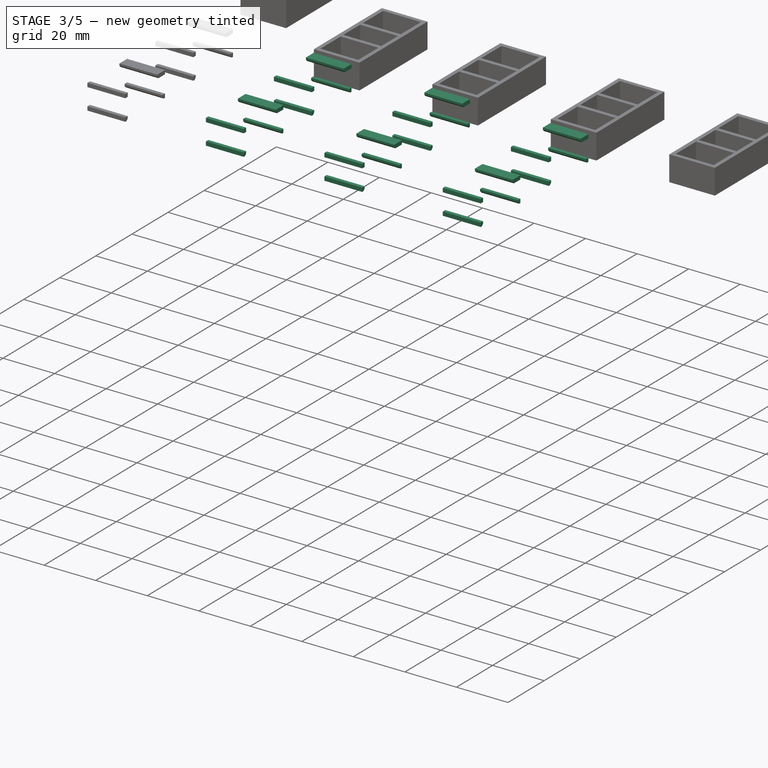
[diagram: stage 3 of 5 — iso view after this stage's code; geometry added in this stage tinted green]
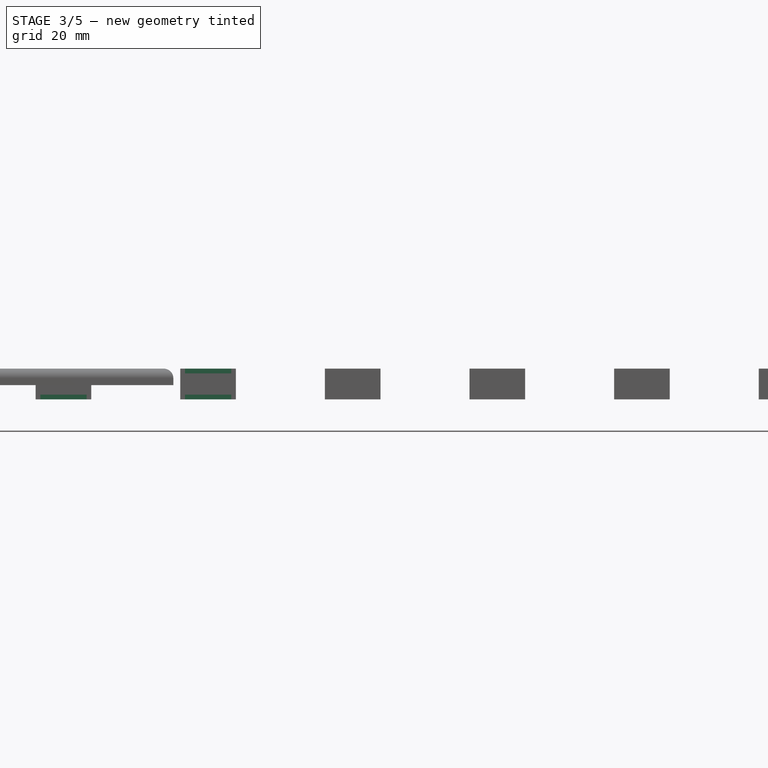
[diagram: stage 3 of 5 — front view after this stage's code; geometry added in this stage tinted green]
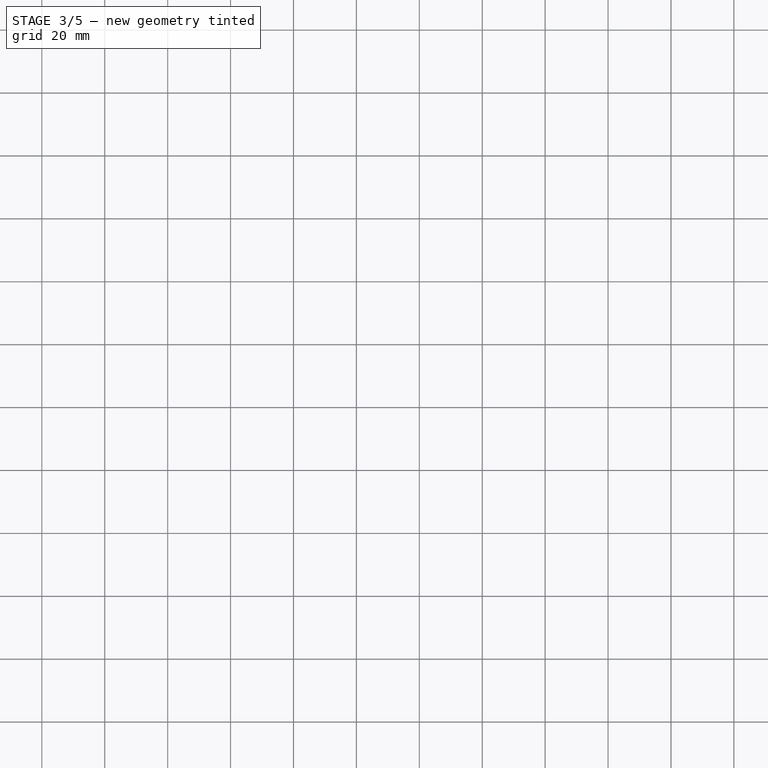
[diagram: stage 3 of 5 — top view after this stage's code; geometry added in this stage tinted green]
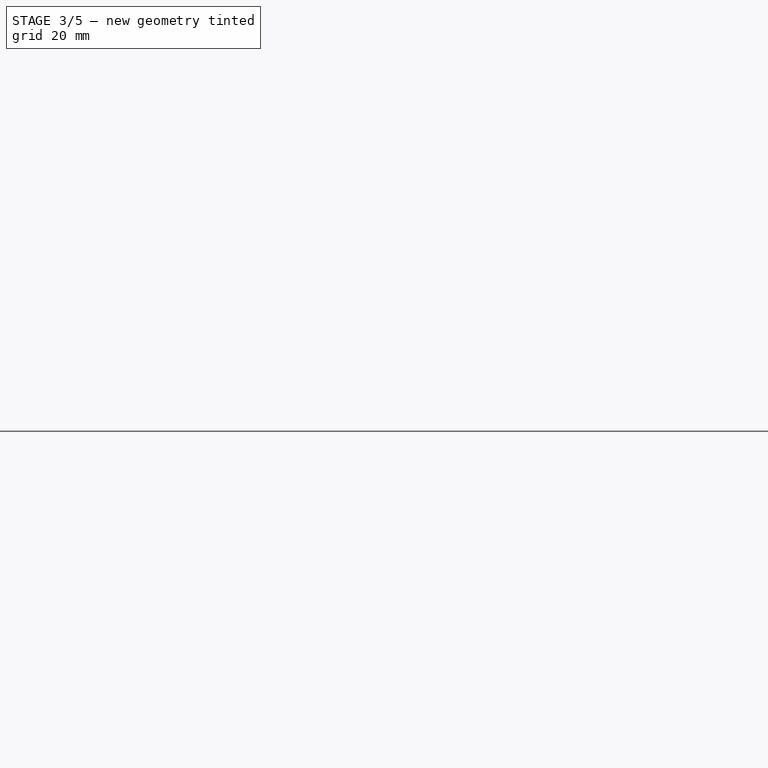
[diagram: stage 3 of 5 — right view after this stage's code; geometry added in this stage tinted green]
FEATURE [Sketcher::SketchObject] Sketch018  label="Keystone 2 Rail Sketch"
  ArcFitTolerance = 1e-06
  AttachmentOffset = pos=(342.9,-0.01,73.549) rot=(0,0,1;0rad)
  AttachmentSupport = -> [YZ_Plane]
  ExternalBSplineMaxDegree = 5
  ExternalBSplineTolerance = 0.0001
  FullyConstrained = false
  InternalTolerance = 1e-06
  InvalidShape = false
  MakeInternals = false
  MapMode = 5
  Placement = pos=(73.549,342.9,-0.01) rot=(0.57735,0.57735,0.57735;2.0944rad)
  Support = -> [YZ_Plane]
  TreeRank = 87
  ValidateShape = true
  expr: AttachmentOffset.Base.x = <<Parameters>>.Gang_2_Type == <<Keystone>> ? 0 : <<Parameters>>.Cover_Height * 3
  expr: AttachmentOffset.Base.z = <<Parameters>>.Gang_2_Offset + <<Parameters>>.Keystone_X_Position + <<Parameters>>.Keystone_Coupler_Thickness
  expr: Constraints[18] = <<Parameters>>.Keystone_Small_Overhang
  expr: Constraints[19] = <<Parameters>>.Cover_Thickness
  expr: Constraints[28] = <<Parameters>>.Keystone_Coupler_Depth - <<Parameters>>.Cover_Thickness
  expr: Constraints[38] = <<Parameters>>.Keystone_Y_Position + <<Parameters>>.Keystone_Coupler_Thickness
  expr: Constraints[39] = <<Parameters>>.Keystone_Y_Position + <<Parameters>>.Keystone_Coupler_Thickness
  expr: Constraints[40] = <<Parameters>>.Keystone_Y_Position + <<Parameters>>.Keystone_Coupler_Height - <<Parameters>>.Keystone_Coupler_Thickness
  expr: Constraints[41] = <<Parameters>>.Keystone_Y_Position + <<Parameters>>.Keystone_Coupler_Height - <<Parameters>>.Keystone_Coupler_Thickness
  expr: Constraints[76] = <<Parameters>>.Cover_Thickness
  expr: Constraints[77] = <<Parameters>>.Cover_Thickness
  expr: Constraints[78] = <<Parameters>>.Keystone_Coupler_Depth - <<Parameters>>.Cover_Thickness
  expr: Constraints[79] = <<Parameters>>.Keystone_Y_Position + <<Parameters>>.Keystone_Coupler_Height + <<Parameters>>.Keystone_Coupler_Distance + <<Parameters>>.Keystone_Coupler_Thickness
  expr: Constraints[7] = <<Parameters>>.Cover_Thickness
  expr: Constraints[80] = <<Parameters>>.Keystone_Y_Position + <<Parameters>>.Keystone_Coupler_Height + <<Parameters>>.Keystone_Coupler_Distance + <<Parameters>>.Keystone_Coupler_Thickness
  expr: Constraints[81] = <<Parameters>>.Keystone_Y_Position + 2 * <<Parameters>>.Keystone_Coupler_Height + <<Parameters>>.Keystone_Coupler_Distance - <<Parameters>>.Keystone_Coupler_Thickness
  expr: Constraints[82] = <<Parameters>>.Keystone_Y_Position + 2 * <<Parameters>>.Keystone_Coupler_Height + <<Parameters>>.Keystone_Coupler_Distance - <<Parameters>>.Keystone_Coupler_Thickness
  expr: Constraints[8] = <<Parameters>>.Keystone_Large_Overhang
  expr: Constraints[9] = <<Parameters>>.Keystone_Coupler_Thickness
  sketch-geometry (38):
    g0: LineSegment StartX=49.3 StartY=5.25 StartZ=0 EndX=45.05 EndY=5.25 EndZ=0
    g1: LineSegment StartX=45.05 StartY=5.25 StartZ=0 EndX=45.05 EndY=4.45711 EndZ=0
    g2: LineSegment StartX=45.7571 StartY=3.75 StartZ=0 EndX=49.3 EndY=3.75 EndZ=0
    g3: LineSegment StartX=49.3 StartY=3.75 StartZ=0 EndX=49.3 EndY=5.25 EndZ=0
    g4: LineSegment StartX=27.3 StartY=5.25 StartZ=0 EndX=28.65 EndY=5.25 EndZ=0
    g5: LineSegment StartX=28.65 StartY=5.25 StartZ=0 EndX=28.65 EndY=3.75 EndZ=0
    g6: LineSegment StartX=28.65 StartY=3.75 StartZ=0 EndX=27.3 EndY=3.75 EndZ=0
    g7: LineSegment StartX=27.3 StartY=3.75 StartZ=0 EndX=27.3 EndY=5.25 EndZ=0
    g8: LineSegment StartX=27.3 StartY=-3 StartZ=0 EndX=28.65 EndY=-3 EndZ=0
    g9: LineSegment StartX=28.65 StartY=-3 StartZ=0 EndX=28.65 EndY=-3.79289 EndZ=0
    g10: LineSegment StartX=27.9429 StartY=-4.5 StartZ=0 EndX=27.3 EndY=-4.5 EndZ=0
    g11: LineSegment StartX=27.3 StartY=-4.5 StartZ=0 EndX=27.3 EndY=-3 EndZ=0
    g12: LineSegment StartX=49.3 StartY=-4.5 StartZ=0 EndX=48.6571 EndY=-4.5 EndZ=0
    g13: LineSegment StartX=47.95 StartY=-3.79289 StartZ=0 EndX=47.95 EndY=-3 EndZ=0
    g14: LineSegment StartX=47.95 StartY=-3 StartZ=0 EndX=49.3 EndY=-3 EndZ=0
    g15: LineSegment StartX=49.3 StartY=-3 StartZ=0 EndX=49.3 EndY=-4.5 EndZ=0
    g16: LineSegment StartX=65 StartY=5.25 StartZ=0 EndX=66.35 EndY=5.25 EndZ=0
    g17: LineSegment StartX=66.35 StartY=5.25 StartZ=0 EndX=66.35 EndY=3.75 EndZ=0
    g18: LineSegment StartX=66.35 StartY=3.75 StartZ=0 EndX=65 EndY=3.75 EndZ=0
    g19: LineSegment StartX=65 StartY=3.75 StartZ=0 EndX=65 EndY=5.25 EndZ=0
    g20: LineSegment StartX=65 StartY=-4.5 StartZ=0 EndX=65.6429 EndY=-4.5 EndZ=0
    g21: LineSegment StartX=66.35 StartY=-3.79289 StartZ=0 EndX=66.35 EndY=-3 EndZ=0
    g22: LineSegment StartX=66.35 StartY=-3 StartZ=0 EndX=65 EndY=-3 EndZ=0
    g23: LineSegment StartX=65 StartY=-3 StartZ=0 EndX=65 EndY=-4.5 EndZ=0
    g24: LineSegment StartX=87 StartY=-4.5 StartZ=0 EndX=86.3571 EndY=-4.5 EndZ=0
    g25: LineSegment StartX=85.65 StartY=-3.79289 StartZ=0 EndX=85.65 EndY=-3 EndZ=0
    g26: LineSegment StartX=85.65 StartY=-3 StartZ=0 EndX=87 EndY=-3 EndZ=0
    g27: LineSegment StartX=87 StartY=-3 StartZ=0 EndX=87 EndY=-4.5 EndZ=0
    g28: LineSegment StartX=87 StartY=5.25 StartZ=0 EndX=82.75 EndY=5.25 EndZ=0
    g29: LineSegment StartX=82.75 StartY=5.25 StartZ=0 EndX=82.75 EndY=4.45711 EndZ=0
    g30: LineSegment StartX=83.4571 StartY=3.75 StartZ=0 EndX=87 EndY=3.75 EndZ=0
    g31: LineSegment StartX=87 StartY=3.75 StartZ=0 EndX=87 EndY=5.25 EndZ=0
    g32: LineSegment StartX=45.05 StartY=4.45711 StartZ=0 EndX=45.7571 EndY=3.75 EndZ=0
    g33: LineSegment StartX=47.95 StartY=-3.79289 StartZ=0 EndX=48.6571 EndY=-4.5 EndZ=0
    g34: LineSegment StartX=28.65 StartY=-3.79289 StartZ=0 EndX=27.9429 EndY=-4.5 EndZ=0
    g35: LineSegment StartX=66.35 StartY=-3.79289 StartZ=0 EndX=65.6429 EndY=-4.5 EndZ=0
    g36: LineSegment StartX=85.65 StartY=-3.79289 StartZ=0 EndX=86.3571 EndY=-4.5 EndZ=0
    g37: LineSegment StartX=82.75 StartY=4.45711 StartZ=0 EndX=83.4571 EndY=3.75 EndZ=0
  constraints (112):
    c: Coincident(g0,g1)
    c: Coincident(g2,g3)
    c: Coincident(g3,g0)
    c: Horizontal(g0)
    c: Horizontal(g2)
    c: Vertical(g1)
    c: Vertical(g3)
    c: DistanceY(g-1,g0) = 5.25
    c: Distance(g0) = 4.25
    c: Distance(g3) = 1.5
    c: Coincident(g4,g5)
    c: Coincident(g5,g6)
    c: Coincident(g6,g7)
    c: Coincident(g7,g4)
    c: Horizontal(g4)
    c: Horizontal(g6)
    c: Vertical(g5)
    c: Vertical(g7)
    c: Distance(g4) = 1.35
    c: DistanceY(g-1,g4) = 5.25
    c: Coincident(g8,g9)
    c: Coincident(g10,g11)
    c: Coincident(g11,g8)
    c: Horizontal(g8)
    c: Horizontal(g10)
    c: Vertical(g9)
    c: Vertical(g11)
    c: Equal(g4,g8)
    c: DistanceY(g10,g-1) = 4.5
    c: Coincident(g13,g14)
    c: Coincident(g14,g15)
    c: Coincident(g15,g12)
    c: Horizontal(g12)
    c: Horizontal(g14)
    c: Vertical(g13)
    c: Vertical(g15)
    c: Equal(g4,g14)
    c: Equal(g5,g15)
    c: DistanceX(g-1,g6) = 27.3
    c: DistanceX(g-1,g10) = 27.3
    c: DistanceX(g-1,g12) = 49.3
    c: DistanceX(g-1,g0) = 49.3
    c: Coincident(g16,g17)
    c: Coincident(g17,g18)
    c: Coincident(g18,g19)
    c: Coincident(g19,g16)
    c: Horizontal(g16)
    c: Horizontal(g18)
    c: Vertical(g17)
    c: Vertical(g19)
    c: Coincident(g21,g22)
    c: Coincident(g22,g23)
    c: Coincident(g23,g20)
    c: Horizontal(g20)
    c: Horizontal(g22)
    c: Vertical(g21)
    c: Vertical(g23)
    c: Coincident(g25,g26)
    c: Coincident(g26,g27)
    c: Coincident(g27,g24)
    c: Horizontal(g24)
    c: Horizontal(g26)
    c: Vertical(g25)
    c: Vertical(g27)
    c: Coincident(g28,g29)
    c: Coincident(g30,g31)
    c: Coincident(g31,g28)
    c: Horizontal(g28)
    c: Horizontal(g30)
    c: Vertical(g29)
    c: Vertical(g31)
    c: Equal(g5,g17)
    c: Equal(g4,g16)
    c: Equal(g4,g22)
    c: Equal(g4,g26)
    c: Equal(g0,g28)
    c: DistanceY(g-1,g16) = 5.25
    c: DistanceY(g-1,g28) = 5.25
    c: DistanceY(g20,g-1) = 4.5
    c: DistanceX(g-1,g16) = 65
    c: DistanceX(g-1,g20) = 65
    c: DistanceX(g-1,g24) = 87
    c: DistanceX(g-1,g28) = 87
    c: Distance(g32) = 1
    c: Angle(g2,g32) = 2.35619
    c: Coincident(g1,g32)
    c: Coincident(g2,g32)
    c: Distance(g33) = 1
    c: Angle(g12,g33) = 2.35619
    c: Coincident(g13,g33)
    c: Coincident(g12,g33)
    c: Distance(g34) = 1
    c: Angle(g10,g34) = 0.785398
    c: Coincident(g10,g34)
    c: Coincident(g9,g34)
    c: Distance(g35) = 1
    c: Distance(g36) = 1
    c: Distance(g37) = 1
    c: Angle(g20,g35) = 0.785398
    c: Angle(g36,g24) = 0.785398
    c: Angle(g30,g37) = 2.35619
    c: Coincident(g21,g35)
    c: Coincident(g20,g35)
    c: Coincident(g25,g36)
    c: Coincident(g24,g36)
    c: Coincident(g29,g37)
    c: Coincident(g30,g37)
    c: Equal(g7,g31)
    c: Equal(g7,g27)
    c: Equal(g7,g11)
    c: Equal(g7,g3)
    c: Equal(g5,g23)
FEATURE [PartDesign::Pad] Pad005  label="Keystone 2 Rails"
  AddSubType = 0
  AlongSketchNormal = false
  AutoTaperInnerAngle = true
  BaseFeature = -> Pad004
  CheckUpToFaceLimits = true
  ClaimChildren = false
  Direction = (1,-3e-16,3e-16)
  Fit = 0
  FitJoin = 0
  InnerFit = 0
  InnerFitJoin = 0
  InvalidShape = false
  Length = 14.7
  Length2 = 100
  Linearize = true
  NewSolid = false
  Profile = -> Sketch018
  Suppress = false
  TaperInnerAngle = 0
  TaperInnerAngleRev = 0
  TreeRank = 88
  Type = 0
  ValidateShape = true
  _ProfileBasedVersion = 1
  expr: Length = <<Parameters>>.Keystone_Coupler_Width - 2 * <<Parameters>>.Keystone_Coupler_Thickness
FEATURE [Sketcher::SketchObject] Sketch019  label="Keystone 3 Rail Sketch"
  ArcFitTolerance = 1e-06
  AttachmentOffset = pos=(342.9,-0.01,119.523) rot=(0,0,1;0rad)
  AttachmentSupport = -> [YZ_Plane]
  ExternalBSplineMaxDegree = 5
  ExternalBSplineTolerance = 0.0001
  FullyConstrained = false
  InternalTolerance = 1e-06
  InvalidShape = false
  MakeInternals = false
  MapMode = 5
  Placement = pos=(119.523,342.9,-0.01) rot=(0.57735,0.57735,0.57735;2.0944rad)
  Support = -> [YZ_Plane]
  TreeRank = 89
  ValidateShape = true
  expr: AttachmentOffset.Base.x = <<Parameters>>.Gang_3_Type == <<Keystone>> ? 0 : <<Parameters>>.Cover_Height * 3
  expr: AttachmentOffset.Base.z = <<Parameters>>.Gang_3_Offset + <<Parameters>>.Keystone_X_Position + <<Parameters>>.Keystone_Coupler_Thickness
  expr: Constraints[18] = <<Parameters>>.Keystone_Small_Overhang
  expr: Constraints[19] = <<Parameters>>.Cover_Thickness
  expr: Constraints[28] = <<Parameters>>.Keystone_Coupler_Depth - <<Parameters>>.Cover_Thickness
  expr: Constraints[38] = <<Parameters>>.Keystone_Y_Position + <<Parameters>>.Keystone_Coupler_Thickness
  expr: Constraints[39] = <<Parameters>>.Keystone_Y_Position + <<Parameters>>.Keystone_Coupler_Thickness
  expr: Constraints[40] = <<Parameters>>.Keystone_Y_Position + <<Parameters>>.Keystone_Coupler_Height - <<Parameters>>.Keystone_Coupler_Thickness
  expr: Constraints[41] = <<Parameters>>.Keystone_Y_Position + <<Parameters>>.Keystone_Coupler_Height - <<Parameters>>.Keystone_Coupler_Thickness
  expr: Constraints[76] = <<Parameters>>.Cover_Thickness
  expr: Constraints[77] = <<Parameters>>.Cover_Thickness
  expr: Constraints[78] = <<Parameters>>.Keystone_Coupler_Depth - <<Parameters>>.Cover_Thickness
  expr: Constraints[79] = <<Parameters>>.Keystone_Y_Position + <<Parameters>>.Keystone_Coupler_Height + <<Parameters>>.Keystone_Coupler_Distance + <<Parameters>>.Keystone_Coupler_Thickness
  expr: Constraints[7] = <<Parameters>>.Cover_Thickness
  expr: Constraints[80] = <<Parameters>>.Keystone_Y_Position + <<Parameters>>.Keystone_Coupler_Height + <<Parameters>>.Keystone_Coupler_Distance + <<Parameters>>.Keystone_Coupler_Thickness
  expr: Constraints[81] = <<Parameters>>.Keystone_Y_Position + 2 * <<Parameters>>.Keystone_Coupler_Height + <<Parameters>>.Keystone_Coupler_Distance - <<Parameters>>.Keystone_Coupler_Thickness
  expr: Constraints[82] = <<Parameters>>.Keystone_Y_Position + 2 * <<Parameters>>.Keystone_Coupler_Height + <<Parameters>>.Keystone_Coupler_Distance - <<Parameters>>.Keystone_Coupler_Thickness
  expr: Constraints[8] = <<Parameters>>.Keystone_Large_Overhang
  expr: Constraints[9] = <<Parameters>>.Keystone_Coupler_Thickness
  sketch-geometry (38):
    g0: LineSegment StartX=49.3 StartY=5.25 StartZ=0 EndX=45.05 EndY=5.25 EndZ=0
    g1: LineSegment StartX=45.05 StartY=5.25 StartZ=0 EndX=45.05 EndY=4.45711 EndZ=0
    g2: LineSegment StartX=45.7571 StartY=3.75 StartZ=0 EndX=49.3 EndY=3.75 EndZ=0
    g3: LineSegment StartX=49.3 StartY=3.75 StartZ=0 EndX=49.3 EndY=5.25 EndZ=0
    g4: LineSegment StartX=27.3 StartY=5.25 StartZ=0 EndX=28.65 EndY=5.25 EndZ=0
    g5: LineSegment StartX=28.65 StartY=5.25 StartZ=0 EndX=28.65 EndY=3.75 EndZ=0
    g6: LineSegment StartX=28.65 StartY=3.75 StartZ=0 EndX=27.3 EndY=3.75 EndZ=0
    g7: LineSegment StartX=27.3 StartY=3.75 StartZ=0 EndX=27.3 EndY=5.25 EndZ=0
    g8: LineSegment StartX=27.3 StartY=-3 StartZ=0 EndX=28.65 EndY=-3 EndZ=0
    g9: LineSegment StartX=28.65 StartY=-3 StartZ=0 EndX=28.65 EndY=-3.79289 EndZ=0
    g10: LineSegment StartX=27.9429 StartY=-4.5 StartZ=0 EndX=27.3 EndY=-4.5 EndZ=0
    g11: LineSegment StartX=27.3 StartY=-4.5 StartZ=0 EndX=27.3 EndY=-3 EndZ=0
    g12: LineSegment StartX=49.3 StartY=-4.5 StartZ=0 EndX=48.6571 EndY=-4.5 EndZ=0
    g13: LineSegment StartX=47.95 StartY=-3.79289 StartZ=0 EndX=47.95 EndY=-3 EndZ=0
    g14: LineSegment StartX=47.95 StartY=-3 StartZ=0 EndX=49.3 EndY=-3 EndZ=0
    g15: LineSegment StartX=49.3 StartY=-3 StartZ=0 EndX=49.3 EndY=-4.5 EndZ=0
    g16: LineSegment StartX=65 StartY=5.25 StartZ=0 EndX=66.35 EndY=5.25 EndZ=0
    g17: LineSegment StartX=66.35 StartY=5.25 StartZ=0 EndX=66.35 EndY=3.75 EndZ=0
    g18: LineSegment StartX=66.35 StartY=3.75 StartZ=0 EndX=65 EndY=3.75 EndZ=0
    g19: LineSegment StartX=65 StartY=3.75 StartZ=0 EndX=65 EndY=5.25 EndZ=0
    g20: LineSegment StartX=65 StartY=-4.5 StartZ=0 EndX=65.6429 EndY=-4.5 EndZ=0
    g21: LineSegment StartX=66.35 StartY=-3.79289 StartZ=0 EndX=66.35 EndY=-3 EndZ=0
    g22: LineSegment StartX=66.35 StartY=-3 StartZ=0 EndX=65 EndY=-3 EndZ=0
    g23: LineSegment StartX=65 StartY=-3 StartZ=0 EndX=65 EndY=-4.5 EndZ=0
    g24: LineSegment StartX=87 StartY=-4.5 StartZ=0 EndX=86.3571 EndY=-4.5 EndZ=0
    g25: LineSegment StartX=85.65 StartY=-3.79289 StartZ=0 EndX=85.65 EndY=-3 EndZ=0
    g26: LineSegment StartX=85.65 StartY=-3 StartZ=0 EndX=87 EndY=-3 EndZ=0
    g27: LineSegment StartX=87 StartY=-3 StartZ=0 EndX=87 EndY=-4.5 EndZ=0
    g28: LineSegment StartX=87 StartY=5.25 StartZ=0 EndX=82.75 EndY=5.25 EndZ=0
    g29: LineSegment StartX=82.75 StartY=5.25 StartZ=0 EndX=82.75 EndY=4.45711 EndZ=0
    g30: LineSegment StartX=83.4571 StartY=3.75 StartZ=0 EndX=87 EndY=3.75 EndZ=0
    g31: LineSegment StartX=87 StartY=3.75 StartZ=0 EndX=87 EndY=5.25 EndZ=0
    g32: LineSegment StartX=45.05 StartY=4.45711 StartZ=0 EndX=45.7571 EndY=3.75 EndZ=0
    g33: LineSegment StartX=47.95 StartY=-3.79289 StartZ=0 EndX=48.6571 EndY=-4.5 EndZ=0
    g34: LineSegment StartX=28.65 StartY=-3.79289 StartZ=0 EndX=27.9429 EndY=-4.5 EndZ=0
    g35: LineSegment StartX=66.35 StartY=-3.79289 StartZ=0 EndX=65.6429 EndY=-4.5 EndZ=0
    g36: LineSegment StartX=85.65 StartY=-3.79289 StartZ=0 EndX=86.3571 EndY=-4.5 EndZ=0
    g37: LineSegment StartX=82.75 StartY=4.45711 StartZ=0 EndX=83.4571 EndY=3.75 EndZ=0
  constraints (112):
    c: Coincident(g0,g1)
    c: Coincident(g2,g3)
    c: Coincident(g3,g0)
    c: Horizontal(g0)
    c: Horizontal(g2)
    c: Vertical(g1)
    c: Vertical(g3)
    c: DistanceY(g-1,g0) = 5.25
    c: Distance(g0) = 4.25
    c: Distance(g3) = 1.5
    c: Coincident(g4,g5)
    c: Coincident(g5,g6)
    c: Coincident(g6,g7)
    c: Coincident(g7,g4)
    c: Horizontal(g4)
    c: Horizontal(g6)
    c: Vertical(g5)
    c: Vertical(g7)
    c: Distance(g4) = 1.35
    c: DistanceY(g-1,g4) = 5.25
    c: Coincident(g8,g9)
    c: Coincident(g10,g11)
    c: Coincident(g11,g8)
    c: Horizontal(g8)
    c: Horizontal(g10)
    c: Vertical(g9)
    c: Vertical(g11)
    c: Equal(g4,g8)
    c: DistanceY(g10,g-1) = 4.5
    c: Coincident(g13,g14)
    c: Coincident(g14,g15)
    c: Coincident(g15,g12)
    c: Horizontal(g12)
    c: Horizontal(g14)
    c: Vertical(g13)
    c: Vertical(g15)
    c: Equal(g4,g14)
    c: Equal(g5,g15)
    c: DistanceX(g-1,g6) = 27.3
    c: DistanceX(g-1,g10) = 27.3
    c: DistanceX(g-1,g12) = 49.3
    c: DistanceX(g-1,g0) = 49.3
    c: Coincident(g16,g17)
    c: Coincident(g17,g18)
    c: Coincident(g18,g19)
    c: Coincident(g19,g16)
    c: Horizontal(g16)
    c: Horizontal(g18)
    c: Vertical(g17)
    c: Vertical(g19)
    c: Coincident(g21,g22)
    c: Coincident(g22,g23)
    c: Coincident(g23,g20)
    c: Horizontal(g20)
    c: Horizontal(g22)
    c: Vertical(g21)
    c: Vertical(g23)
    c: Coincident(g25,g26)
    c: Coincident(g26,g27)
    c: Coincident(g27,g24)
    c: Horizontal(g24)
    c: Horizontal(g26)
    c: Vertical(g25)
    c: Vertical(g27)
    c: Coincident(g28,g29)
    c: Coincident(g30,g31)
    c: Coincident(g31,g28)
    c: Horizontal(g28)
    c: Horizontal(g30)
    c: Vertical(g29)
    c: Vertical(g31)
    c: Equal(g5,g17)
    c: Equal(g4,g16)
    c: Equal(g4,g22)
    c: Equal(g4,g26)
    c: Equal(g0,g28)
    c: DistanceY(g-1,g16) = 5.25
    c: DistanceY(g-1,g28) = 5.25
    c: DistanceY(g20,g-1) = 4.5
    c: DistanceX(g-1,g16) = 65
    c: DistanceX(g-1,g20) = 65
    c: DistanceX(g-1,g24) = 87
    c: DistanceX(g-1,g28) = 87
    c: Distance(g32) = 1
    c: Angle(g2,g32) = 2.35619
    c: Coincident(g1,g32)
    c: Coincident(g2,g32)
    c: Distance(g33) = 1
    c: Angle(g12,g33) = 2.35619
    c: Coincident(g13,g33)
    c: Coincident(g12,g33)
    c: Distance(g34) = 1
    c: Angle(g10,g34) = 0.785398
    c: Coincident(g10,g34)
    c: Coincident(g9,g34)
    c: Distance(g35) = 1
    c: Distance(g36) = 1
    c: Distance(g37) = 1
    c: Angle(g20,g35) = 0.785398
    c: Angle(g36,g24) = 0.785398
    c: Angle(g30,g37) = 2.35619
    c: Coincident(g21,g35)
    c: Coincident(g20,g35)
    c: Coincident(g25,g36)
    c: Coincident(g24,g36)
    c: Coincident(g29,g37)
    c: Coincident(g30,g37)
    c: Equal(g7,g31)
    c: Equal(g7,g27)
    c: Equal(g7,g11)
    c: Equal(g7,g3)
    c: Equal(g5,g23)
FEATURE [PartDesign::Pad] Pad006  label="Keystone 3 Rails"
  AddSubType = 0
  AlongSketchNormal = false
  AutoTaperInnerAngle = true
  BaseFeature = -> Pad005
  CheckUpToFaceLimits = true
  ClaimChildren = false
  Direction = (1,-3e-16,3e-16)
  Fit = 0
  FitJoin = 0
  InnerFit = 0
  InnerFitJoin = 0
  InvalidShape = false
  Length = 14.7
  Length2 = 100
  Linearize = true
  NewSolid = false
  Profile = -> Sketch019
  Suppress = false
  TaperInnerAngle = 0
  TaperInnerAngleRev = 0
  TreeRank = 92
  Type = 0
  ValidateShape = true
  _ProfileBasedVersion = 1
  expr: Length = <<Parameters>>.Keystone_Coupler_Width - 2 * <<Parameters>>.Keystone_Coupler_Thickness
FEATURE [Sketcher::SketchObject] Sketch020  label="Keystone 4 Rail Sketch"
  ArcFitTolerance = 1e-06
  AttachmentOffset = pos=(342.9,-0.01,165.497) rot=(0,0,1;0rad)
  AttachmentSupport = -> [YZ_Plane]
  ExternalBSplineMaxDegree = 5
  ExternalBSplineTolerance = 0.0001
  FullyConstrained = false
  InternalTolerance = 1e-06
  InvalidShape = false
  MakeInternals = false
  MapMode = 5
  Placement = pos=(165.497,342.9,-0.01) rot=(0.57735,0.57735,0.57735;2.0944rad)
  Support = -> [YZ_Plane]
  TreeRank = 93
  ValidateShape = true
  expr: AttachmentOffset.Base.x = <<Parameters>>.Gang_4_Type == <<Keystone>> ? 0 : <<Parameters>>.Cover_Height * 3
  expr: AttachmentOffset.Base.z = <<Parameters>>.Gang_4_Offset + <<Parameters>>.Keystone_X_Position + <<Parameters>>.Keystone_Coupler_Thickness
  expr: Constraints[18] = <<Parameters>>.Keystone_Small_Overhang
  expr: Constraints[19] = <<Parameters>>.Cover_Thickness
  expr: Constraints[28] = <<Parameters>>.Keystone_Coupler_Depth - <<Parameters>>.Cover_Thickness
  expr: Constraints[38] = <<Parameters>>.Keystone_Y_Position + <<Parameters>>.Keystone_Coupler_Thickness
  expr: Constraints[39] = <<Parameters>>.Keystone_Y_Position + <<Parameters>>.Keystone_Coupler_Thickness
  expr: Constraints[40] = <<Parameters>>.Keystone_Y_Position + <<Parameters>>.Keystone_Coupler_Height - <<Parameters>>.Keystone_Coupler_Thickness
  expr: Constraints[41] = <<Parameters>>.Keystone_Y_Position + <<Parameters>>.Keystone_Coupler_Height - <<Parameters>>.Keystone_Coupler_Thickness
  expr: Constraints[76] = <<Parameters>>.Cover_Thickness
  expr: Constraints[77] = <<Parameters>>.Cover_Thickness
  expr: Constraints[78] = <<Parameters>>.Keystone_Coupler_Depth - <<Parameters>>.Cover_Thickness
  expr: Constraints[79] = <<Parameters>>.Keystone_Y_Position + <<Parameters>>.Keystone_Coupler_Height + <<Parameters>>.Keystone_Coupler_Distance + <<Parameters>>.Keystone_Coupler_Thickness
  expr: Constraints[7] = <<Parameters>>.Cover_Thickness
  expr: Constraints[80] = <<Parameters>>.Keystone_Y_Position + <<Parameters>>.Keystone_Coupler_Height + <<Parameters>>.Keystone_Coupler_Distance + <<Parameters>>.Keystone_Coupler_Thickness
  expr: Constraints[81] = <<Parameters>>.Keystone_Y_Position + 2 * <<Parameters>>.Keystone_Coupler_Height + <<Parameters>>.Keystone_Coupler_Distance - <<Parameters>>.Keystone_Coupler_Thickness
  expr: Constraints[82] = <<Parameters>>.Keystone_Y_Position + 2 * <<Parameters>>.Keystone_Coupler_Height + <<Parameters>>.Keystone_Coupler_Distance - <<Parameters>>.Keystone_Coupler_Thickness
  expr: Constraints[8] = <<Parameters>>.Keystone_Large_Overhang
  expr: Constraints[9] = <<Parameters>>.Keystone_Coupler_Thickness
  sketch-geometry (38):
    g0: LineSegment StartX=49.3 StartY=5.25 StartZ=0 EndX=45.05 EndY=5.25 EndZ=0
    g1: LineSegment StartX=45.05 StartY=5.25 StartZ=0 EndX=45.05 EndY=4.45711 EndZ=0
    g2: LineSegment StartX=45.7571 StartY=3.75 StartZ=0 EndX=49.3 EndY=3.75 EndZ=0
    g3: LineSegment StartX=49.3 StartY=3.75 StartZ=0 EndX=49.3 EndY=5.25 EndZ=0
    g4: LineSegment StartX=27.3 StartY=5.25 StartZ=0 EndX=28.65 EndY=5.25 EndZ=0
    g5: LineSegment StartX=28.65 StartY=5.25 StartZ=0 EndX=28.65 EndY=3.75 EndZ=0
    g6: LineSegment StartX=28.65 StartY=3.75 StartZ=0 EndX=27.3 EndY=3.75 EndZ=0
    g7: LineSegment StartX=27.3 StartY=3.75 StartZ=0 EndX=27.3 EndY=5.25 EndZ=0
    g8: LineSegment StartX=27.3 StartY=-3 StartZ=0 EndX=28.65 EndY=-3 EndZ=0
    g9: LineSegment StartX=28.65 StartY=-3 StartZ=0 EndX=28.65 EndY=-3.79289 EndZ=0
    g10: LineSegment StartX=27.9429 StartY=-4.5 StartZ=0 EndX=27.3 EndY=-4.5 EndZ=0
    g11: LineSegment StartX=27.3 StartY=-4.5 StartZ=0 EndX=27.3 EndY=-3 EndZ=0
    g12: LineSegment StartX=49.3 StartY=-4.5 StartZ=0 EndX=48.6571 EndY=-4.5 EndZ=0
    g13: LineSegment StartX=47.95 StartY=-3.79289 StartZ=0 EndX=47.95 EndY=-3 EndZ=0
    g14: LineSegment StartX=47.95 StartY=-3 StartZ=0 EndX=49.3 EndY=-3 EndZ=0
    g15: LineSegment StartX=49.3 StartY=-3 StartZ=0 EndX=49.3 EndY=-4.5 EndZ=0
    g16: LineSegment StartX=65 StartY=5.25 StartZ=0 EndX=66.35 EndY=5.25 EndZ=0
    g17: LineSegment StartX=66.35 StartY=5.25 StartZ=0 EndX=66.35 EndY=3.75 EndZ=0
    g18: LineSegment StartX=66.35 StartY=3.75 StartZ=0 EndX=65 EndY=3.75 EndZ=0
    g19: LineSegment StartX=65 StartY=3.75 StartZ=0 EndX=65 EndY=5.25 EndZ=0
    g20: LineSegment StartX=65 StartY=-4.5 StartZ=0 EndX=65.6429 EndY=-4.5 EndZ=0
    g21: LineSegment StartX=66.35 StartY=-3.79289 StartZ=0 EndX=66.35 EndY=-3 EndZ=0
    g22: LineSegment StartX=66.35 StartY=-3 StartZ=0 EndX=65 EndY=-3 EndZ=0
    g23: LineSegment StartX=65 StartY=-3 StartZ=0 EndX=65 EndY=-4.5 EndZ=0
    g24: LineSegment StartX=87 StartY=-4.5 StartZ=0 EndX=86.3571 EndY=-4.5 EndZ=0
    g25: LineSegment StartX=85.65 StartY=-3.79289 StartZ=0 EndX=85.65 EndY=-3 EndZ=0
    g26: LineSegment StartX=85.65 StartY=-3 StartZ=0 EndX=87 EndY=-3 EndZ=0
    g27: LineSegment StartX=87 StartY=-3 StartZ=0 EndX=87 EndY=-4.5 EndZ=0
    g28: LineSegment StartX=87 StartY=5.25 StartZ=0 EndX=82.75 EndY=5.25 EndZ=0
    g29: LineSegment StartX=82.75 StartY=5.25 StartZ=0 EndX=82.75 EndY=4.45711 EndZ=0
    g30: LineSegment StartX=83.4571 StartY=3.75 StartZ=0 EndX=87 EndY=3.75 EndZ=0
    g31: LineSegment StartX=87 StartY=3.75 StartZ=0 EndX=87 EndY=5.25 EndZ=0
    g32: LineSegment StartX=45.05 StartY=4.45711 StartZ=0 EndX=45.7571 EndY=3.75 EndZ=0
    g33: LineSegment StartX=47.95 StartY=-3.79289 StartZ=0 EndX=48.6571 EndY=-4.5 EndZ=0
    g34: LineSegment StartX=28.65 StartY=-3.79289 StartZ=0 EndX=27.9429 EndY=-4.5 EndZ=0
    g35: LineSegment StartX=66.35 StartY=-3.79289 StartZ=0 EndX=65.6429 EndY=-4.5 EndZ=0
    g36: LineSegment StartX=85.65 StartY=-3.79289 StartZ=0 EndX=86.3571 EndY=-4.5 EndZ=0
    g37: LineSegment StartX=82.75 StartY=4.45711 StartZ=0 EndX=83.4571 EndY=3.75 EndZ=0
  constraints (112):
    c: Coincident(g0,g1)
    c: Coincident(g2,g3)
    c: Coincident(g3,g0)
    c: Horizontal(g0)
    c: Horizontal(g2)
    c: Vertical(g1)
    c: Vertical(g3)
    c: DistanceY(g-1,g0) = 5.25
    c: Distance(g0) = 4.25
    c: Distance(g3) = 1.5
    c: Coincident(g4,g5)
    c: Coincident(g5,g6)
    c: Coincident(g6,g7)
    c: Coincident(g7,g4)
    c: Horizontal(g4)
    c: Horizontal(g6)
    c: Vertical(g5)
    c: Vertical(g7)
    c: Distance(g4) = 1.35
    c: DistanceY(g-1,g4) = 5.25
    c: Coincident(g8,g9)
    c: Coincident(g10,g11)
    c: Coincident(g11,g8)
    c: Horizontal(g8)
    c: Horizontal(g10)
    c: Vertical(g9)
    c: Vertical(g11)
    c: Equal(g4,g8)
    c: DistanceY(g10,g-1) = 4.5
    c: Coincident(g13,g14)
    c: Coincident(g14,g15)
    c: Coincident(g15,g12)
    c: Horizontal(g12)
    c: Horizontal(g14)
    c: Vertical(g13)
    c: Vertical(g15)
    c: Equal(g4,g14)
    c: Equal(g5,g15)
    c: DistanceX(g-1,g6) = 27.3
    c: DistanceX(g-1,g10) = 27.3
    c: DistanceX(g-1,g12) = 49.3
    c: DistanceX(g-1,g0) = 49.3
    c: Coincident(g16,g17)
    c: Coincident(g17,g18)
    c: Coincident(g18,g19)
    c: Coincident(g19,g16)
    c: Horizontal(g16)
    c: Horizontal(g18)
    c: Vertical(g17)
    c: Vertical(g19)
    c: Coincident(g21,g22)
    c: Coincident(g22,g23)
    c: Coincident(g23,g20)
    c: Horizontal(g20)
    c: Horizontal(g22)
    c: Vertical(g21)
    c: Vertical(g23)
    c: Coincident(g25,g26)
    c: Coincident(g26,g27)
    c: Coincident(g27,g24)
    c: Horizontal(g24)
    c: Horizontal(g26)
    c: Vertical(g25)
    c: Vertical(g27)
    c: Coincident(g28,g29)
    c: Coincident(g30,g31)
    c: Coincident(g31,g28)
    c: Horizontal(g28)
    c: Horizontal(g30)
    c: Vertical(g29)
    c: Vertical(g31)
    c: Equal(g5,g17)
    c: Equal(g4,g16)
    c: Equal(g4,g22)
    c: Equal(g4,g26)
    c: Equal(g0,g28)
    c: DistanceY(g-1,g16) = 5.25
    c: DistanceY(g-1,g28) = 5.25
    c: DistanceY(g20,g-1) = 4.5
    c: DistanceX(g-1,g16) = 65
    c: DistanceX(g-1,g20) = 65
    c: DistanceX(g-1,g24) = 87
    c: DistanceX(g-1,g28) = 87
    c: Distance(g32) = 1
    c: Angle(g2,g32) = 2.35619
    c: Coincident(g1,g32)
    c: Coincident(g2,g32)
    c: Distance(g33) = 1
    c: Angle(g12,g33) = 2.35619
    c: Coincident(g13,g33)
    c: Coincident(g12,g33)
    c: Distance(g34) = 1
    c: Angle(g10,g34) = 0.785398
    c: Coincident(g10,g34)
    c: Coincident(g9,g34)
    c: Distance(g35) = 1
    c: Distance(g36) = 1
    c: Distance(g37) = 1
    c: Angle(g20,g35) = 0.785398
    c: Angle(g36,g24) = 0.785398
    c: Angle(g30,g37) = 2.35619
    c: Coincident(g21,g35)
    c: Coincident(g20,g35)
    c: Coincident(g25,g36)
    c: Coincident(g24,g36)
    c: Coincident(g29,g37)
    c: Coincident(g30,g37)
    c: Equal(g7,g31)
    c: Equal(g7,g27)
    c: Equal(g7,g11)
    c: Equal(g7,g3)
    c: Equal(g5,g23)
FEATURE [PartDesign::Pad] Pad007  label="Keystone 4 Rails"
  AddSubType = 0
  AlongSketchNormal = false
  AutoTaperInnerAngle = true
  BaseFeature = -> Pad006
  CheckUpToFaceLimits = true
  ClaimChildren = false
  Direction = (1,-3e-16,3e-16)
  Fit = 0
  FitJoin = 0
  InnerFit = 0
  InnerFitJoin = 0
  InvalidShape = false
  Length = 14.7
  Length2 = 100
  Linearize = true
  NewSolid = false
  Profile = -> Sketch020
  Suppress = false
  TaperInnerAngle = 0
  TaperInnerAngleRev = 0
  TreeRank = 94
  Type = 0
  ValidateShape = true
  _ProfileBasedVersion = 1
  expr: Length = <<Parameters>>.Keystone_Coupler_Width - 2 * <<Parameters>>.Keystone_Coupler_Thickness
FEATURE [Sketcher::SketchObject] Sketch021  label="Keystone 1 Rail Sketch001"
  ArcFitTolerance = 1e-06
  AttachmentOffset = pos=(342.9,-0.01,27.575) rot=(0,0,1;0rad)
  AttachmentSupport = -> [YZ_Plane]
  ExternalBSplineMaxDegree = 5
  ExternalBSplineTolerance = 0.0001
  FullyConstrained = false
  InternalTolerance = 1e-06
  InvalidShape = false
  MakeInternals = false
  MapMode = 5
  Placement = pos=(27.575,342.9,-0.01) rot=(0.57735,0.57735,0.57735;2.0944rad)
  Support = -> [YZ_Plane]
  TreeRank = 95
  ValidateShape = true
  expr: AttachmentOffset.Base.x = <<Parameters>>.Gang_1_Type == <<Keystone>> ? 0 : <<Parameters>>.Cover_Height * 3
  expr: AttachmentOffset.Base.z = <<Parameters>>.Gang_1_Offset + <<Parameters>>.Keystone_X_Position + <<Parameters>>.Keystone_Coupler_Thickness
  expr: Constraints[18] = <<Parameters>>.Keystone_Small_Overhang
  expr: Constraints[19] = <<Parameters>>.Cover_Thickness
  expr: Constraints[28] = <<Parameters>>.Keystone_Coupler_Depth - <<Parameters>>.Cover_Thickness
  expr: Constraints[38] = <<Parameters>>.Keystone_Y_Position + <<Parameters>>.Keystone_Coupler_Thickness
  expr: Constraints[39] = <<Parameters>>.Keystone_Y_Position + <<Parameters>>.Keystone_Coupler_Thickness
  expr: Constraints[40] = <<Parameters>>.Keystone_Y_Position + <<Parameters>>.Keystone_Coupler_Height - <<Parameters>>.Keystone_Coupler_Thickness
  expr: Constraints[41] = <<Parameters>>.Keystone_Y_Position + <<Parameters>>.Keystone_Coupler_Height - <<Parameters>>.Keystone_Coupler_Thickness
  expr: Constraints[76] = <<Parameters>>.Cover_Thickness
  expr: Constraints[77] = <<Parameters>>.Cover_Thickness
  expr: Constraints[78] = <<Parameters>>.Keystone_Coupler_Depth - <<Parameters>>.Cover_Thickness
  expr: Constraints[79] = <<Parameters>>.Keystone_Y_Position + <<Parameters>>.Keystone_Coupler_Height + <<Parameters>>.Keystone_Coupler_Distance + <<Parameters>>.Keystone_Coupler_Thickness
  expr: Constraints[7] = <<Parameters>>.Cover_Thickness
  expr: Constraints[80] = <<Parameters>>.Keystone_Y_Position + <<Parameters>>.Keystone_Coupler_Height + <<Parameters>>.Keystone_Coupler_Distance + <<Parameters>>.Keystone_Coupler_Thickness
  expr: Constraints[81] = <<Parameters>>.Keystone_Y_Position + 2 * <<Parameters>>.Keystone_Coupler_Height + <<Parameters>>.Keystone_Coupler_Distance - <<Parameters>>.Keystone_Coupler_Thickness
  expr: Constraints[82] = <<Parameters>>.Keystone_Y_Position + 2 * <<Parameters>>.Keystone_Coupler_Height + <<Parameters>>.Keystone_Coupler_Distance - <<Parameters>>.Keystone_Coupler_Thickness
  expr: Constraints[8] = <<Parameters>>.Keystone_Large_Overhang
  expr: Constraints[9] = <<Parameters>>.Keystone_Coupler_Thickness
  sketch-geometry (38):
    g0: LineSegment StartX=49.3 StartY=5.25 StartZ=0 EndX=45.05 EndY=5.25 EndZ=0
    g1: LineSegment StartX=45.05 StartY=5.25 StartZ=0 EndX=45.05 EndY=4.45711 EndZ=0
    g2: LineSegment StartX=45.7571 StartY=3.75 StartZ=0 EndX=49.3 EndY=3.75 EndZ=0
    g3: LineSegment StartX=49.3 StartY=3.75 StartZ=0 EndX=49.3 EndY=5.25 EndZ=0
    g4: LineSegment StartX=27.3 StartY=5.25 StartZ=0 EndX=28.65 EndY=5.25 EndZ=0
    g5: LineSegment StartX=28.65 StartY=5.25 StartZ=0 EndX=28.65 EndY=3.75 EndZ=0
    g6: LineSegment StartX=28.65 StartY=3.75 StartZ=0 EndX=27.3 EndY=3.75 EndZ=0
    g7: LineSegment StartX=27.3 StartY=3.75 StartZ=0 EndX=27.3 EndY=5.25 EndZ=0
    g8: LineSegment StartX=27.3 StartY=-3 StartZ=0 EndX=28.65 EndY=-3 EndZ=0
    g9: LineSegment StartX=28.65 StartY=-3 StartZ=0 EndX=28.65 EndY=-3.79289 EndZ=0
    g10: LineSegment StartX=27.9429 StartY=-4.5 StartZ=0 EndX=27.3 EndY=-4.5 EndZ=0
    g11: LineSegment StartX=27.3 StartY=-4.5 StartZ=0 EndX=27.3 EndY=-3 EndZ=0
    g12: LineSegment StartX=49.3 StartY=-4.5 StartZ=0 EndX=48.6571 EndY=-4.5 EndZ=0
    g13: LineSegment StartX=47.95 StartY=-3.79289 StartZ=0 EndX=47.95 EndY=-3 EndZ=0
    g14: LineSegment StartX=47.95 StartY=-3 StartZ=0 EndX=49.3 EndY=-3 EndZ=0
    g15: LineSegment StartX=49.3 StartY=-3 StartZ=0 EndX=49.3 EndY=-4.5 EndZ=0
    g16: LineSegment StartX=65 StartY=5.25 StartZ=0 EndX=66.35 EndY=5.25 EndZ=0
    g17: LineSegment StartX=66.35 StartY=5.25 StartZ=0 EndX=66.35 EndY=3.75 EndZ=0
    g18: LineSegment StartX=66.35 StartY=3.75 StartZ=0 EndX=65 EndY=3.75 EndZ=0
    g19: LineSegment StartX=65 StartY=3.75 StartZ=0 EndX=65 EndY=5.25 EndZ=0
    g20: LineSegment StartX=65 StartY=-4.5 StartZ=0 EndX=65.6429 EndY=-4.5 EndZ=0
    g21: LineSegment StartX=66.35 StartY=-3.79289 StartZ=0 EndX=66.35 EndY=-3 EndZ=0
    g22: LineSegment StartX=66.35 StartY=-3 StartZ=0 EndX=65 EndY=-3 EndZ=0
    g23: LineSegment StartX=65 StartY=-3 StartZ=0 EndX=65 EndY=-4.5 EndZ=0
    g24: LineSegment StartX=87 StartY=-4.5 StartZ=0 EndX=86.3571 EndY=-4.5 EndZ=0
    g25: LineSegment StartX=85.65 StartY=-3.79289 StartZ=0 EndX=85.65 EndY=-3 EndZ=0
    g26: LineSegment StartX=85.65 StartY=-3 StartZ=0 EndX=87 EndY=-3 EndZ=0
    g27: LineSegment StartX=87 StartY=-3 StartZ=0 EndX=87 EndY=-4.5 EndZ=0
    g28: LineSegment StartX=87 StartY=5.25 StartZ=0 EndX=82.75 EndY=5.25 EndZ=0
    g29: LineSegment StartX=82.75 StartY=5.25 StartZ=0 EndX=82.75 EndY=4.45711 EndZ=0
    g30: LineSegment StartX=83.4571 StartY=3.75 StartZ=0 EndX=87 EndY=3.75 EndZ=0
    g31: LineSegment StartX=87 StartY=3.75 StartZ=0 EndX=87 EndY=5.25 EndZ=0
    g32: LineSegment StartX=45.05 StartY=4.45711 StartZ=0 EndX=45.7571 EndY=3.75 EndZ=0
    g33: LineSegment StartX=47.95 StartY=-3.79289 StartZ=0 EndX=48.6571 EndY=-4.5 EndZ=0
    g34: LineSegment StartX=28.65 StartY=-3.79289 StartZ=0 EndX=27.9429 EndY=-4.5 EndZ=0
    g35: LineSegment StartX=66.35 StartY=-3.79289 StartZ=0 EndX=65.6429 EndY=-4.5 EndZ=0
    g36: LineSegment StartX=85.65 StartY=-3.79289 StartZ=0 EndX=86.3571 EndY=-4.5 EndZ=0
    g37: LineSegment StartX=82.75 StartY=4.45711 StartZ=0 EndX=83.4571 EndY=3.75 EndZ=0
  constraints (112):
    c: Coincident(g0,g1)
    c: Coincident(g2,g3)
    c: Coincident(g3,g0)
    c: Horizontal(g0)
    c: Horizontal(g2)
    c: Vertical(g1)
    c: Vertical(g3)
    c: DistanceY(g-1,g0) = 5.25
    c: Distance(g0) = 4.25
    c: Distance(g3) = 1.5
    c: Coincident(g4,g5)
    c: Coincident(g5,g6)
    c: Coincident(g6,g7)
    c: Coincident(g7,g4)
    c: Horizontal(g4)
    c: Horizontal(g6)
    c: Vertical(g5)
    c: Vertical(g7)
    c: Distance(g4) = 1.35
    c: DistanceY(g-1,g4) = 5.25
    c: Coincident(g8,g9)
    c: Coincident(g10,g11)
    c: Coincident(g11,g8)
    c: Horizontal(g8)
    c: Horizontal(g10)
    c: Vertical(g9)
    c: Vertical(g11)
    c: Equal(g4,g8)
    c: DistanceY(g10,g-1) = 4.5
    c: Coincident(g13,g14)
    c: Coincident(g14,g15)
    c: Coincident(g15,g12)
    c: Horizontal(g12)
    c: Horizontal(g14)
    c: Vertical(g13)
    c: Vertical(g15)
    c: Equal(g4,g14)
    c: Equal(g5,g15)
    c: DistanceX(g-1,g6) = 27.3
    c: DistanceX(g-1,g10) = 27.3
    c: DistanceX(g-1,g12) = 49.3
    c: DistanceX(g-1,g0) = 49.3
    c: Coincident(g16,g17)
    c: Coincident(g17,g18)
    c: Coincident(g18,g19)
    c: Coincident(g19,g16)
    c: Horizontal(g16)
    c: Horizontal(g18)
    c: Vertical(g17)
    c: Vertical(g19)
    c: Coincident(g21,g22)
    c: Coincident(g22,g23)
    c: Coincident(g23,g20)
    c: Horizontal(g20)
    c: Horizontal(g22)
    c: Vertical(g21)
    c: Vertical(g23)
    c: Coincident(g25,g26)
    c: Coincident(g26,g27)
    c: Coincident(g27,g24)
    c: Horizontal(g24)
    c: Horizontal(g26)
    c: Vertical(g25)
    c: Vertical(g27)
    c: Coincident(g28,g29)
    c: Coincident(g30,g31)
    c: Coincident(g31,g28)
    c: Horizontal(g28)
    c: Horizontal(g30)
    c: Vertical(g29)
    c: Vertical(g31)
    c: Equal(g5,g17)
    c: Equal(g4,g16)
    c: Equal(g4,g22)
    c: Equal(g4,g26)
    c: Equal(g0,g28)
    c: DistanceY(g-1,g16) = 5.25
    c: DistanceY(g-1,g28) = 5.25
    c: DistanceY(g20,g-1) = 4.5
    c: DistanceX(g-1,g16) = 65
    c: DistanceX(g-1,g20) = 65
    c: DistanceX(g-1,g24) = 87
    c: DistanceX(g-1,g28) = 87
    c: Distance(g32) = 1
    c: Angle(g2,g32) = 2.35619
    c: Coincident(g1,g32)
    c: Coincident(g2,g32)
    c: Distance(g33) = 1
    c: Angle(g12,g33) = 2.35619
    c: Coincident(g13,g33)
    c: Coincident(g12,g33)
    c: Distance(g34) = 1
    c: Angle(g10,g34) = 0.785398
    c: Coincident(g10,g34)
    c: Coincident(g9,g34)
    c: Distance(g35) = 1
    c: Distance(g36) = 1
    c: Distance(g37) = 1
    c: Angle(g20,g35) = 0.785398
    c: Angle(g36,g24) = 0.785398
    c: Angle(g30,g37) = 2.35619
    c: Coincident(g21,g35)
    c: Coincident(g20,g35)
    c: Coincident(g25,g36)
    c: Coincident(g24,g36)
    c: Coincident(g29,g37)
    c: Coincident(g30,g37)
    c: Equal(g7,g31)
    c: Equal(g7,g27)
    c: Equal(g7,g11)
    c: Equal(g7,g3)
    c: Equal(g5,g23)
FEATURE [PartDesign::Pad] Pad008  label="Keystone 5 Rails"
  AddSubType = 0
  AlongSketchNormal = false
  AutoTaperInnerAngle = true
  BaseFeature = -> Pad007
  CheckUpToFaceLimits = true
  ClaimChildren = false
  Direction = (1,-3e-16,3e-16)
  Fit = 0
  FitJoin = 0
  InnerFit = 0
  InnerFitJoin = 0
  InvalidShape = false
  Length = 14.7
  Length2 = 100
  Linearize = true
  NewSolid = false
  Profile = -> Sketch021
  Suppress = false
  TaperInnerAngle = 0
  TaperInnerAngleRev = 0
  TreeRank = 96
  Type = 0
  ValidateShape = true
  _ProfileBasedVersion = 1
  expr: Length = <<Parameters>>.Keystone_Coupler_Width - 2 * <<Parameters>>.Keystone_Coupler_Thickness
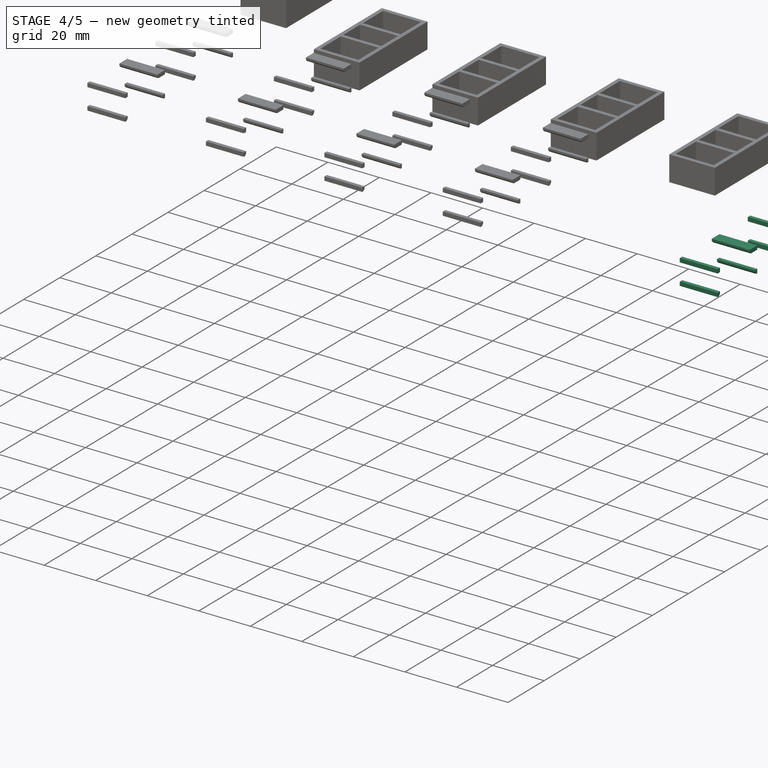
[diagram: stage 4 of 5 — iso view after this stage's code; geometry added in this stage tinted green]
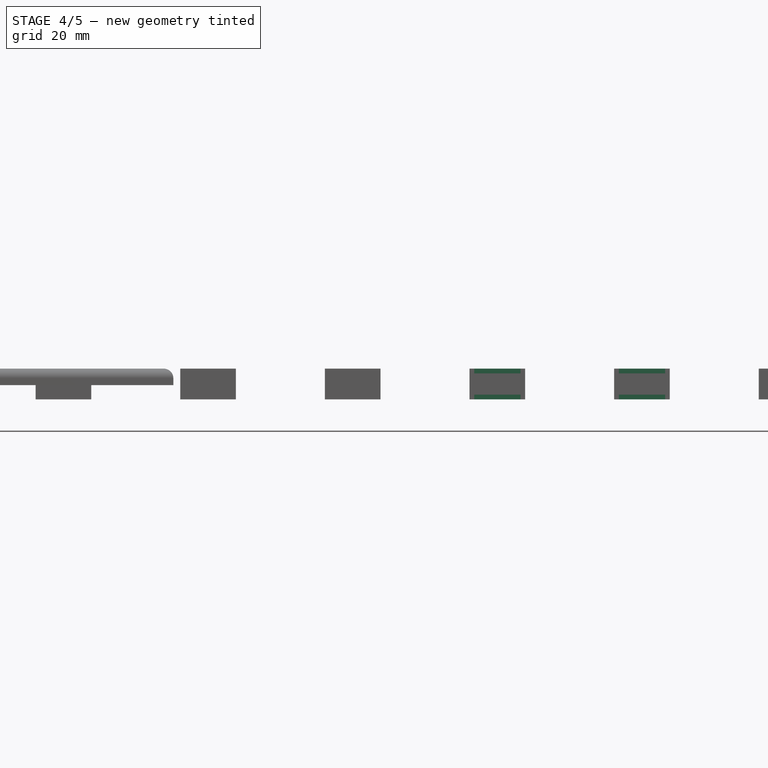
[diagram: stage 4 of 5 — front view after this stage's code; geometry added in this stage tinted green]
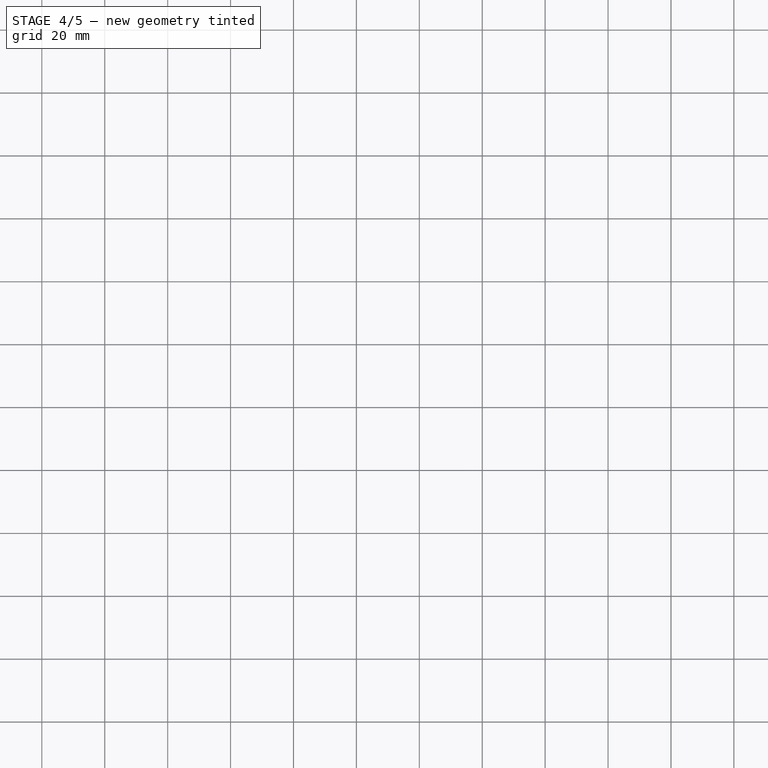
[diagram: stage 4 of 5 — top view after this stage's code; geometry added in this stage tinted green]
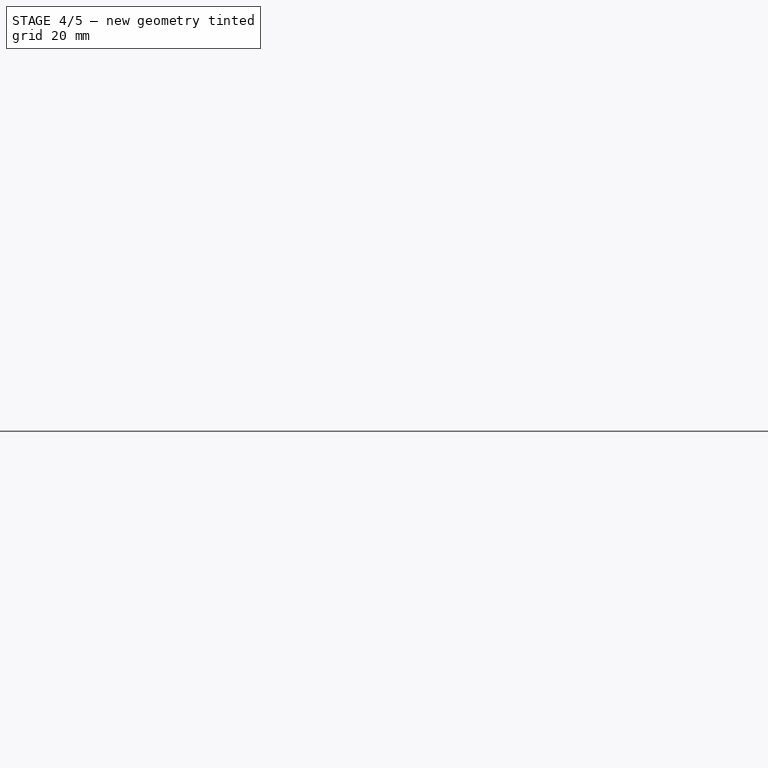
[diagram: stage 4 of 5 — right view after this stage's code; geometry added in this stage tinted green]
FEATURE [Sketcher::SketchObject] Sketch022  label="Keystone 6 Rail Sketch"
  ArcFitTolerance = 1e-06
  AttachmentOffset = pos=(342.9,-0.01,257.445) rot=(0,0,1;0rad)
  AttachmentSupport = -> [YZ_Plane]
  ExternalBSplineMaxDegree = 5
  ExternalBSplineTolerance = 0.0001
  FullyConstrained = false
  InternalTolerance = 1e-06
  InvalidShape = false
  MakeInternals = false
  MapMode = 5
  Placement = pos=(257.445,342.9,-0.01) rot=(0.57735,0.57735,0.57735;2.0944rad)
  Support = -> [YZ_Plane]
  TreeRank = 97
  ValidateShape = true
  expr: AttachmentOffset.Base.x = <<Parameters>>.Gang_6_Type == <<Keystone>> ? 0 : <<Parameters>>.Cover_Height * 3
  expr: AttachmentOffset.Base.z = <<Parameters>>.Gang_6_Offset + <<Parameters>>.Keystone_X_Position + <<Parameters>>.Keystone_Coupler_Thickness
  expr: Constraints[18] = <<Parameters>>.Keystone_Small_Overhang
  expr: Constraints[19] = <<Parameters>>.Cover_Thickness
  expr: Constraints[28] = <<Parameters>>.Keystone_Coupler_Depth - <<Parameters>>.Cover_Thickness
  expr: Constraints[38] = <<Parameters>>.Keystone_Y_Position + <<Parameters>>.Keystone_Coupler_Thickness
  expr: Constraints[39] = <<Parameters>>.Keystone_Y_Position + <<Parameters>>.Keystone_Coupler_Thickness
  expr: Constraints[40] = <<Parameters>>.Keystone_Y_Position + <<Parameters>>.Keystone_Coupler_Height - <<Parameters>>.Keystone_Coupler_Thickness
  expr: Constraints[41] = <<Parameters>>.Keystone_Y_Position + <<Parameters>>.Keystone_Coupler_Height - <<Parameters>>.Keystone_Coupler_Thickness
  expr: Constraints[76] = <<Parameters>>.Cover_Thickness
  expr: Constraints[77] = <<Parameters>>.Cover_Thickness
  expr: Constraints[78] = <<Parameters>>.Keystone_Coupler_Depth - <<Parameters>>.Cover_Thickness
  expr: Constraints[79] = <<Parameters>>.Keystone_Y_Position + <<Parameters>>.Keystone_Coupler_Height + <<Parameters>>.Keystone_Coupler_Distance + <<Parameters>>.Keystone_Coupler_Thickness
  expr: Constraints[7] = <<Parameters>>.Cover_Thickness
  expr: Constraints[80] = <<Parameters>>.Keystone_Y_Position + <<Parameters>>.Keystone_Coupler_Height + <<Parameters>>.Keystone_Coupler_Distance + <<Parameters>>.Keystone_Coupler_Thickness
  expr: Constraints[81] = <<Parameters>>.Keystone_Y_Position + 2 * <<Parameters>>.Keystone_Coupler_Height + <<Parameters>>.Keystone_Coupler_Distance - <<Parameters>>.Keystone_Coupler_Thickness
  expr: Constraints[82] = <<Parameters>>.Keystone_Y_Position + 2 * <<Parameters>>.Keystone_Coupler_Height + <<Parameters>>.Keystone_Coupler_Distance - <<Parameters>>.Keystone_Coupler_Thickness
  expr: Constraints[8] = <<Parameters>>.Keystone_Large_Overhang
  expr: Constraints[9] = <<Parameters>>.Keystone_Coupler_Thickness
  sketch-geometry (38):
    g0: LineSegment StartX=49.3 StartY=5.25 StartZ=0 EndX=45.05 EndY=5.25 EndZ=0
    g1: LineSegment StartX=45.05 StartY=5.25 StartZ=0 EndX=45.05 EndY=4.45711 EndZ=0
    g2: LineSegment StartX=45.7571 StartY=3.75 StartZ=0 EndX=49.3 EndY=3.75 EndZ=0
    g3: LineSegment StartX=49.3 StartY=3.75 StartZ=0 EndX=49.3 EndY=5.25 EndZ=0
    g4: LineSegment StartX=27.3 StartY=5.25 StartZ=0 EndX=28.65 EndY=5.25 EndZ=0
    g5: LineSegment StartX=28.65 StartY=5.25 StartZ=0 EndX=28.65 EndY=3.75 EndZ=0
    g6: LineSegment StartX=28.65 StartY=3.75 StartZ=0 EndX=27.3 EndY=3.75 EndZ=0
    g7: LineSegment StartX=27.3 StartY=3.75 StartZ=0 EndX=27.3 EndY=5.25 EndZ=0
    g8: LineSegment StartX=27.3 StartY=-3 StartZ=0 EndX=28.65 EndY=-3 EndZ=0
    g9: LineSegment StartX=28.65 StartY=-3 StartZ=0 EndX=28.65 EndY=-3.79289 EndZ=0
    g10: LineSegment StartX=27.9429 StartY=-4.5 StartZ=0 EndX=27.3 EndY=-4.5 EndZ=0
    g11: LineSegment StartX=27.3 StartY=-4.5 StartZ=0 EndX=27.3 EndY=-3 EndZ=0
    g12: LineSegment StartX=49.3 StartY=-4.5 StartZ=0 EndX=48.6571 EndY=-4.5 EndZ=0
    g13: LineSegment StartX=47.95 StartY=-3.79289 StartZ=0 EndX=47.95 EndY=-3 EndZ=0
    g14: LineSegment StartX=47.95 StartY=-3 StartZ=0 EndX=49.3 EndY=-3 EndZ=0
    g15: LineSegment StartX=49.3 StartY=-3 StartZ=0 EndX=49.3 EndY=-4.5 EndZ=0
    g16: LineSegment StartX=65 StartY=5.25 StartZ=0 EndX=66.35 EndY=5.25 EndZ=0
    g17: LineSegment StartX=66.35 StartY=5.25 StartZ=0 EndX=66.35 EndY=3.75 EndZ=0
    g18: LineSegment StartX=66.35 StartY=3.75 StartZ=0 EndX=65 EndY=3.75 EndZ=0
    g19: LineSegment StartX=65 StartY=3.75 StartZ=0 EndX=65 EndY=5.25 EndZ=0
    g20: LineSegment StartX=65 StartY=-4.5 StartZ=0 EndX=65.6429 EndY=-4.5 EndZ=0
    g21: LineSegment StartX=66.35 StartY=-3.79289 StartZ=0 EndX=66.35 EndY=-3 EndZ=0
    g22: LineSegment StartX=66.35 StartY=-3 StartZ=0 EndX=65 EndY=-3 EndZ=0
    g23: LineSegment StartX=65 StartY=-3 StartZ=0 EndX=65 EndY=-4.5 EndZ=0
    g24: LineSegment StartX=87 StartY=-4.5 StartZ=0 EndX=86.3571 EndY=-4.5 EndZ=0
    g25: LineSegment StartX=85.65 StartY=-3.79289 StartZ=0 EndX=85.65 EndY=-3 EndZ=0
    g26: LineSegment StartX=85.65 StartY=-3 StartZ=0 EndX=87 EndY=-3 EndZ=0
    g27: LineSegment StartX=87 StartY=-3 StartZ=0 EndX=87 EndY=-4.5 EndZ=0
    g28: LineSegment StartX=87 StartY=5.25 StartZ=0 EndX=82.75 EndY=5.25 EndZ=0
    g29: LineSegment StartX=82.75 StartY=5.25 StartZ=0 EndX=82.75 EndY=4.45711 EndZ=0
    g30: LineSegment StartX=83.4571 StartY=3.75 StartZ=0 EndX=87 EndY=3.75 EndZ=0
    g31: LineSegment StartX=87 StartY=3.75 StartZ=0 EndX=87 EndY=5.25 EndZ=0
    g32: LineSegment StartX=45.05 StartY=4.45711 StartZ=0 EndX=45.7571 EndY=3.75 EndZ=0
    g33: LineSegment StartX=47.95 StartY=-3.79289 StartZ=0 EndX=48.6571 EndY=-4.5 EndZ=0
    g34: LineSegment StartX=28.65 StartY=-3.79289 StartZ=0 EndX=27.9429 EndY=-4.5 EndZ=0
    g35: LineSegment StartX=66.35 StartY=-3.79289 StartZ=0 EndX=65.6429 EndY=-4.5 EndZ=0
    g36: LineSegment StartX=85.65 StartY=-3.79289 StartZ=0 EndX=86.3571 EndY=-4.5 EndZ=0
    g37: LineSegment StartX=82.75 StartY=4.45711 StartZ=0 EndX=83.4571 EndY=3.75 EndZ=0
  constraints (112):
    c: Coincident(g0,g1)
    c: Coincident(g2,g3)
    c: Coincident(g3,g0)
    c: Horizontal(g0)
    c: Horizontal(g2)
    c: Vertical(g1)
    c: Vertical(g3)
    c: DistanceY(g-1,g0) = 5.25
    c: Distance(g0) = 4.25
    c: Distance(g3) = 1.5
    c: Coincident(g4,g5)
    c: Coincident(g5,g6)
    c: Coincident(g6,g7)
    c: Coincident(g7,g4)
    c: Horizontal(g4)
    c: Horizontal(g6)
    c: Vertical(g5)
    c: Vertical(g7)
    c: Distance(g4) = 1.35
    c: DistanceY(g-1,g4) = 5.25
    c: Coincident(g8,g9)
    c: Coincident(g10,g11)
    c: Coincident(g11,g8)
    c: Horizontal(g8)
    c: Horizontal(g10)
    c: Vertical(g9)
    c: Vertical(g11)
    c: Equal(g4,g8)
    c: DistanceY(g10,g-1) = 4.5
    c: Coincident(g13,g14)
    c: Coincident(g14,g15)
    c: Coincident(g15,g12)
    c: Horizontal(g12)
    c: Horizontal(g14)
    c: Vertical(g13)
    c: Vertical(g15)
    c: Equal(g4,g14)
    c: Equal(g5,g15)
    c: DistanceX(g-1,g6) = 27.3
    c: DistanceX(g-1,g10) = 27.3
    c: DistanceX(g-1,g12) = 49.3
    c: DistanceX(g-1,g0) = 49.3
    c: Coincident(g16,g17)
    c: Coincident(g17,g18)
    c: Coincident(g18,g19)
    c: Coincident(g19,g16)
    c: Horizontal(g16)
    c: Horizontal(g18)
    c: Vertical(g17)
    c: Vertical(g19)
    c: Coincident(g21,g22)
    c: Coincident(g22,g23)
    c: Coincident(g23,g20)
    c: Horizontal(g20)
    c: Horizontal(g22)
    c: Vertical(g21)
    c: Vertical(g23)
    c: Coincident(g25,g26)
    c: Coincident(g26,g27)
    c: Coincident(g27,g24)
    c: Horizontal(g24)
    c: Horizontal(g26)
    c: Vertical(g25)
    c: Vertical(g27)
    c: Coincident(g28,g29)
    c: Coincident(g30,g31)
    c: Coincident(g31,g28)
    c: Horizontal(g28)
    c: Horizontal(g30)
    c: Vertical(g29)
    c: Vertical(g31)
    c: Equal(g5,g17)
    c: Equal(g4,g16)
    c: Equal(g4,g22)
    c: Equal(g4,g26)
    c: Equal(g0,g28)
    c: DistanceY(g-1,g16) = 5.25
    c: DistanceY(g-1,g28) = 5.25
    c: DistanceY(g20,g-1) = 4.5
    c: DistanceX(g-1,g16) = 65
    c: DistanceX(g-1,g20) = 65
    c: DistanceX(g-1,g24) = 87
    c: DistanceX(g-1,g28) = 87
    c: Distance(g32) = 1
    c: Angle(g2,g32) = 2.35619
    c: Coincident(g1,g32)
    c: Coincident(g2,g32)
    c: Distance(g33) = 1
    c: Angle(g12,g33) = 2.35619
    c: Coincident(g13,g33)
    c: Coincident(g12,g33)
    c: Distance(g34) = 1
    c: Angle(g10,g34) = 0.785398
    c: Coincident(g10,g34)
    c: Coincident(g9,g34)
    c: Distance(g35) = 1
    c: Distance(g36) = 1
    c: Distance(g37) = 1
    c: Angle(g20,g35) = 0.785398
    c: Angle(g36,g24) = 0.785398
    c: Angle(g30,g37) = 2.35619
    c: Coincident(g21,g35)
    c: Coincident(g20,g35)
    c: Coincident(g25,g36)
    c: Coincident(g24,g36)
    c: Coincident(g29,g37)
    c: Coincident(g30,g37)
    c: Equal(g7,g31)
    c: Equal(g7,g27)
    c: Equal(g7,g11)
    c: Equal(g7,g3)
    c: Equal(g5,g23)
FEATURE [PartDesign::Pad] Pad009  label="Keystone 6 Rails"
  AddSubType = 0
  AlongSketchNormal = false
  AutoTaperInnerAngle = true
  BaseFeature = -> Pad008
  CheckUpToFaceLimits = true
  ClaimChildren = false
  Direction = (1,-3e-16,3e-16)
  Fit = 0
  FitJoin = 0
  InnerFit = 0
  InnerFitJoin = 0
  InvalidShape = false
  Length = 14.7
  Length2 = 100
  Linearize = true
  NewSolid = false
  Profile = -> Sketch022
  Suppress = false
  TaperInnerAngle = 0
  TaperInnerAngleRev = 0
  TreeRank = 98
  Type = 0
  ValidateShape = true
  _ProfileBasedVersion = 1
  expr: Length = <<Parameters>>.Keystone_Coupler_Width - 2 * <<Parameters>>.Keystone_Coupler_Thickness
FEATURE [Sketcher::SketchObject] Sketch023  label="Keystone 7 Rail Sketch"
  ArcFitTolerance = 1e-06
  AttachmentOffset = pos=(342.9,-0.01,303.419) rot=(0,0,1;0rad)
  AttachmentSupport = -> [YZ_Plane]
  ExternalBSplineMaxDegree = 5
  ExternalBSplineTolerance = 0.0001
  FullyConstrained = false
  InternalTolerance = 1e-06
  InvalidShape = false
  MakeInternals = false
  MapMode = 5
  Placement = pos=(303.419,342.9,-0.01) rot=(0.57735,0.57735,0.57735;2.0944rad)
  Support = -> [YZ_Plane]
  TreeRank = 99
  ValidateShape = true
  expr: AttachmentOffset.Base.x = <<Parameters>>.Gang_7_Type == <<Keystone>> ? 0 : <<Parameters>>.Cover_Height * 3
  expr: AttachmentOffset.Base.z = <<Parameters>>.Gang_7_Offset + <<Parameters>>.Keystone_X_Position + <<Parameters>>.Keystone_Coupler_Thickness
  expr: Constraints[18] = <<Parameters>>.Keystone_Small_Overhang
  expr: Constraints[19] = <<Parameters>>.Cover_Thickness
  expr: Constraints[28] = <<Parameters>>.Keystone_Coupler_Depth - <<Parameters>>.Cover_Thickness
  expr: Constraints[38] = <<Parameters>>.Keystone_Y_Position + <<Parameters>>.Keystone_Coupler_Thickness
  expr: Constraints[39] = <<Parameters>>.Keystone_Y_Position + <<Parameters>>.Keystone_Coupler_Thickness
  expr: Constraints[40] = <<Parameters>>.Keystone_Y_Position + <<Parameters>>.Keystone_Coupler_Height - <<Parameters>>.Keystone_Coupler_Thickness
  expr: Constraints[41] = <<Parameters>>.Keystone_Y_Position + <<Parameters>>.Keystone_Coupler_Height - <<Parameters>>.Keystone_Coupler_Thickness
  expr: Constraints[76] = <<Parameters>>.Cover_Thickness
  expr: Constraints[77] = <<Parameters>>.Cover_Thickness
  expr: Constraints[78] = <<Parameters>>.Keystone_Coupler_Depth - <<Parameters>>.Cover_Thickness
  expr: Constraints[79] = <<Parameters>>.Keystone_Y_Position + <<Parameters>>.Keystone_Coupler_Height + <<Parameters>>.Keystone_Coupler_Distance + <<Parameters>>.Keystone_Coupler_Thickness
  expr: Constraints[7] = <<Parameters>>.Cover_Thickness
  expr: Constraints[80] = <<Parameters>>.Keystone_Y_Position + <<Parameters>>.Keystone_Coupler_Height + <<Parameters>>.Keystone_Coupler_Distance + <<Parameters>>.Keystone_Coupler_Thickness
  expr: Constraints[81] = <<Parameters>>.Keystone_Y_Position + 2 * <<Parameters>>.Keystone_Coupler_Height + <<Parameters>>.Keystone_Coupler_Distance - <<Parameters>>.Keystone_Coupler_Thickness
  expr: Constraints[82] = <<Parameters>>.Keystone_Y_Position + 2 * <<Parameters>>.Keystone_Coupler_Height + <<Parameters>>.Keystone_Coupler_Distance - <<Parameters>>.Keystone_Coupler_Thickness
  expr: Constraints[8] = <<Parameters>>.Keystone_Large_Overhang
  expr: Constraints[9] = <<Parameters>>.Keystone_Coupler_Thickness
  sketch-geometry (38):
    g0: LineSegment StartX=49.3 StartY=5.25 StartZ=0 EndX=45.05 EndY=5.25 EndZ=0
    g1: LineSegment StartX=45.05 StartY=5.25 StartZ=0 EndX=45.05 EndY=4.45711 EndZ=0
    g2: LineSegment StartX=45.7571 StartY=3.75 StartZ=0 EndX=49.3 EndY=3.75 EndZ=0
    g3: LineSegment StartX=49.3 StartY=3.75 StartZ=0 EndX=49.3 EndY=5.25 EndZ=0
    g4: LineSegment StartX=27.3 StartY=5.25 StartZ=0 EndX=28.65 EndY=5.25 EndZ=0
    g5: LineSegment StartX=28.65 StartY=5.25 StartZ=0 EndX=28.65 EndY=3.75 EndZ=0
    g6: LineSegment StartX=28.65 StartY=3.75 StartZ=0 EndX=27.3 EndY=3.75 EndZ=0
    g7: LineSegment StartX=27.3 StartY=3.75 StartZ=0 EndX=27.3 EndY=5.25 EndZ=0
    g8: LineSegment StartX=27.3 StartY=-3 StartZ=0 EndX=28.65 EndY=-3 EndZ=0
    g9: LineSegment StartX=28.65 StartY=-3 StartZ=0 EndX=28.65 EndY=-3.79289 EndZ=0
    g10: LineSegment StartX=27.9429 StartY=-4.5 StartZ=0 EndX=27.3 EndY=-4.5 EndZ=0
    g11: LineSegment StartX=27.3 StartY=-4.5 StartZ=0 EndX=27.3 EndY=-3 EndZ=0
    g12: LineSegment StartX=49.3 StartY=-4.5 StartZ=0 EndX=48.6571 EndY=-4.5 EndZ=0
    g13: LineSegment StartX=47.95 StartY=-3.79289 StartZ=0 EndX=47.95 EndY=-3 EndZ=0
    g14: LineSegment StartX=47.95 StartY=-3 StartZ=0 EndX=49.3 EndY=-3 EndZ=0
    g15: LineSegment StartX=49.3 StartY=-3 StartZ=0 EndX=49.3 EndY=-4.5 EndZ=0
    g16: LineSegment StartX=65 StartY=5.25 StartZ=0 EndX=66.35 EndY=5.25 EndZ=0
    g17: LineSegment StartX=66.35 StartY=5.25 StartZ=0 EndX=66.35 EndY=3.75 EndZ=0
    g18: LineSegment StartX=66.35 StartY=3.75 StartZ=0 EndX=65 EndY=3.75 EndZ=0
    g19: LineSegment StartX=65 StartY=3.75 StartZ=0 EndX=65 EndY=5.25 EndZ=0
    g20: LineSegment StartX=65 StartY=-4.5 StartZ=0 EndX=65.6429 EndY=-4.5 EndZ=0
    g21: LineSegment StartX=66.35 StartY=-3.79289 StartZ=0 EndX=66.35 EndY=-3 EndZ=0
    g22: LineSegment StartX=66.35 StartY=-3 StartZ=0 EndX=65 EndY=-3 EndZ=0
    g23: LineSegment StartX=65 StartY=-3 StartZ=0 EndX=65 EndY=-4.5 EndZ=0
    g24: LineSegment StartX=87 StartY=-4.5 StartZ=0 EndX=86.3571 EndY=-4.5 EndZ=0
    g25: LineSegment StartX=85.65 StartY=-3.79289 StartZ=0 EndX=85.65 EndY=-3 EndZ=0
    g26: LineSegment StartX=85.65 StartY=-3 StartZ=0 EndX=87 EndY=-3 EndZ=0
    g27: LineSegment StartX=87 StartY=-3 StartZ=0 EndX=87 EndY=-4.5 EndZ=0
    g28: LineSegment StartX=87 StartY=5.25 StartZ=0 EndX=82.75 EndY=5.25 EndZ=0
    g29: LineSegment StartX=82.75 StartY=5.25 StartZ=0 EndX=82.75 EndY=4.45711 EndZ=0
    g30: LineSegment StartX=83.4571 StartY=3.75 StartZ=0 EndX=87 EndY=3.75 EndZ=0
    g31: LineSegment StartX=87 StartY=3.75 StartZ=0 EndX=87 EndY=5.25 EndZ=0
    g32: LineSegment StartX=45.05 StartY=4.45711 StartZ=0 EndX=45.7571 EndY=3.75 EndZ=0
    g33: LineSegment StartX=47.95 StartY=-3.79289 StartZ=0 EndX=48.6571 EndY=-4.5 EndZ=0
    g34: LineSegment StartX=28.65 StartY=-3.79289 StartZ=0 EndX=27.9429 EndY=-4.5 EndZ=0
    g35: LineSegment StartX=66.35 StartY=-3.79289 StartZ=0 EndX=65.6429 EndY=-4.5 EndZ=0
    g36: LineSegment StartX=85.65 StartY=-3.79289 StartZ=0 EndX=86.3571 EndY=-4.5 EndZ=0
    g37: LineSegment StartX=82.75 StartY=4.45711 StartZ=0 EndX=83.4571 EndY=3.75 EndZ=0
  constraints (112):
    c: Coincident(g0,g1)
    c: Coincident(g2,g3)
    c: Coincident(g3,g0)
    c: Horizontal(g0)
    c: Horizontal(g2)
    c: Vertical(g1)
    c: Vertical(g3)
    c: DistanceY(g-1,g0) = 5.25
    c: Distance(g0) = 4.25
    c: Distance(g3) = 1.5
    c: Coincident(g4,g5)
    c: Coincident(g5,g6)
    c: Coincident(g6,g7)
    c: Coincident(g7,g4)
    c: Horizontal(g4)
    c: Horizontal(g6)
    c: Vertical(g5)
    c: Vertical(g7)
    c: Distance(g4) = 1.35
    c: DistanceY(g-1,g4) = 5.25
    c: Coincident(g8,g9)
    c: Coincident(g10,g11)
    c: Coincident(g11,g8)
    c: Horizontal(g8)
    c: Horizontal(g10)
    c: Vertical(g9)
    c: Vertical(g11)
    c: Equal(g4,g8)
    c: DistanceY(g10,g-1) = 4.5
    c: Coincident(g13,g14)
    c: Coincident(g14,g15)
    c: Coincident(g15,g12)
    c: Horizontal(g12)
    c: Horizontal(g14)
    c: Vertical(g13)
    c: Vertical(g15)
    c: Equal(g4,g14)
    c: Equal(g5,g15)
    c: DistanceX(g-1,g6) = 27.3
    c: DistanceX(g-1,g10) = 27.3
    c: DistanceX(g-1,g12) = 49.3
    c: DistanceX(g-1,g0) = 49.3
    c: Coincident(g16,g17)
    c: Coincident(g17,g18)
    c: Coincident(g18,g19)
    c: Coincident(g19,g16)
    c: Horizontal(g16)
    c: Horizontal(g18)
    c: Vertical(g17)
    c: Vertical(g19)
    c: Coincident(g21,g22)
    c: Coincident(g22,g23)
    c: Coincident(g23,g20)
    c: Horizontal(g20)
    c: Horizontal(g22)
    c: Vertical(g21)
    c: Vertical(g23)
    c: Coincident(g25,g26)
    c: Coincident(g26,g27)
    c: Coincident(g27,g24)
    c: Horizontal(g24)
    c: Horizontal(g26)
    c: Vertical(g25)
    c: Vertical(g27)
    c: Coincident(g28,g29)
    c: Coincident(g30,g31)
    c: Coincident(g31,g28)
    c: Horizontal(g28)
    c: Horizontal(g30)
    c: Vertical(g29)
    c: Vertical(g31)
    c: Equal(g5,g17)
    c: Equal(g4,g16)
    c: Equal(g4,g22)
    c: Equal(g4,g26)
    c: Equal(g0,g28)
    c: DistanceY(g-1,g16) = 5.25
    c: DistanceY(g-1,g28) = 5.25
    c: DistanceY(g20,g-1) = 4.5
    c: DistanceX(g-1,g16) = 65
    c: DistanceX(g-1,g20) = 65
    c: DistanceX(g-1,g24) = 87
    c: DistanceX(g-1,g28) = 87
    c: Distance(g32) = 1
    c: Angle(g2,g32) = 2.35619
    c: Coincident(g1,g32)
    c: Coincident(g2,g32)
    c: Distance(g33) = 1
    c: Angle(g12,g33) = 2.35619
    c: Coincident(g13,g33)
    c: Coincident(g12,g33)
    c: Distance(g34) = 1
    c: Angle(g10,g34) = 0.785398
    c: Coincident(g10,g34)
    c: Coincident(g9,g34)
    c: Distance(g35) = 1
    c: Distance(g36) = 1
    c: Distance(g37) = 1
    c: Angle(g20,g35) = 0.785398
    c: Angle(g36,g24) = 0.785398
    c: Angle(g30,g37) = 2.35619
    c: Coincident(g21,g35)
    c: Coincident(g20,g35)
    c: Coincident(g25,g36)
    c: Coincident(g24,g36)
    c: Coincident(g29,g37)
    c: Coincident(g30,g37)
    c: Equal(g7,g31)
    c: Equal(g7,g27)
    c: Equal(g7,g11)
    c: Equal(g7,g3)
    c: Equal(g5,g23)
FEATURE [PartDesign::Pad] Pad010  label="Keystone 7 Rails"
  AddSubType = 0
  AlongSketchNormal = false
  AutoTaperInnerAngle = true
  BaseFeature = -> Pad009
  CheckUpToFaceLimits = true
  ClaimChildren = false
  Direction = (1,-3e-16,3e-16)
  Fit = 0
  FitJoin = 0
  InnerFit = 0
  InnerFitJoin = 0
  InvalidShape = false
  Length = 14.7
  Length2 = 100
  Linearize = true
  NewSolid = false
  Profile = -> Sketch023
  Suppress = false
  TaperInnerAngle = 0
  TaperInnerAngleRev = 0
  TreeRank = 100
  Type = 0
  ValidateShape = true
  _ProfileBasedVersion = 1
  expr: Length = <<Parameters>>.Keystone_Coupler_Width - 2 * <<Parameters>>.Keystone_Coupler_Thickness
FEATURE [Sketcher::SketchObject] Sketch024  label="Keystone 8 Rail Sketch"
  ArcFitTolerance = 1e-06
  AttachmentOffset = pos=(342.9,-0.01,27.575) rot=(0,0,1;0rad)
  AttachmentSupport = -> [YZ_Plane]
  ExternalBSplineMaxDegree = 5
  ExternalBSplineTolerance = 0.0001
  FullyConstrained = false
  InternalTolerance = 1e-06
  InvalidShape = false
  MakeInternals = false
  MapMode = 5
  Placement = pos=(27.575,342.9,-0.01) rot=(0.57735,0.57735,0.57735;2.0944rad)
  Support = -> [YZ_Plane]
  TreeRank = 101
  ValidateShape = true
  expr: AttachmentOffset.Base.x = <<Parameters>>.Gang_1_Type == <<Keystone>> ? 0 : <<Parameters>>.Cover_Height * 3
  expr: AttachmentOffset.Base.z = <<Parameters>>.Gang_1_Offset + <<Parameters>>.Keystone_X_Position + <<Parameters>>.Keystone_Coupler_Thickness
  expr: Constraints[18] = <<Parameters>>.Keystone_Small_Overhang
  expr: Constraints[19] = <<Parameters>>.Cover_Thickness
  expr: Constraints[28] = <<Parameters>>.Keystone_Coupler_Depth - <<Parameters>>.Cover_Thickness
  expr: Constraints[38] = <<Parameters>>.Keystone_Y_Position + <<Parameters>>.Keystone_Coupler_Thickness
  expr: Constraints[39] = <<Parameters>>.Keystone_Y_Position + <<Parameters>>.Keystone_Coupler_Thickness
  expr: Constraints[40] = <<Parameters>>.Keystone_Y_Position + <<Parameters>>.Keystone_Coupler_Height - <<Parameters>>.Keystone_Coupler_Thickness
  expr: Constraints[41] = <<Parameters>>.Keystone_Y_Position + <<Parameters>>.Keystone_Coupler_Height - <<Parameters>>.Keystone_Coupler_Thickness
  expr: Constraints[76] = <<Parameters>>.Cover_Thickness
  expr: Constraints[77] = <<Parameters>>.Cover_Thickness
  expr: Constraints[78] = <<Parameters>>.Keystone_Coupler_Depth - <<Parameters>>.Cover_Thickness
  expr: Constraints[79] = <<Parameters>>.Keystone_Y_Position + <<Parameters>>.Keystone_Coupler_Height + <<Parameters>>.Keystone_Coupler_Distance + <<Parameters>>.Keystone_Coupler_Thickness
  expr: Constraints[7] = <<Parameters>>.Cover_Thickness
  expr: Constraints[80] = <<Parameters>>.Keystone_Y_Position + <<Parameters>>.Keystone_Coupler_Height + <<Parameters>>.Keystone_Coupler_Distance + <<Parameters>>.Keystone_Coupler_Thickness
  expr: Constraints[81] = <<Parameters>>.Keystone_Y_Position + 2 * <<Parameters>>.Keystone_Coupler_Height + <<Parameters>>.Keystone_Coupler_Distance - <<Parameters>>.Keystone_Coupler_Thickness
  expr: Constraints[82] = <<Parameters>>.Keystone_Y_Position + 2 * <<Parameters>>.Keystone_Coupler_Height + <<Parameters>>.Keystone_Coupler_Distance - <<Parameters>>.Keystone_Coupler_Thickness
  expr: Constraints[8] = <<Parameters>>.Keystone_Large_Overhang
  expr: Constraints[9] = <<Parameters>>.Keystone_Coupler_Thickness
  sketch-geometry (38):
    g0: LineSegment StartX=49.3 StartY=5.25 StartZ=0 EndX=45.05 EndY=5.25 EndZ=0
    g1: LineSegment StartX=45.05 StartY=5.25 StartZ=0 EndX=45.05 EndY=4.45711 EndZ=0
    g2: LineSegment StartX=45.7571 StartY=3.75 StartZ=0 EndX=49.3 EndY=3.75 EndZ=0
    g3: LineSegment StartX=49.3 StartY=3.75 StartZ=0 EndX=49.3 EndY=5.25 EndZ=0
    g4: LineSegment StartX=27.3 StartY=5.25 StartZ=0 EndX=28.65 EndY=5.25 EndZ=0
    g5: LineSegment StartX=28.65 StartY=5.25 StartZ=0 EndX=28.65 EndY=3.75 EndZ=0
    g6: LineSegment StartX=28.65 StartY=3.75 StartZ=0 EndX=27.3 EndY=3.75 EndZ=0
    g7: LineSegment StartX=27.3 StartY=3.75 StartZ=0 EndX=27.3 EndY=5.25 EndZ=0
    g8: LineSegment StartX=27.3 StartY=-3 StartZ=0 EndX=28.65 EndY=-3 EndZ=0
    g9: LineSegment StartX=28.65 StartY=-3 StartZ=0 EndX=28.65 EndY=-3.79289 EndZ=0
    g10: LineSegment StartX=27.9429 StartY=-4.5 StartZ=0 EndX=27.3 EndY=-4.5 EndZ=0
    g11: LineSegment StartX=27.3 StartY=-4.5 StartZ=0 EndX=27.3 EndY=-3 EndZ=0
    g12: LineSegment StartX=49.3 StartY=-4.5 StartZ=0 EndX=48.6571 EndY=-4.5 EndZ=0
    g13: LineSegment StartX=47.95 StartY=-3.79289 StartZ=0 EndX=47.95 EndY=-3 EndZ=0
    g14: LineSegment StartX=47.95 StartY=-3 StartZ=0 EndX=49.3 EndY=-3 EndZ=0
    g15: LineSegment StartX=49.3 StartY=-3 StartZ=0 EndX=49.3 EndY=-4.5 EndZ=0
    g16: LineSegment StartX=65 StartY=5.25 StartZ=0 EndX=66.35 EndY=5.25 EndZ=0
    g17: LineSegment StartX=66.35 StartY=5.25 StartZ=0 EndX=66.35 EndY=3.75 EndZ=0
    g18: LineSegment StartX=66.35 StartY=3.75 StartZ=0 EndX=65 EndY=3.75 EndZ=0
    g19: LineSegment StartX=65 StartY=3.75 StartZ=0 EndX=65 EndY=5.25 EndZ=0
    g20: LineSegment StartX=65 StartY=-4.5 StartZ=0 EndX=65.6429 EndY=-4.5 EndZ=0
    g21: LineSegment StartX=66.35 StartY=-3.79289 StartZ=0 EndX=66.35 EndY=-3 EndZ=0
    g22: LineSegment StartX=66.35 StartY=-3 StartZ=0 EndX=65 EndY=-3 EndZ=0
    g23: LineSegment StartX=65 StartY=-3 StartZ=0 EndX=65 EndY=-4.5 EndZ=0
    g24: LineSegment StartX=87 StartY=-4.5 StartZ=0 EndX=86.3571 EndY=-4.5 EndZ=0
    g25: LineSegment StartX=85.65 StartY=-3.79289 StartZ=0 EndX=85.65 EndY=-3 EndZ=0
    g26: LineSegment StartX=85.65 StartY=-3 StartZ=0 EndX=87 EndY=-3 EndZ=0
    g27: LineSegment StartX=87 StartY=-3 StartZ=0 EndX=87 EndY=-4.5 EndZ=0
    g28: LineSegment StartX=87 StartY=5.25 StartZ=0 EndX=82.75 EndY=5.25 EndZ=0
    g29: LineSegment StartX=82.75 StartY=5.25 StartZ=0 EndX=82.75 EndY=4.45711 EndZ=0
    g30: LineSegment StartX=83.4571 StartY=3.75 StartZ=0 EndX=87 EndY=3.75 EndZ=0
    g31: LineSegment StartX=87 StartY=3.75 StartZ=0 EndX=87 EndY=5.25 EndZ=0
    g32: LineSegment StartX=45.05 StartY=4.45711 StartZ=0 EndX=45.7571 EndY=3.75 EndZ=0
    g33: LineSegment StartX=47.95 StartY=-3.79289 StartZ=0 EndX=48.6571 EndY=-4.5 EndZ=0
    g34: LineSegment StartX=28.65 StartY=-3.79289 StartZ=0 EndX=27.9429 EndY=-4.5 EndZ=0
    g35: LineSegment StartX=66.35 StartY=-3.79289 StartZ=0 EndX=65.6429 EndY=-4.5 EndZ=0
    g36: LineSegment StartX=85.65 StartY=-3.79289 StartZ=0 EndX=86.3571 EndY=-4.5 EndZ=0
    g37: LineSegment StartX=82.75 StartY=4.45711 StartZ=0 EndX=83.4571 EndY=3.75 EndZ=0
  constraints (112):
    c: Coincident(g0,g1)
    c: Coincident(g2,g3)
    c: Coincident(g3,g0)
    c: Horizontal(g0)
    c: Horizontal(g2)
    c: Vertical(g1)
    c: Vertical(g3)
    c: DistanceY(g-1,g0) = 5.25
    c: Distance(g0) = 4.25
    c: Distance(g3) = 1.5
    c: Coincident(g4,g5)
    c: Coincident(g5,g6)
    c: Coincident(g6,g7)
    c: Coincident(g7,g4)
    c: Horizontal(g4)
    c: Horizontal(g6)
    c: Vertical(g5)
    c: Vertical(g7)
    c: Distance(g4) = 1.35
    c: DistanceY(g-1,g4) = 5.25
    c: Coincident(g8,g9)
    c: Coincident(g10,g11)
    c: Coincident(g11,g8)
    c: Horizontal(g8)
    c: Horizontal(g10)
    c: Vertical(g9)
    c: Vertical(g11)
    c: Equal(g4,g8)
    c: DistanceY(g10,g-1) = 4.5
    c: Coincident(g13,g14)
    c: Coincident(g14,g15)
    c: Coincident(g15,g12)
    c: Horizontal(g12)
    c: Horizontal(g14)
    c: Vertical(g13)
    c: Vertical(g15)
    c: Equal(g4,g14)
    c: Equal(g5,g15)
    c: DistanceX(g-1,g6) = 27.3
    c: DistanceX(g-1,g10) = 27.3
    c: DistanceX(g-1,g12) = 49.3
    c: DistanceX(g-1,g0) = 49.3
    c: Coincident(g16,g17)
    c: Coincident(g17,g18)
    c: Coincident(g18,g19)
    c: Coincident(g19,g16)
    c: Horizontal(g16)
    c: Horizontal(g18)
    c: Vertical(g17)
    c: Vertical(g19)
    c: Coincident(g21,g22)
    c: Coincident(g22,g23)
    c: Coincident(g23,g20)
    c: Horizontal(g20)
    c: Horizontal(g22)
    c: Vertical(g21)
    c: Vertical(g23)
    c: Coincident(g25,g26)
    c: Coincident(g26,g27)
    c: Coincident(g27,g24)
    c: Horizontal(g24)
    c: Horizontal(g26)
    c: Vertical(g25)
    c: Vertical(g27)
    c: Coincident(g28,g29)
    c: Coincident(g30,g31)
    c: Coincident(g31,g28)
    c: Horizontal(g28)
    c: Horizontal(g30)
    c: Vertical(g29)
    c: Vertical(g31)
    c: Equal(g5,g17)
    c: Equal(g4,g16)
    c: Equal(g4,g22)
    c: Equal(g4,g26)
    c: Equal(g0,g28)
    c: DistanceY(g-1,g16) = 5.25
    c: DistanceY(g-1,g28) = 5.25
    c: DistanceY(g20,g-1) = 4.5
    c: DistanceX(g-1,g16) = 65
    c: DistanceX(g-1,g20) = 65
    c: DistanceX(g-1,g24) = 87
    c: DistanceX(g-1,g28) = 87
    c: Distance(g32) = 1
    c: Angle(g2,g32) = 2.35619
    c: Coincident(g1,g32)
    c: Coincident(g2,g32)
    c: Distance(g33) = 1
    c: Angle(g12,g33) = 2.35619
    c: Coincident(g13,g33)
    c: Coincident(g12,g33)
    c: Distance(g34) = 1
    c: Angle(g10,g34) = 0.785398
    c: Coincident(g10,g34)
    c: Coincident(g9,g34)
    c: Distance(g35) = 1
    c: Distance(g36) = 1
    c: Distance(g37) = 1
    c: Angle(g20,g35) = 0.785398
    c: Angle(g36,g24) = 0.785398
    c: Angle(g30,g37) = 2.35619
    c: Coincident(g21,g35)
    c: Coincident(g20,g35)
    c: Coincident(g25,g36)
    c: Coincident(g24,g36)
    c: Coincident(g29,g37)
    c: Coincident(g30,g37)
    c: Equal(g7,g31)
    c: Equal(g7,g27)
    c: Equal(g7,g11)
    c: Equal(g7,g3)
    c: Equal(g5,g23)
FEATURE [Sketcher::SketchObject] Sketch025  label="Keystone 9 Rail Sketch"
  ArcFitTolerance = 1e-06
  AttachmentOffset = pos=(342.9,-0.01,27.575) rot=(0,0,1;0rad)
  AttachmentSupport = -> [YZ_Plane]
  ExternalBSplineMaxDegree = 5
  ExternalBSplineTolerance = 0.0001
  FullyConstrained = false
  InternalTolerance = 1e-06
  InvalidShape = false
  MakeInternals = false
  MapMode = 5
  Placement = pos=(27.575,342.9,-0.01) rot=(0.57735,0.57735,0.57735;2.0944rad)
  Support = -> [YZ_Plane]
  TreeRank = 102
  ValidateShape = true
  expr: AttachmentOffset.Base.x = <<Parameters>>.Gang_1_Type == <<Keystone>> ? 0 : <<Parameters>>.Cover_Height * 3
  expr: AttachmentOffset.Base.z = <<Parameters>>.Gang_1_Offset + <<Parameters>>.Keystone_X_Position + <<Parameters>>.Keystone_Coupler_Thickness
  expr: Constraints[18] = <<Parameters>>.Keystone_Small_Overhang
  expr: Constraints[19] = <<Parameters>>.Cover_Thickness
  expr: Constraints[28] = <<Parameters>>.Keystone_Coupler_Depth - <<Parameters>>.Cover_Thickness
  expr: Constraints[38] = <<Parameters>>.Keystone_Y_Position + <<Parameters>>.Keystone_Coupler_Thickness
  expr: Constraints[39] = <<Parameters>>.Keystone_Y_Position + <<Parameters>>.Keystone_Coupler_Thickness
  expr: Constraints[40] = <<Parameters>>.Keystone_Y_Position + <<Parameters>>.Keystone_Coupler_Height - <<Parameters>>.Keystone_Coupler_Thickness
  expr: Constraints[41] = <<Parameters>>.Keystone_Y_Position + <<Parameters>>.Keystone_Coupler_Height - <<Parameters>>.Keystone_Coupler_Thickness
  expr: Constraints[76] = <<Parameters>>.Cover_Thickness
  expr: Constraints[77] = <<Parameters>>.Cover_Thickness
  expr: Constraints[78] = <<Parameters>>.Keystone_Coupler_Depth - <<Parameters>>.Cover_Thickness
  expr: Constraints[79] = <<Parameters>>.Keystone_Y_Position + <<Parameters>>.Keystone_Coupler_Height + <<Parameters>>.Keystone_Coupler_Distance + <<Parameters>>.Keystone_Coupler_Thickness
  expr: Constraints[7] = <<Parameters>>.Cover_Thickness
  expr: Constraints[80] = <<Parameters>>.Keystone_Y_Position + <<Parameters>>.Keystone_Coupler_Height + <<Parameters>>.Keystone_Coupler_Distance + <<Parameters>>.Keystone_Coupler_Thickness
  expr: Constraints[81] = <<Parameters>>.Keystone_Y_Position + 2 * <<Parameters>>.Keystone_Coupler_Height + <<Parameters>>.Keystone_Coupler_Distance - <<Parameters>>.Keystone_Coupler_Thickness
  expr: Constraints[82] = <<Parameters>>.Keystone_Y_Position + 2 * <<Parameters>>.Keystone_Coupler_Height + <<Parameters>>.Keystone_Coupler_Distance - <<Parameters>>.Keystone_Coupler_Thickness
  expr: Constraints[8] = <<Parameters>>.Keystone_Large_Overhang
  expr: Constraints[9] = <<Parameters>>.Keystone_Coupler_Thickness
  sketch-geometry (38):
    g0: LineSegment StartX=49.3 StartY=5.25 StartZ=0 EndX=45.05 EndY=5.25 EndZ=0
    g1: LineSegment StartX=45.05 StartY=5.25 StartZ=0 EndX=45.05 EndY=4.45711 EndZ=0
    g2: LineSegment StartX=45.7571 StartY=3.75 StartZ=0 EndX=49.3 EndY=3.75 EndZ=0
    g3: LineSegment StartX=49.3 StartY=3.75 StartZ=0 EndX=49.3 EndY=5.25 EndZ=0
    g4: LineSegment StartX=27.3 StartY=5.25 StartZ=0 EndX=28.65 EndY=5.25 EndZ=0
    g5: LineSegment StartX=28.65 StartY=5.25 StartZ=0 EndX=28.65 EndY=3.75 EndZ=0
    g6: LineSegment StartX=28.65 StartY=3.75 StartZ=0 EndX=27.3 EndY=3.75 EndZ=0
    g7: LineSegment StartX=27.3 StartY=3.75 StartZ=0 EndX=27.3 EndY=5.25 EndZ=0
    g8: LineSegment StartX=27.3 StartY=-3 StartZ=0 EndX=28.65 EndY=-3 EndZ=0
    g9: LineSegment StartX=28.65 StartY=-3 StartZ=0 EndX=28.65 EndY=-3.79289 EndZ=0
    g10: LineSegment StartX=27.9429 StartY=-4.5 StartZ=0 EndX=27.3 EndY=-4.5 EndZ=0
    g11: LineSegment StartX=27.3 StartY=-4.5 StartZ=0 EndX=27.3 EndY=-3 EndZ=0
    g12: LineSegment StartX=49.3 StartY=-4.5 StartZ=0 EndX=48.6571 EndY=-4.5 EndZ=0
    g13: LineSegment StartX=47.95 StartY=-3.79289 StartZ=0 EndX=47.95 EndY=-3 EndZ=0
    g14: LineSegment StartX=47.95 StartY=-3 StartZ=0 EndX=49.3 EndY=-3 EndZ=0
    g15: LineSegment StartX=49.3 StartY=-3 StartZ=0 EndX=49.3 EndY=-4.5 EndZ=0
    g16: LineSegment StartX=65 StartY=5.25 StartZ=0 EndX=66.35 EndY=5.25 EndZ=0
    g17: LineSegment StartX=66.35 StartY=5.25 StartZ=0 EndX=66.35 EndY=3.75 EndZ=0
    g18: LineSegment StartX=66.35 StartY=3.75 StartZ=0 EndX=65 EndY=3.75 EndZ=0
    g19: LineSegment StartX=65 StartY=3.75 StartZ=0 EndX=65 EndY=5.25 EndZ=0
    g20: LineSegment StartX=65 StartY=-4.5 StartZ=0 EndX=65.6429 EndY=-4.5 EndZ=0
    g21: LineSegment StartX=66.35 StartY=-3.79289 StartZ=0 EndX=66.35 EndY=-3 EndZ=0
    g22: LineSegment StartX=66.35 StartY=-3 StartZ=0 EndX=65 EndY=-3 EndZ=0
    g23: LineSegment StartX=65 StartY=-3 StartZ=0 EndX=65 EndY=-4.5 EndZ=0
    g24: LineSegment StartX=87 StartY=-4.5 StartZ=0 EndX=86.3571 EndY=-4.5 EndZ=0
    g25: LineSegment StartX=85.65 StartY=-3.79289 StartZ=0 EndX=85.65 EndY=-3 EndZ=0
    g26: LineSegment StartX=85.65 StartY=-3 StartZ=0 EndX=87 EndY=-3 EndZ=0
    g27: LineSegment StartX=87 StartY=-3 StartZ=0 EndX=87 EndY=-4.5 EndZ=0
    g28: LineSegment StartX=87 StartY=5.25 StartZ=0 EndX=82.75 EndY=5.25 EndZ=0
    g29: LineSegment StartX=82.75 StartY=5.25 StartZ=0 EndX=82.75 EndY=4.45711 EndZ=0
    g30: LineSegment StartX=83.4571 StartY=3.75 StartZ=0 EndX=87 EndY=3.75 EndZ=0
    g31: LineSegment StartX=87 StartY=3.75 StartZ=0 EndX=87 EndY=5.25 EndZ=0
    g32: LineSegment StartX=45.05 StartY=4.45711 StartZ=0 EndX=45.7571 EndY=3.75 EndZ=0
    g33: LineSegment StartX=47.95 StartY=-3.79289 StartZ=0 EndX=48.6571 EndY=-4.5 EndZ=0
    g34: LineSegment StartX=28.65 StartY=-3.79289 StartZ=0 EndX=27.9429 EndY=-4.5 EndZ=0
    g35: LineSegment StartX=66.35 StartY=-3.79289 StartZ=0 EndX=65.6429 EndY=-4.5 EndZ=0
    g36: LineSegment StartX=85.65 StartY=-3.79289 StartZ=0 EndX=86.3571 EndY=-4.5 EndZ=0
    g37: LineSegment StartX=82.75 StartY=4.45711 StartZ=0 EndX=83.4571 EndY=3.75 EndZ=0
  constraints (112):
    c: Coincident(g0,g1)
    c: Coincident(g2,g3)
    c: Coincident(g3,g0)
    c: Horizontal(g0)
    c: Horizontal(g2)
    c: Vertical(g1)
    c: Vertical(g3)
    c: DistanceY(g-1,g0) = 5.25
    c: Distance(g0) = 4.25
    c: Distance(g3) = 1.5
    c: Coincident(g4,g5)
    c: Coincident(g5,g6)
    c: Coincident(g6,g7)
    c: Coincident(g7,g4)
    c: Horizontal(g4)
    c: Horizontal(g6)
    c: Vertical(g5)
    c: Vertical(g7)
    c: Distance(g4) = 1.35
    c: DistanceY(g-1,g4) = 5.25
    c: Coincident(g8,g9)
    c: Coincident(g10,g11)
    c: Coincident(g11,g8)
    c: Horizontal(g8)
    c: Horizontal(g10)
    c: Vertical(g9)
    c: Vertical(g11)
    c: Equal(g4,g8)
    c: DistanceY(g10,g-1) = 4.5
    c: Coincident(g13,g14)
    c: Coincident(g14,g15)
    c: Coincident(g15,g12)
    c: Horizontal(g12)
    c: Horizontal(g14)
    c: Vertical(g13)
    c: Vertical(g15)
    c: Equal(g4,g14)
    c: Equal(g5,g15)
    c: DistanceX(g-1,g6) = 27.3
    c: DistanceX(g-1,g10) = 27.3
    c: DistanceX(g-1,g12) = 49.3
    c: DistanceX(g-1,g0) = 49.3
    c: Coincident(g16,g17)
    c: Coincident(g17,g18)
    c: Coincident(g18,g19)
    c: Coincident(g19,g16)
    c: Horizontal(g16)
    c: Horizontal(g18)
    c: Vertical(g17)
    c: Vertical(g19)
    c: Coincident(g21,g22)
    c: Coincident(g22,g23)
    c: Coincident(g23,g20)
    c: Horizontal(g20)
    c: Horizontal(g22)
    c: Vertical(g21)
    c: Vertical(g23)
    c: Coincident(g25,g26)
    c: Coincident(g26,g27)
    c: Coincident(g27,g24)
    c: Horizontal(g24)
    c: Horizontal(g26)
    c: Vertical(g25)
    c: Vertical(g27)
    c: Coincident(g28,g29)
    c: Coincident(g30,g31)
    c: Coincident(g31,g28)
    c: Horizontal(g28)
    c: Horizontal(g30)
    c: Vertical(g29)
    c: Vertical(g31)
    c: Equal(g5,g17)
    c: Equal(g4,g16)
    c: Equal(g4,g22)
    c: Equal(g4,g26)
    c: Equal(g0,g28)
    c: DistanceY(g-1,g16) = 5.25
    c: DistanceY(g-1,g28) = 5.25
    c: DistanceY(g20,g-1) = 4.5
    c: DistanceX(g-1,g16) = 65
    c: DistanceX(g-1,g20) = 65
    c: DistanceX(g-1,g24) = 87
    c: DistanceX(g-1,g28) = 87
    c: Distance(g32) = 1
    c: Angle(g2,g32) = 2.35619
    c: Coincident(g1,g32)
    c: Coincident(g2,g32)
    c: Distance(g33) = 1
    c: Angle(g12,g33) = 2.35619
    c: Coincident(g13,g33)
    c: Coincident(g12,g33)
    c: Distance(g34) = 1
    c: Angle(g10,g34) = 0.785398
    c: Coincident(g10,g34)
    c: Coincident(g9,g34)
    c: Distance(g35) = 1
    c: Distance(g36) = 1
    c: Distance(g37) = 1
    c: Angle(g20,g35) = 0.785398
    c: Angle(g36,g24) = 0.785398
    c: Angle(g30,g37) = 2.35619
    c: Coincident(g21,g35)
    c: Coincident(g20,g35)
    c: Coincident(g25,g36)
    c: Coincident(g24,g36)
    c: Coincident(g29,g37)
    c: Coincident(g30,g37)
    c: Equal(g7,g31)
    c: Equal(g7,g27)
    c: Equal(g7,g11)
    c: Equal(g7,g3)
    c: Equal(g5,g23)
FEATURE [Sketcher::SketchObject] Sketch026  label="Keystone 10 Rail Sketch"
  ArcFitTolerance = 1e-06
  AttachmentOffset = pos=(342.9,-0.01,441.341) rot=(0,0,1;0rad)
  AttachmentSupport = -> [YZ_Plane]
  ExternalBSplineMaxDegree = 5
  ExternalBSplineTolerance = 0.0001
  FullyConstrained = false
  InternalTolerance = 1e-06
  InvalidShape = false
  MakeInternals = false
  MapMode = 5
  Placement = pos=(441.341,342.9,-0.01) rot=(0.57735,0.57735,0.57735;2.0944rad)
  Support = -> [YZ_Plane]
  TreeRank = 103
  ValidateShape = true
  expr: AttachmentOffset.Base.x = <<Parameters>>.Gang_10_Type == <<Keystone>> ? 0 : <<Parameters>>.Cover_Height * 3
  expr: AttachmentOffset.Base.z = <<Parameters>>.Gang_10_Offset + <<Parameters>>.Keystone_X_Position + <<Parameters>>.Keystone_Coupler_Thickness
  expr: Constraints[18] = <<Parameters>>.Keystone_Small_Overhang
  expr: Constraints[19] = <<Parameters>>.Cover_Thickness
  expr: Constraints[28] = <<Parameters>>.Keystone_Coupler_Depth - <<Parameters>>.Cover_Thickness
  expr: Constraints[38] = <<Parameters>>.Keystone_Y_Position + <<Parameters>>.Keystone_Coupler_Thickness
  expr: Constraints[39] = <<Parameters>>.Keystone_Y_Position + <<Parameters>>.Keystone_Coupler_Thickness
  expr: Constraints[40] = <<Parameters>>.Keystone_Y_Position + <<Parameters>>.Keystone_Coupler_Height - <<Parameters>>.Keystone_Coupler_Thickness
  expr: Constraints[41] = <<Parameters>>.Keystone_Y_Position + <<Parameters>>.Keystone_Coupler_Height - <<Parameters>>.Keystone_Coupler_Thickness
  expr: Constraints[76] = <<Parameters>>.Cover_Thickness
  expr: Constraints[77] = <<Parameters>>.Cover_Thickness
  expr: Constraints[78] = <<Parameters>>.Keystone_Coupler_Depth - <<Parameters>>.Cover_Thickness
  expr: Constraints[79] = <<Parameters>>.Keystone_Y_Position + <<Parameters>>.Keystone_Coupler_Height + <<Parameters>>.Keystone_Coupler_Distance + <<Parameters>>.Keystone_Coupler_Thickness
  expr: Constraints[7] = <<Parameters>>.Cover_Thickness
  expr: Constraints[80] = <<Parameters>>.Keystone_Y_Position + <<Parameters>>.Keystone_Coupler_Height + <<Parameters>>.Keystone_Coupler_Distance + <<Parameters>>.Keystone_Coupler_Thickness
  expr: Constraints[81] = <<Parameters>>.Keystone_Y_Position + 2 * <<Parameters>>.Keystone_Coupler_Height + <<Parameters>>.Keystone_Coupler_Distance - <<Parameters>>.Keystone_Coupler_Thickness
  expr: Constraints[82] = <<Parameters>>.Keystone_Y_Position + 2 * <<Parameters>>.Keystone_Coupler_Height + <<Parameters>>.Keystone_Coupler_Distance - <<Parameters>>.Keystone_Coupler_Thickness
  expr: Constraints[8] = <<Parameters>>.Keystone_Large_Overhang
  expr: Constraints[9] = <<Parameters>>.Keystone_Coupler_Thickness
  sketch-geometry (38):
    g0: LineSegment StartX=49.3 StartY=5.25 StartZ=0 EndX=45.05 EndY=5.25 EndZ=0
    g1: LineSegment StartX=45.05 StartY=5.25 StartZ=0 EndX=45.05 EndY=4.45711 EndZ=0
    g2: LineSegment StartX=45.7571 StartY=3.75 StartZ=0 EndX=49.3 EndY=3.75 EndZ=0
    g3: LineSegment StartX=49.3 StartY=3.75 StartZ=0 EndX=49.3 EndY=5.25 EndZ=0
    g4: LineSegment StartX=27.3 StartY=5.25 StartZ=0 EndX=28.65 EndY=5.25 EndZ=0
    g5: LineSegment StartX=28.65 StartY=5.25 StartZ=0 EndX=28.65 EndY=3.75 EndZ=0
    g6: LineSegment StartX=28.65 StartY=3.75 StartZ=0 EndX=27.3 EndY=3.75 EndZ=0
    g7: LineSegment StartX=27.3 StartY=3.75 StartZ=0 EndX=27.3 EndY=5.25 EndZ=0
    g8: LineSegment StartX=27.3 StartY=-3 StartZ=0 EndX=28.65 EndY=-3 EndZ=0
    g9: LineSegment StartX=28.65 StartY=-3 StartZ=0 EndX=28.65 EndY=-3.79289 EndZ=0
    g10: LineSegment StartX=27.9429 StartY=-4.5 StartZ=0 EndX=27.3 EndY=-4.5 EndZ=0
    g11: LineSegment StartX=27.3 StartY=-4.5 StartZ=0 EndX=27.3 EndY=-3 EndZ=0
    g12: LineSegment StartX=49.3 StartY=-4.5 StartZ=0 EndX=48.6571 EndY=-4.5 EndZ=0
    g13: LineSegment StartX=47.95 StartY=-3.79289 StartZ=0 EndX=47.95 EndY=-3 EndZ=0
    g14: LineSegment StartX=47.95 StartY=-3 StartZ=0 EndX=49.3 EndY=-3 EndZ=0
    g15: LineSegment StartX=49.3 StartY=-3 StartZ=0 EndX=49.3 EndY=-4.5 EndZ=0
    g16: LineSegment StartX=65 StartY=5.25 StartZ=0 EndX=66.35 EndY=5.25 EndZ=0
    g17: LineSegment StartX=66.35 StartY=5.25 StartZ=0 EndX=66.35 EndY=3.75 EndZ=0
    g18: LineSegment StartX=66.35 StartY=3.75 StartZ=0 EndX=65 EndY=3.75 EndZ=0
    g19: LineSegment StartX=65 StartY=3.75 StartZ=0 EndX=65 EndY=5.25 EndZ=0
    g20: LineSegment StartX=65 StartY=-4.5 StartZ=0 EndX=65.6429 EndY=-4.5 EndZ=0
    g21: LineSegment StartX=66.35 StartY=-3.79289 StartZ=0 EndX=66.35 EndY=-3 EndZ=0
    g22: LineSegment StartX=66.35 StartY=-3 StartZ=0 EndX=65 EndY=-3 EndZ=0
    g23: LineSegment StartX=65 StartY=-3 StartZ=0 EndX=65 EndY=-4.5 EndZ=0
    g24: LineSegment StartX=87 StartY=-4.5 StartZ=0 EndX=86.3571 EndY=-4.5 EndZ=0
    g25: LineSegment StartX=85.65 StartY=-3.79289 StartZ=0 EndX=85.65 EndY=-3 EndZ=0
    g26: LineSegment StartX=85.65 StartY=-3 StartZ=0 EndX=87 EndY=-3 EndZ=0
    g27: LineSegment StartX=87 StartY=-3 StartZ=0 EndX=87 EndY=-4.5 EndZ=0
    g28: LineSegment StartX=87 StartY=5.25 StartZ=0 EndX=82.75 EndY=5.25 EndZ=0
    g29: LineSegment StartX=82.75 StartY=5.25 StartZ=0 EndX=82.75 EndY=4.45711 EndZ=0
    g30: LineSegment StartX=83.4571 StartY=3.75 StartZ=0 EndX=87 EndY=3.75 EndZ=0
    g31: LineSegment StartX=87 StartY=3.75 StartZ=0 EndX=87 EndY=5.25 EndZ=0
    g32: LineSegment StartX=45.05 StartY=4.45711 StartZ=0 EndX=45.7571 EndY=3.75 EndZ=0
    g33: LineSegment StartX=47.95 StartY=-3.79289 StartZ=0 EndX=48.6571 EndY=-4.5 EndZ=0
    g34: LineSegment StartX=28.65 StartY=-3.79289 StartZ=0 EndX=27.9429 EndY=-4.5 EndZ=0
    g35: LineSegment StartX=66.35 StartY=-3.79289 StartZ=0 EndX=65.6429 EndY=-4.5 EndZ=0
    g36: LineSegment StartX=85.65 StartY=-3.79289 StartZ=0 EndX=86.3571 EndY=-4.5 EndZ=0
    g37: LineSegment StartX=82.75 StartY=4.45711 StartZ=0 EndX=83.4571 EndY=3.75 EndZ=0
  constraints (112):
    c: Coincident(g0,g1)
    c: Coincident(g2,g3)
    c: Coincident(g3,g0)
    c: Horizontal(g0)
    c: Horizontal(g2)
    c: Vertical(g1)
    c: Vertical(g3)
    c: DistanceY(g-1,g0) = 5.25
    c: Distance(g0) = 4.25
    c: Distance(g3) = 1.5
    c: Coincident(g4,g5)
    c: Coincident(g5,g6)
    c: Coincident(g6,g7)
    c: Coincident(g7,g4)
    c: Horizontal(g4)
    c: Horizontal(g6)
    c: Vertical(g5)
    c: Vertical(g7)
    c: Distance(g4) = 1.35
    c: DistanceY(g-1,g4) = 5.25
    c: Coincident(g8,g9)
    c: Coincident(g10,g11)
    c: Coincident(g11,g8)
    c: Horizontal(g8)
    c: Horizontal(g10)
    c: Vertical(g9)
    c: Vertical(g11)
    c: Equal(g4,g8)
    c: DistanceY(g10,g-1) = 4.5
    c: Coincident(g13,g14)
    c: Coincident(g14,g15)
    c: Coincident(g15,g12)
    c: Horizontal(g12)
    c: Horizontal(g14)
    c: Vertical(g13)
    c: Vertical(g15)
    c: Equal(g4,g14)
    c: Equal(g5,g15)
    c: DistanceX(g-1,g6) = 27.3
    c: DistanceX(g-1,g10) = 27.3
    c: DistanceX(g-1,g12) = 49.3
    c: DistanceX(g-1,g0) = 49.3
    c: Coincident(g16,g17)
    c: Coincident(g17,g18)
    c: Coincident(g18,g19)
    c: Coincident(g19,g16)
    c: Horizontal(g16)
    c: Horizontal(g18)
    c: Vertical(g17)
    c: Vertical(g19)
    c: Coincident(g21,g22)
    c: Coincident(g22,g23)
    c: Coincident(g23,g20)
    c: Horizontal(g20)
    c: Horizontal(g22)
    c: Vertical(g21)
    c: Vertical(g23)
    c: Coincident(g25,g26)
    c: Coincident(g26,g27)
    c: Coincident(g27,g24)
    c: Horizontal(g24)
    c: Horizontal(g26)
    c: Vertical(g25)
    c: Vertical(g27)
    c: Coincident(g28,g29)
    c: Coincident(g30,g31)
    c: Coincident(g31,g28)
    c: Horizontal(g28)
    c: Horizontal(g30)
    c: Vertical(g29)
    c: Vertical(g31)
    c: Equal(g5,g17)
    c: Equal(g4,g16)
    c: Equal(g4,g22)
    c: Equal(g4,g26)
    c: Equal(g0,g28)
    c: DistanceY(g-1,g16) = 5.25
    c: DistanceY(g-1,g28) = 5.25
    c: DistanceY(g20,g-1) = 4.5
    c: DistanceX(g-1,g16) = 65
    c: DistanceX(g-1,g20) = 65
    c: DistanceX(g-1,g24) = 87
    c: DistanceX(g-1,g28) = 87
    c: Distance(g32) = 1
    c: Angle(g2,g32) = 2.35619
    c: Coincident(g1,g32)
    c: Coincident(g2,g32)
    c: Distance(g33) = 1
    c: Angle(g12,g33) = 2.35619
    c: Coincident(g13,g33)
    c: Coincident(g12,g33)
    c: Distance(g34) = 1
    c: Angle(g10,g34) = 0.785398
    c: Coincident(g10,g34)
    c: Coincident(g9,g34)
    c: Distance(g35) = 1
    c: Distance(g36) = 1
    c: Distance(g37) = 1
    c: Angle(g20,g35) = 0.785398
    c: Angle(g36,g24) = 0.785398
    c: Angle(g30,g37) = 2.35619
    c: Coincident(g21,g35)
    c: Coincident(g20,g35)
    c: Coincident(g25,g36)
    c: Coincident(g24,g36)
    c: Coincident(g29,g37)
    c: Coincident(g30,g37)
    c: Equal(g7,g31)
    c: Equal(g7,g27)
    c: Equal(g7,g11)
    c: Equal(g7,g3)
    c: Equal(g5,g23)
FEATURE [PartDesign::Pad] Pad011  label="Keystone 8 Rail"
  AddSubType = 0
  AlongSketchNormal = false
  AutoTaperInnerAngle = true
  BaseFeature = -> Pad010
  CheckUpToFaceLimits = true
  ClaimChildren = false
  Direction = (1,-3e-16,3e-16)
  Fit = 0
  FitJoin = 0
  InnerFit = 0
  InnerFitJoin = 0
  InvalidShape = false
  Length = 14.7
  Length2 = 100
  Linearize = true
  NewSolid = false
  Profile = -> Sketch024
  Suppress = false
  TaperInnerAngle = 0
  TaperInnerAngleRev = 0
  TreeRank = 104
  Type = 0
  ValidateShape = true
  _ProfileBasedVersion = 1
  expr: Length = <<Parameters>>.Keystone_Coupler_Width - 2 * <<Parameters>>.Keystone_Coupler_Thickness
FEATURE [PartDesign::Pad] Pad012  label="Keystone 9 Rail"
  AddSubType = 0
  AlongSketchNormal = false
  AutoTaperInnerAngle = true
  BaseFeature = -> Pad011
  CheckUpToFaceLimits = true
  ClaimChildren = false
  Direction = (1,-3e-16,3e-16)
  Fit = 0
  FitJoin = 0
  InnerFit = 0
  InnerFitJoin = 0
  InvalidShape = false
  Length = 14.7
  Length2 = 100
  Linearize = true
  NewSolid = false
  Profile = -> Sketch025
  Suppress = false
  TaperInnerAngle = 0
  TaperInnerAngleRev = 0
  TreeRank = 105
  Type = 0
  ValidateShape = true
  _ProfileBasedVersion = 1
  expr: Length = <<Parameters>>.Keystone_Coupler_Width - 2 * <<Parameters>>.Keystone_Coupler_Thickness
FEATURE [PartDesign::Pad] Pad013  label="Keystone 10 Rail"
  AddSubType = 0
  AlongSketchNormal = false
  AutoTaperInnerAngle = true
  BaseFeature = -> Pad012
  CheckUpToFaceLimits = true
  ClaimChildren = false
  Direction = (1,-3e-16,3e-16)
  Fit = 0
  FitJoin = 0
  InnerFit = 0
  InnerFitJoin = 0
  InvalidShape = false
  Length = 14.7
  Length2 = 100
  Linearize = true
  NewSolid = false
  Profile = -> Sketch026
  Suppress = false
  TaperInnerAngle = 0
  TaperInnerAngleRev = 0
  TreeRank = 106
  Type = 0
  ValidateShape = true
  _ProfileBasedVersion = 1
  expr: Length = <<Parameters>>.Keystone_Coupler_Width - 2 * <<Parameters>>.Keystone_Coupler_Thickness
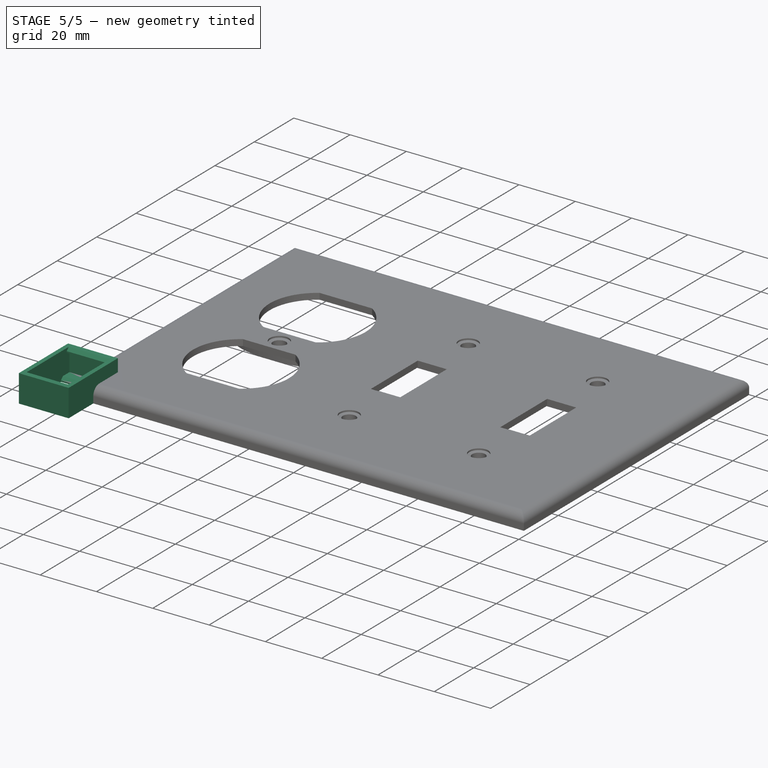
[diagram: stage 5 of 5 — iso view after this stage's code; geometry added in this stage tinted green]
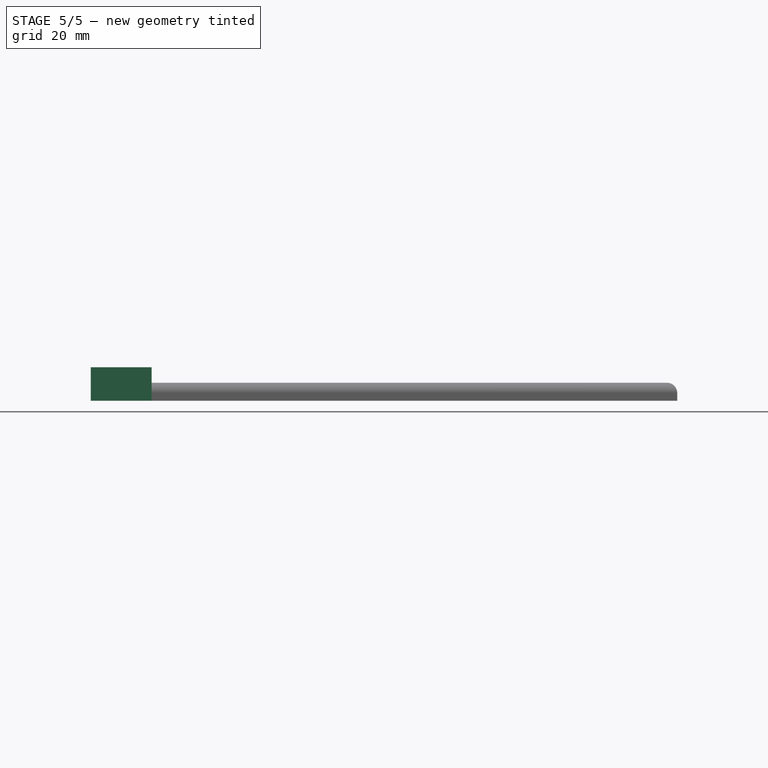
[diagram: stage 5 of 5 — front view after this stage's code; geometry added in this stage tinted green]
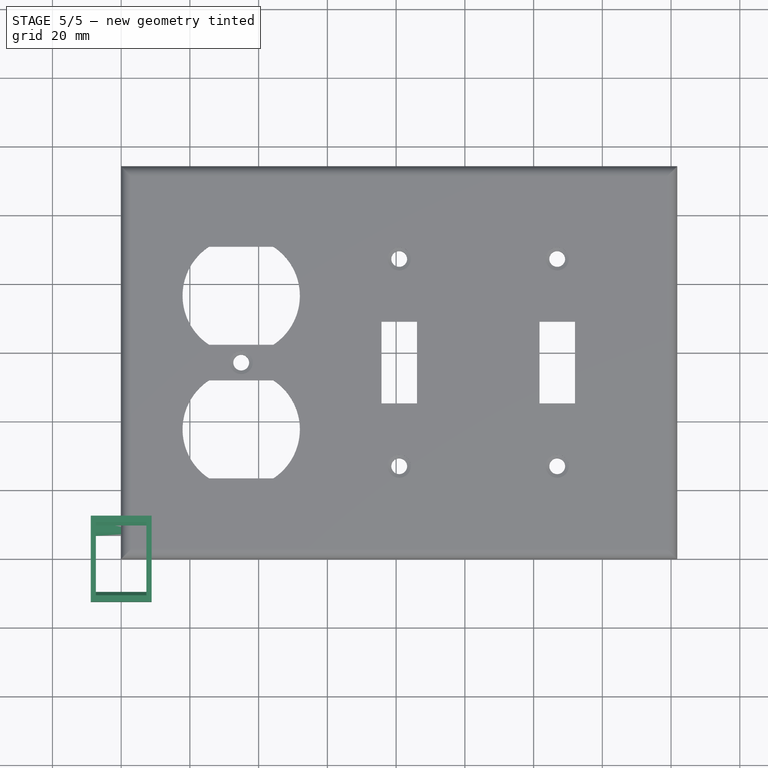
[diagram: stage 5 of 5 — top view after this stage's code; geometry added in this stage tinted green]
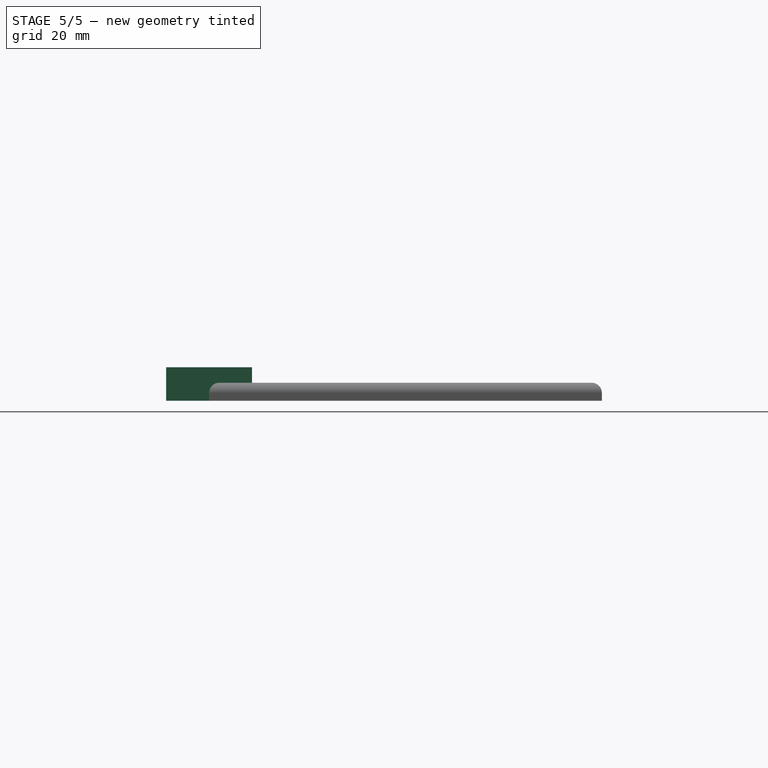
[diagram: stage 5 of 5 — right view after this stage's code; geometry added in this stage tinted green]
FEATURE [Sketcher::SketchObject] Sketch013
  ArcFitTolerance = 1e-06
  AttachmentSupport = -> [XY_Plane001]
  ExternalBSplineMaxDegree = 5
  ExternalBSplineTolerance = 0.0001
  FullyConstrained = true
  InternalTolerance = 1e-06
  InvalidShape = false
  MakeInternals = false
  MapMode = 5
  Support = -> [XY_Plane001]
  TreeRank = 68
  ValidateShape = true
  expr: Constraints[10] = Spreadsheet.Keystone_Coupler_Height
  expr: Constraints[11] = Spreadsheet.Keystone_Coupler_Width
  expr: Constraints[22] = Spreadsheet.Keystone_Coupler_Height - 2 * Spreadsheet.Keystone_Coupler_Thickness
  expr: Constraints[23] = Spreadsheet.Keystone_Coupler_Width - 2 * Spreadsheet.Keystone_Coupler_Thickness
  sketch-geometry (10):
    g0: LineSegment StartX=8.85 StartY=-12.5 StartZ=0 EndX=8.85 EndY=12.5 EndZ=0
    g1: LineSegment StartX=8.85 StartY=12.5 StartZ=0 EndX=-8.85 EndY=12.5 EndZ=0
    g2: LineSegment StartX=-8.85 StartY=12.5 StartZ=0 EndX=-8.85 EndY=-12.5 EndZ=0
    g3: LineSegment StartX=-8.85 StartY=-12.5 StartZ=0 EndX=8.85 EndY=-12.5 EndZ=0
    g4: GeomPoint [constr] X=0 Y=0 Z=0
    g5: LineSegment StartX=7.35 StartY=-11 StartZ=0 EndX=7.35 EndY=11 EndZ=0
    g6: LineSegment StartX=7.35 StartY=11 StartZ=0 EndX=-7.35 EndY=11 EndZ=0
    g7: LineSegment StartX=-7.35 StartY=11 StartZ=0 EndX=-7.35 EndY=-11 EndZ=0
    g8: LineSegment StartX=-7.35 StartY=-11 StartZ=0 EndX=7.35 EndY=-11 EndZ=0
    g9: GeomPoint [constr] X=0 Y=0 Z=0
  constraints (24):
    c: Coincident(g0,g1)
    c: Coincident(g1,g2)
    c: Coincident(g2,g3)
    c: Coincident(g3,g0)
    c: Horizontal(g1)
    c: Horizontal(g3)
    c: Vertical(g0)
    c: Vertical(g2)
    c: Symmetric(g1,g0,g4)
    c: Coincident(g4,g-1)
    c: Distance(g0,g0) = 25
    c: Distance(g2,g0) = 17.7
    c: Coincident(g5,g6)
    c: Coincident(g6,g7)
    c: Coincident(g7,g8)
    c: Coincident(g8,g5)
    c: Horizontal(g6)
    c: Horizontal(g8)
    c: Vertical(g5)
    c: Vertical(g7)
    c: Symmetric(g6,g5,g9)
    c: Coincident(g9,g4)
    c: Distance(g5,g5) = 22
    c: Distance(g7,g5) = 14.7
FEATURE [PartDesign::Pad] Pad001  label="Box"
  AddSubType = 0
  AlongSketchNormal = false
  AutoTaperInnerAngle = true
  CheckUpToFaceLimits = true
  ClaimChildren = false
  Direction = (0,0,1)
  Fit = 0
  FitJoin = 0
  InnerFit = 0
  InnerFitJoin = 0
  InvalidShape = false
  Length = 9.75
  Length2 = 100
  Linearize = true
  NewSolid = false
  Profile = -> Sketch013
  Suppress = false
  TaperInnerAngle = 0
  TaperInnerAngleRev = 0
  TreeRank = 69
  Type = 0
  ValidateShape = true
  _ProfileBasedVersion = 1
  expr: Length = Spreadsheet.Keystone_Coupler_Depth
FEATURE [Sketcher::SketchObject] Sketch014
  ArcFitTolerance = 1e-06
  AttachmentSupport = -> [Pad001]
  ExternalBSplineMaxDegree = 5
  ExternalBSplineTolerance = 0.0001
  FullyConstrained = true
  InternalTolerance = 1e-06
  InvalidShape = false
  MakeInternals = false
  MapMode = 5
  Placement = pos=(-7.35,0,0) rot=(0.57735,0.57735,0.57735;2.0944rad)
  Support = -> [Pad001]
  TreeRank = 70
  ValidateShape = true
  expr: Constraints[10] = Spreadsheet.Keystone_Small_Overhang
  expr: Constraints[11] = Spreadsheet.Keystone_Coupler_Height / 2 - Spreadsheet.Keystone_Small_Overhang - Spreadsheet.Keystone_Coupler_Thickness
  expr: Constraints[22] = Spreadsheet.Keystone_Coupler_Height / 2 - Spreadsheet.Keystone_Small_Overhang - Spreadsheet.Keystone_Coupler_Thickness
  expr: Constraints[23] = Spreadsheet.Keystone_Coupler_Depth - Spreadsheet.Keystone_Coupler_Thickness
  expr: Constraints[34] = Spreadsheet.Keystone_Coupler_Height / 2 - Spreadsheet.Keystone_Small_Overhang - Spreadsheet.Keystone_Coupler_Thickness
  expr: Constraints[35] = Spreadsheet.Keystone_Coupler_Depth - Spreadsheet.Keystone_Coupler_Thickness
  expr: Constraints[46] = Spreadsheet.Keystone_Large_Overhang
  expr: Constraints[47] = Spreadsheet.Keystone_Coupler_Height / 2 - Spreadsheet.Keystone_Large_Overhang - Spreadsheet.Keystone_Coupler_Thickness
  expr: Constraints[9] = Spreadsheet.Keystone_Coupler_Thickness
  sketch-geometry (16):
    g0: LineSegment StartX=-11 StartY=0 StartZ=0 EndX=-9.65 EndY=0 EndZ=0
    g1: LineSegment StartX=-9.65 StartY=0 StartZ=0 EndX=-9.65 EndY=1.5 EndZ=0
    g2: LineSegment StartX=-9.65 StartY=1.5 StartZ=0 EndX=-11 EndY=1.5 EndZ=0
    g3: LineSegment StartX=-11 StartY=1.5 StartZ=0 EndX=-11 EndY=0 EndZ=0
    g4: LineSegment StartX=-11 StartY=9.75 StartZ=0 EndX=-9.65 EndY=9.75 EndZ=0
    g5: LineSegment StartX=-9.65 StartY=9.75 StartZ=0 EndX=-9.65 EndY=8.25 EndZ=0
    g6: LineSegment StartX=-9.65 StartY=8.25 StartZ=0 EndX=-11 EndY=8.25 EndZ=0
    g7: LineSegment StartX=-11 StartY=8.25 StartZ=0 EndX=-11 EndY=9.75 EndZ=0
    g8: LineSegment StartX=11 StartY=9.75 StartZ=0 EndX=9.65 EndY=9.75 EndZ=0
    g9: LineSegment StartX=9.65 StartY=9.75 StartZ=0 EndX=9.65 EndY=8.25 EndZ=0
    g10: LineSegment StartX=9.65 StartY=8.25 StartZ=0 EndX=11 EndY=8.25 EndZ=0
    g11: LineSegment StartX=11 StartY=8.25 StartZ=0 EndX=11 EndY=9.75 EndZ=0
    g12: LineSegment StartX=11 StartY=0 StartZ=0 EndX=6.75 EndY=0 EndZ=0
    g13: LineSegment StartX=6.75 StartY=0 StartZ=0 EndX=6.75 EndY=1.5 EndZ=0
    g14: LineSegment StartX=6.75 StartY=1.5 StartZ=0 EndX=11 EndY=1.5 EndZ=0
    g15: LineSegment StartX=11 StartY=1.5 StartZ=0 EndX=11 EndY=0 EndZ=0
  constraints (48):
    c: Coincident(g0,g1)
    c: Coincident(g1,g2)
    c: Coincident(g2,g3)
    c: Coincident(g3,g0)
    c: Horizontal(g0)
    c: Horizontal(g2)
    c: Vertical(g1)
    c: Vertical(g3)
    c: PointOnObject(g0,g-1)
    c: Distance(g0,g1) = 1.5
    c: Distance(g0) = 1.35
    c: DistanceX(g0,g-1) = 9.65
    c: Coincident(g4,g5)
    c: Coincident(g5,g6)
    c: Coincident(g6,g7)
    c: Coincident(g7,g4)
    c: Horizontal(g4)
    c: Horizontal(g6)
    c: Vertical(g5)
    c: Vertical(g7)
    c: Equal(g2,g6)
    c: Equal(g1,g5)
    c: DistanceX(g5,g-1) = 9.65
    c: DistanceY(g-1,g5) = 8.25
    c: Coincident(g8,g9)
    c: Coincident(g9,g10)
    c: Coincident(g10,g11)
    c: Coincident(g11,g8)
    c: Horizontal(g8)
    c: Horizontal(g10)
    c: Vertical(g9)
    c: Vertical(g11)
    c: Equal(g2,g10)
    c: Equal(g1,g9)
    c: DistanceX(g-1,g9) = 9.65
    c: DistanceY(g-1,g9) = 8.25
    c: Coincident(g12,g13)
    c: Coincident(g13,g14)
    c: Coincident(g14,g15)
    c: Coincident(g15,g12)
    c: Horizontal(g12)
    c: Horizontal(g14)
    c: Vertical(g13)
    c: Vertical(g15)
    c: PointOnObject(g12,g-1)
    c: Equal(g1,g13)
    c: Distance(g14) = 4.25
    c: DistanceX(g-1,g12) = 6.75
FEATURE [PartDesign::Pad] Pad002  label="Overhangs"
  AddSubType = 0
  AlongSketchNormal = false
  AutoTaperInnerAngle = true
  BaseFeature = -> Pad001
  CheckUpToFaceLimits = true
  ClaimChildren = false
  Direction = (1,0,0)
  Fit = 0
  FitJoin = 0
  InnerFit = 0
  InnerFitJoin = 0
  InvalidShape = false
  Length = 14.7
  Length2 = 100
  Linearize = true
  NewSolid = false
  Profile = -> Sketch014
  Suppress = false
  TaperInnerAngle = 0
  TaperInnerAngleRev = 0
  TreeRank = 71
  Type = 0
  ValidateShape = true
  _ProfileBasedVersion = 1
  expr: Length = Spreadsheet.Keystone_Coupler_Width - 2 * Spreadsheet.Keystone_Coupler_Thickness
FEATURE [PartDesign::Chamfer] Chamfer  label="Overhang Chamfer"
  AddSubType = 0
  Angle = 45
  Base = -> Pad002 [Edge51,Edge52,Edge55]
  BaseFeature = -> Pad002
  ChamferType = 0
  FlipDirection = false
  InvalidShape = false
  NewSolid = false
  Size = 1
  Size2 = 1
  SupportTransform = false
  Suppress = false
  TreeRank = 72
  ValidateShape = true
FEATURE [PartDesign::Pocket] Pocket010  label="Cover Crop"
  AddSubType = 1
  AutoTaperInnerAngle = true
  BaseFeature = -> Pad013
  CheckUpToFaceLimits = true
  ClaimChildren = false
  Fit = 0
  FitJoin = 0
  InnerFit = 0
  InnerFitJoin = 0
  InvalidShape = false
  Length = 5
  Length2 = 100
  Linearize = true
  NewSolid = false
  Profile = -> Sketch016
  Suppress = false
  TaperInnerAngle = 0
  TaperInnerAngleRev = 0
  TreeRank = 84
  Type = 1
  ValidateShape = true
  _ProfileBasedVersion = 1
  _Version = 1
FEATURE [PartDesign::Body] Body  label="Outlet Cover"
  AutoGroupSolids = false
  ClaimAllChildren = false
  ExportMode = 0
  FixShape = 2
  Group = -> [Sketch,Pad,Sketch001,Fillet,Pocket002,Pocket,Sketch002,Hole,Pocket001,Sketch003,Sketch012,Pocket009,Sketch015,Pad003,Sketch016,Pad004,Sketch018,Pad005,Pad006,Sketch020,Pad007,Sketch021,Pad008,Pad009,Pad010,Pad011,Pad012,Pad013,Pocket010,Sketch017,Sketch019,Sketch022,Sketch023,Sketch024,Sketch025,Sketch026]
  InvalidShape = false
  Origin = -> Origin
  Tip = -> Pocket010
  TreeRank = 79
  ValidateShape = true
  _ExportChildren = -> [Pad,Fillet,Pocket002,Pocket,Hole,Pocket001,Pocket009,Pad003,Pad004,Pad005,Pad006,Pad007,Pad008,Pad009,Pad010,Pad011,Pad012,Pad013,Pocket010]
  _GroupVersion = 1
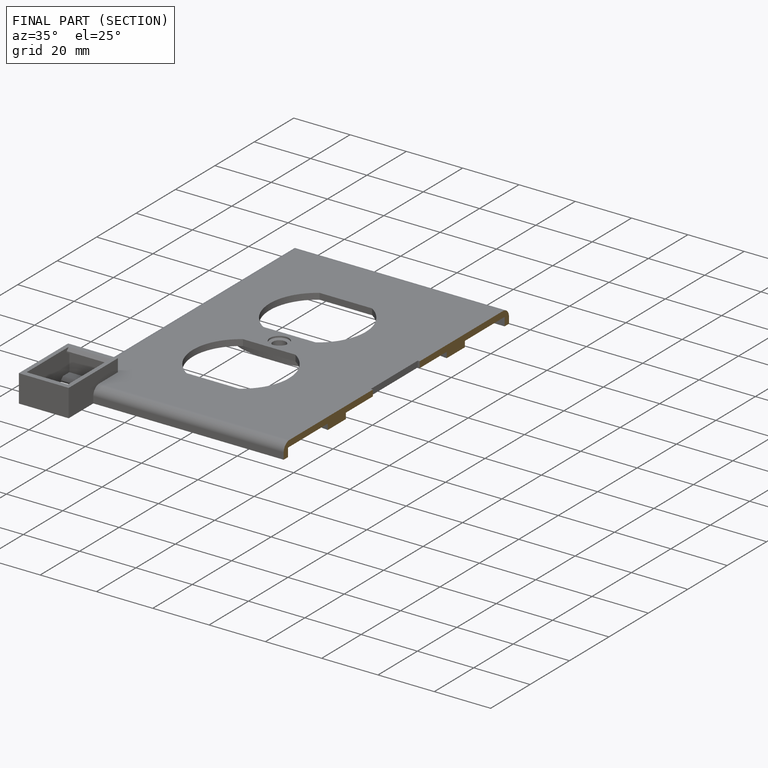
[diagram: finished part — half-section view (interior)]
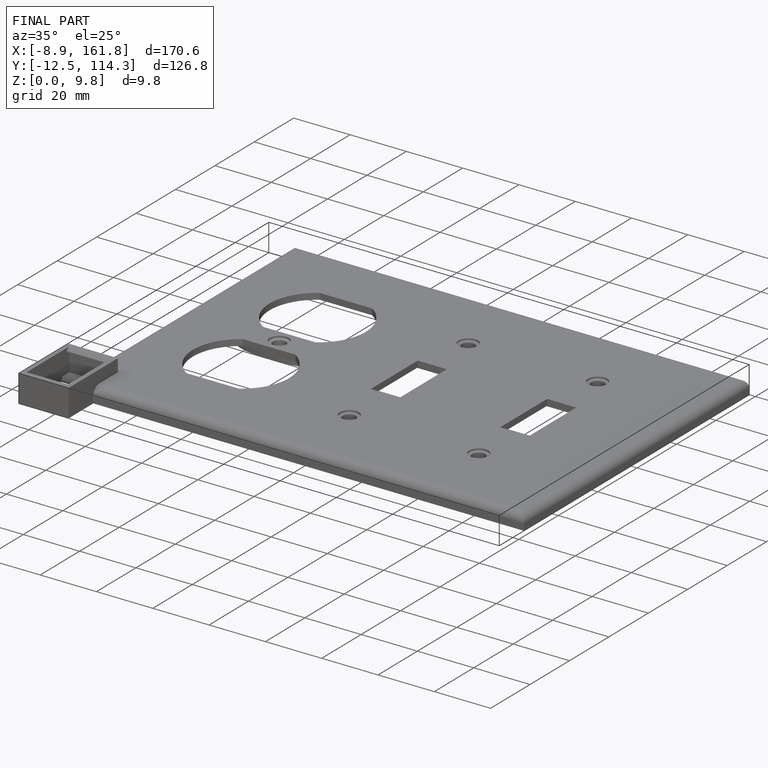
[diagram: finished part — iso view with bounding-box wireframe]
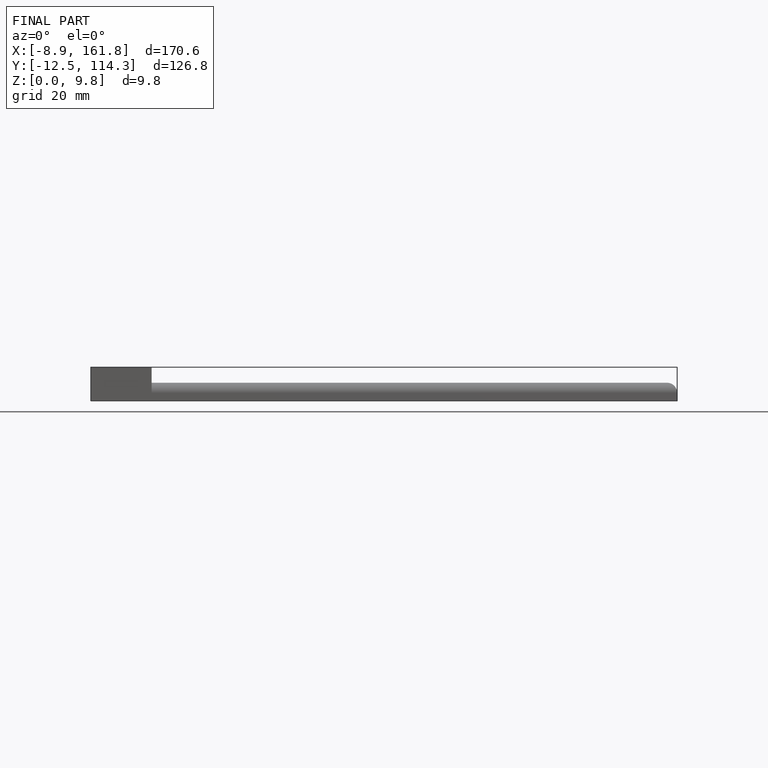
[diagram: finished part — front view with bounding-box wireframe]
